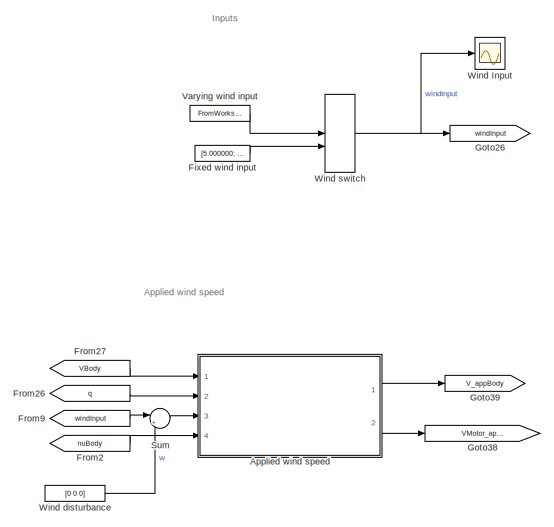
[diagram: root canvas - part 1/10, top center region]
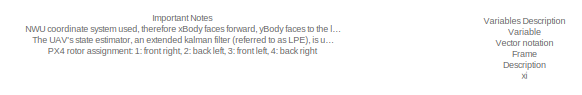
[diagram: root canvas - part 2/10, top right region]
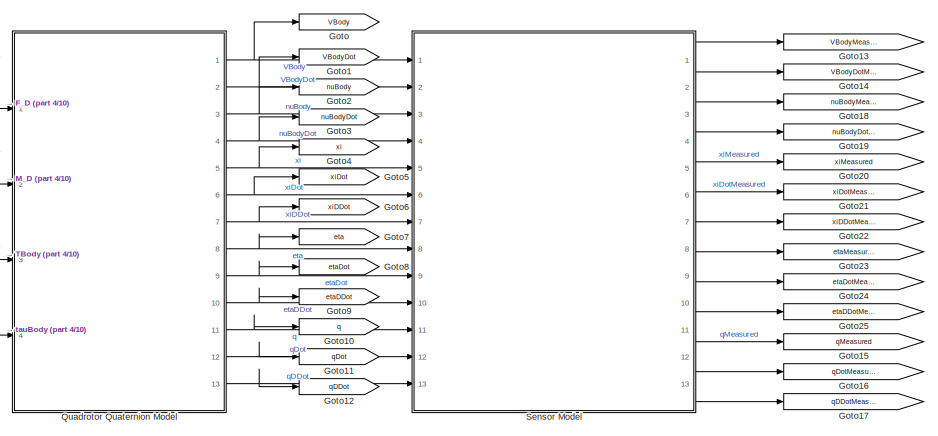
[diagram: root canvas - part 3/10, top right region]
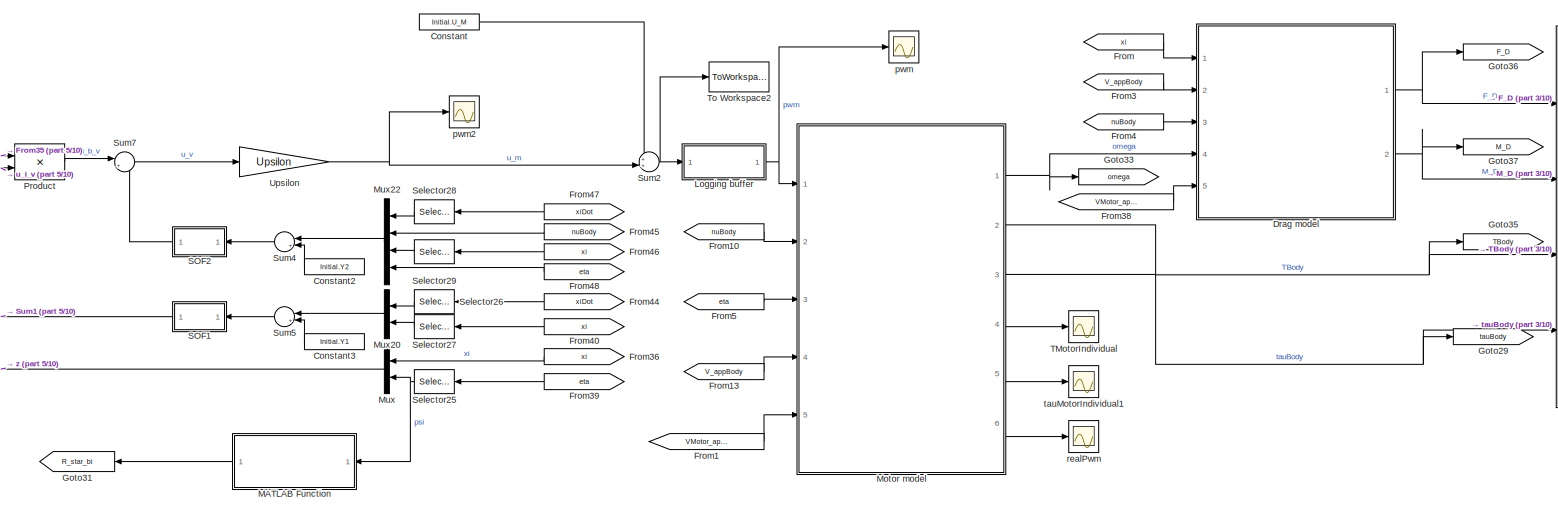
[diagram: root canvas - part 4/10, top center region]
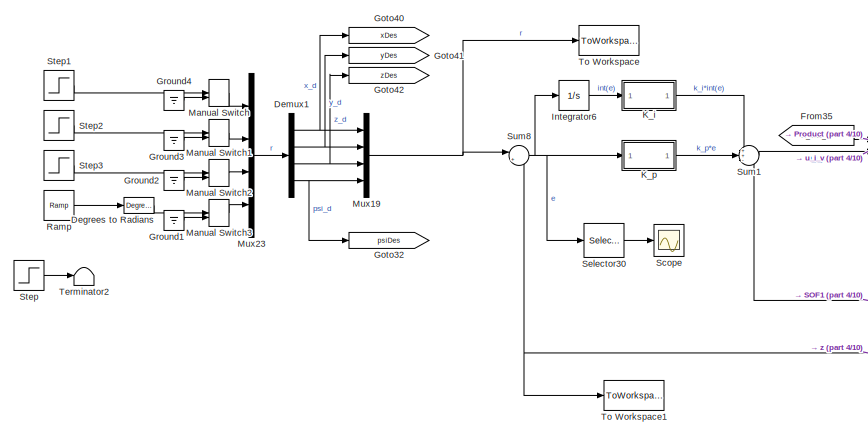
[diagram: root canvas - part 5/10, top center region]
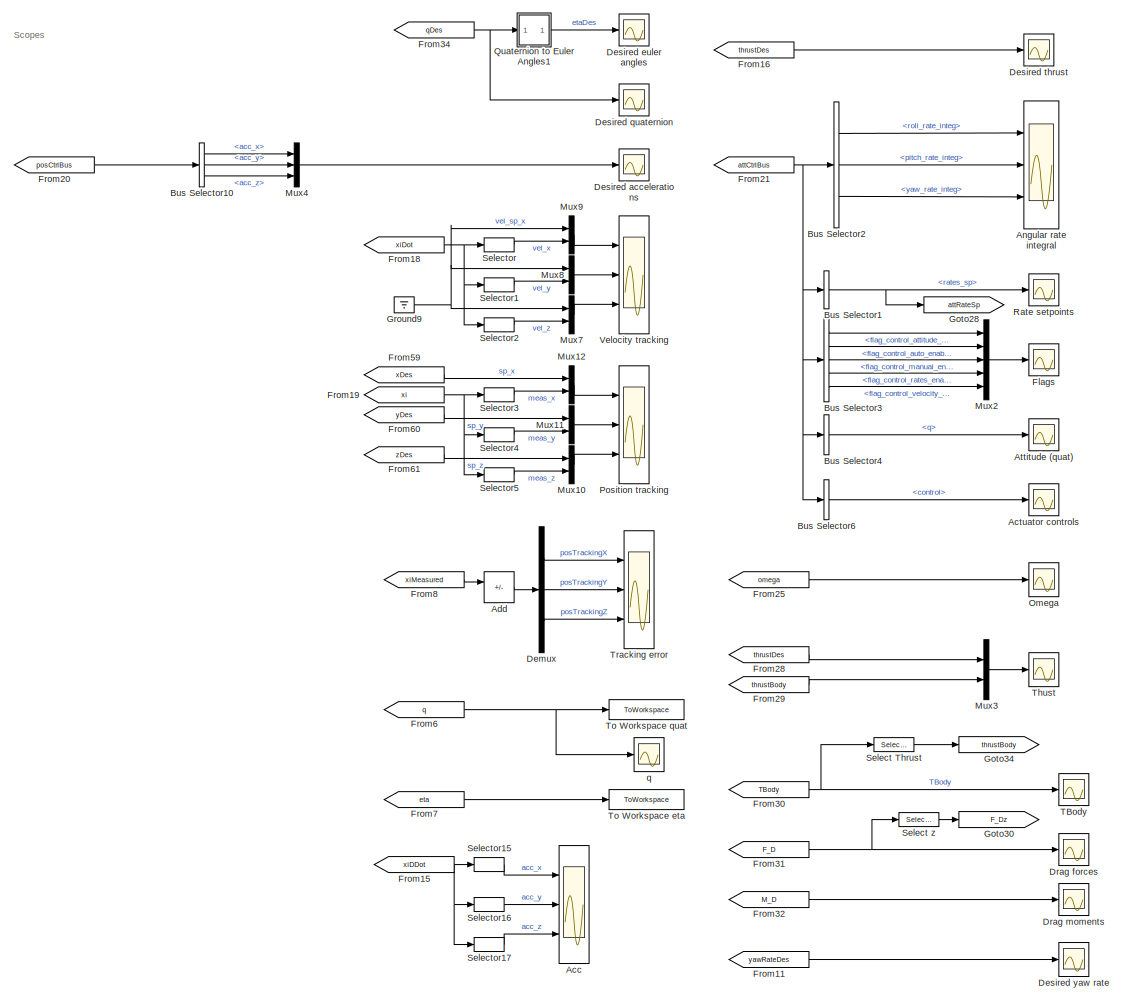
[diagram: root canvas - part 6/10, central region]
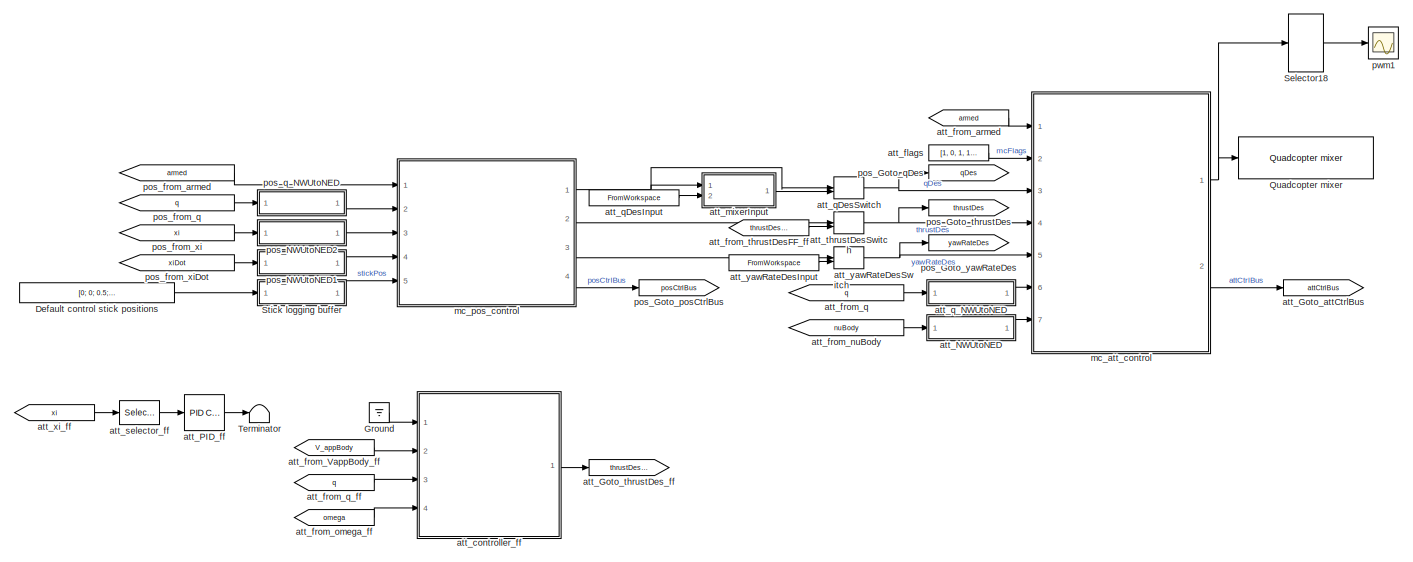
[diagram: root canvas - part 7/10, middle left region]
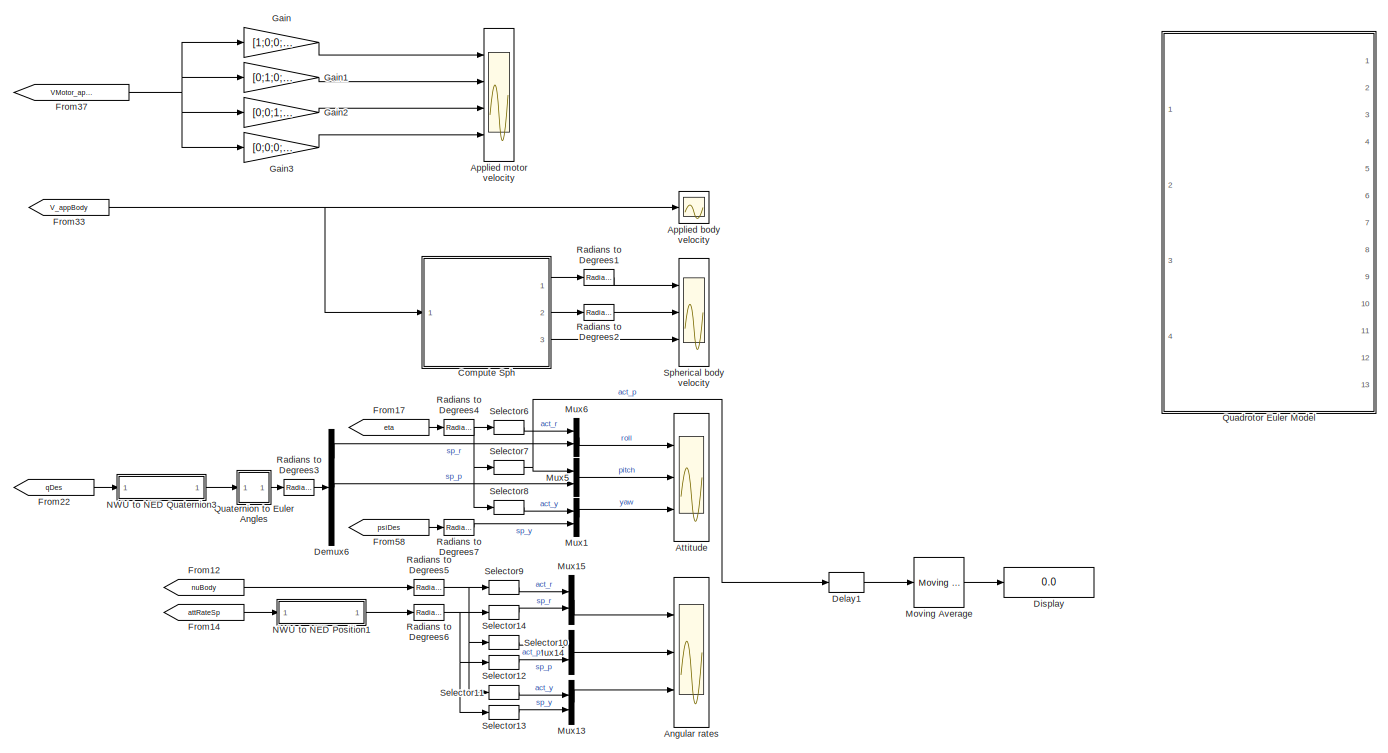
[diagram: root canvas - part 8/10, middle right region]
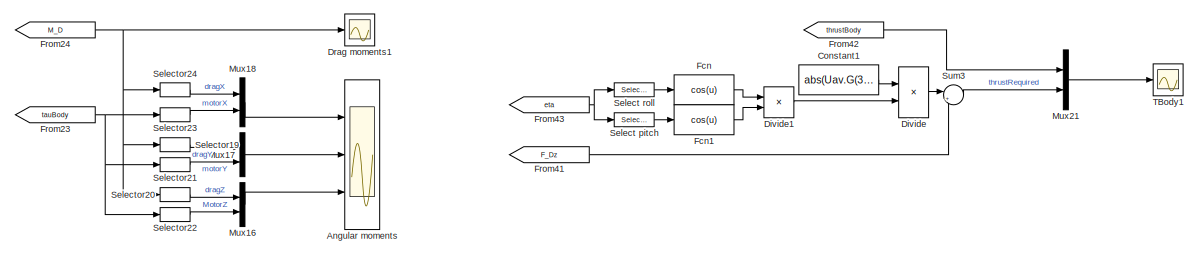
[diagram: root canvas - part 9/10, middle right region]
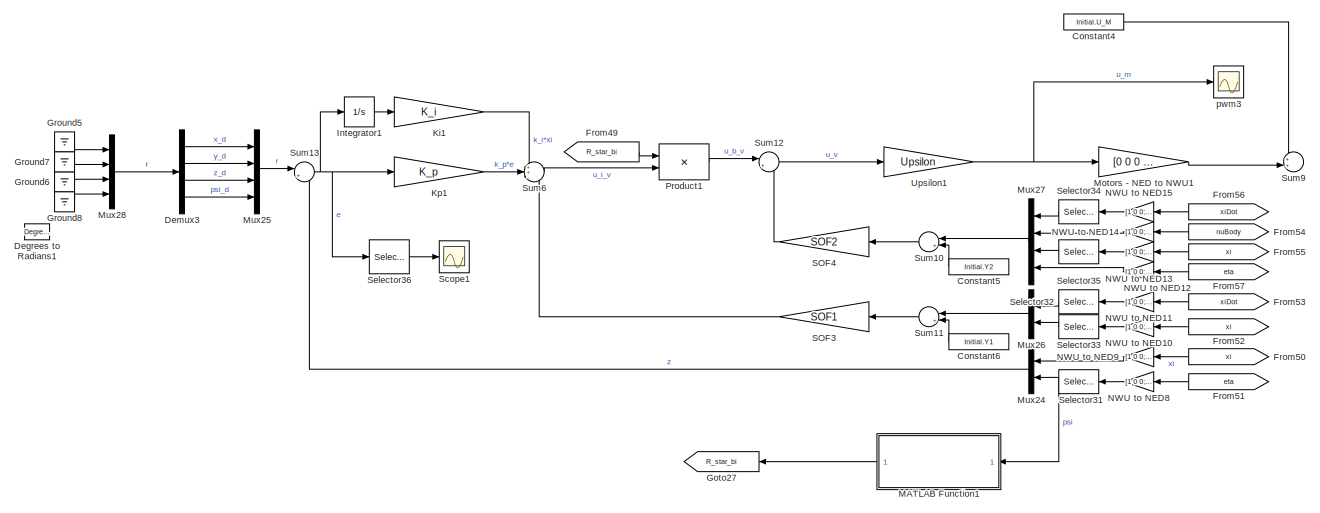
[diagram: root canvas - part 10/10, bottom right region]
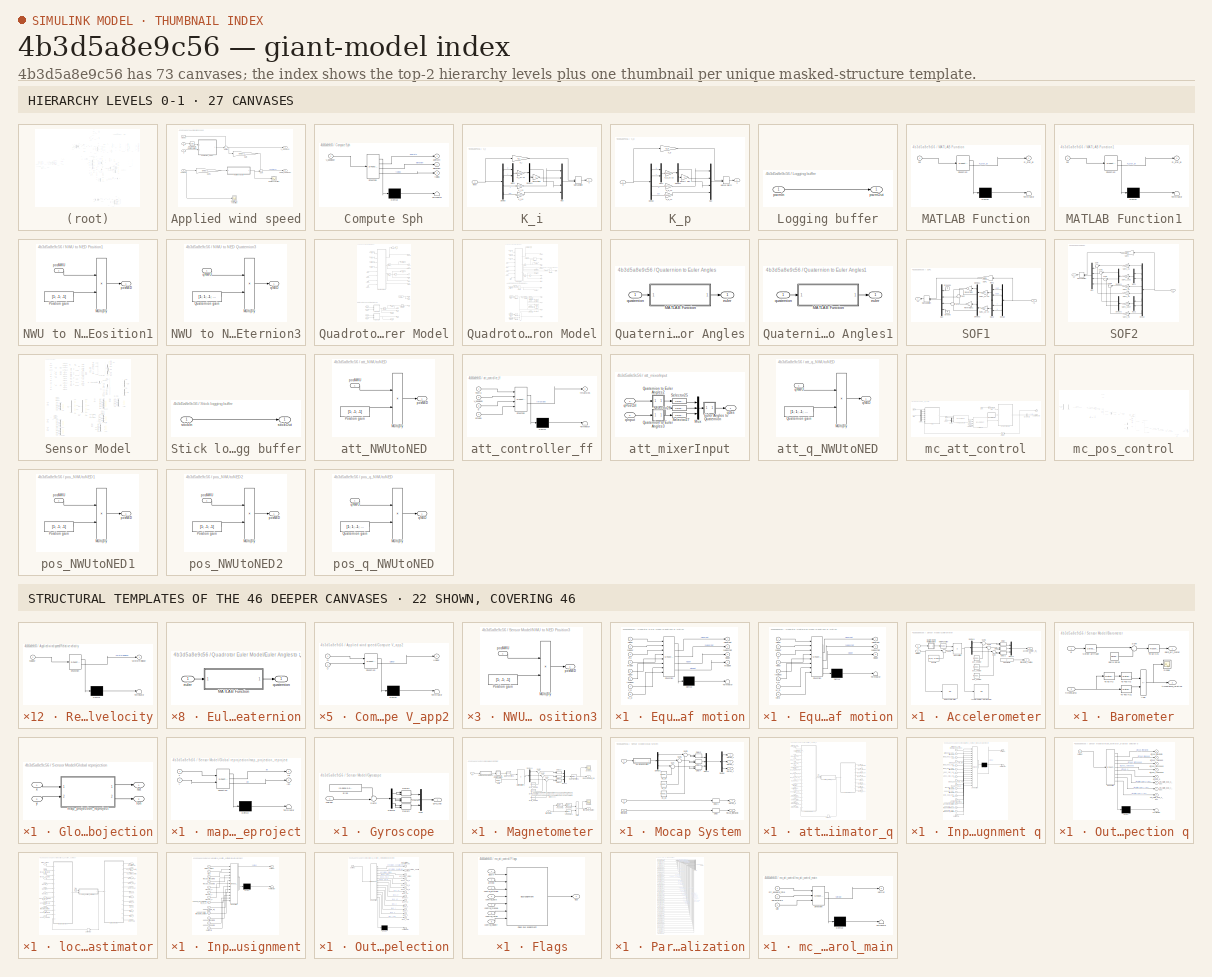
[diagram: thumbnail index - top-2 hierarchy levels (27 canvases) + 22 structural-template representatives of the remaining 46 canvases]
MODEL slx_4b3d5a8e9c56
KIND model
CONFIG AbsTol = auto
CONFIG EnableMultiTasking = on
CONFIG FixedStep = auto
CONFIG MaxStep = Simulation.TS_MAX
CONFIG MinStep = auto
CONFIG PreLoadFcn = % InitializeParameters;
CONFIG RelTol = 1e-3
CONFIG SampleTimeConstraint = Unconstrained
CONFIG SolverName = VariableStepAuto
CONFIG StartTime = 0.0
CONFIG StopTime = Simulation.T_END
BLOCK [Scope] Acc
  Floating = off
  NumInputPorts = 3
  Ports = [3]
  ScopeSpecificationString = Simulink.scopes.TimeScopeBlockCfg('CurrentConfiguration', extmgr.ConfigurationSet(extmgr.Configuration('Core','General UI',true),extmgr.Configuration('Core','Source UI',true),extmgr.Configuration('Sources','WiredSimulink',true,'DataLoggingVariableName','ScopeData1'),extmgr.Configuration('Visuals','Time Domain',true,'SerializedDisplays',{struct('MinYLimReal','-0.0000000000000018','MaxYLimReal','0.0...<+2816ch>
BLOCK [Scope] Actuator controls
  Commented = on
  Floating = off
  NumInputPorts = 1
  Ports = [1]
  ScopeSpecificationString = Simulink.scopes.TimeScopeBlockCfg('CurrentConfiguration', extmgr.ConfigurationSet(extmgr.Configuration('Core','General UI',true),extmgr.Configuration('Core','Source UI',true),extmgr.Configuration('Sources','WiredSimulink',true,'DataLoggingVariableName','ScopeData6'),extmgr.Configuration('Visuals','Time Domain',true,'SerializedDisplays',{struct('MinYLimReal','-0.13253','MaxYLimReal','0.63562','YLab...<+2024ch>
BLOCK [Sum] Add
  Commented = on
  IconShape = rectangular
  Inputs = +-
  Ports = [2, 1]
BLOCK [Scope] Angular moments
  Floating = off
  NumInputPorts = 3
  Ports = [3]
  ScopeSpecificationString = Simulink.scopes.TimeScopeBlockCfg('CurrentConfiguration', extmgr.ConfigurationSet(extmgr.Configuration('Core','General UI',true),extmgr.Configuration('Core','Source UI',true),extmgr.Configuration('Sources','WiredSimulink',true,'DataLoggingVariableName','ScopeData2'),extmgr.Configuration('Visuals','Time Domain',true,'SerializedDisplays',{struct('MinYLimReal','-0.0000007','MaxYLimReal','0.0000011','...<+2847ch>
BLOCK [Scope] Angular rate integral
  Commented = on
  Floating = off
  NumInputPorts = 3
  Ports = [3]
  ScopeSpecificationString = Simulink.scopes.TimeScopeBlockCfg('CurrentConfiguration', extmgr.ConfigurationSet(extmgr.Configuration('Core','General UI',true),extmgr.Configuration('Core','Source UI',true),extmgr.Configuration('Sources','WiredSimulink',true,'DataLoggingVariableName','ScopeData1'),extmgr.Configuration('Visuals','Time Domain',true,'SerializedDisplays',{struct('MinYLimReal','-0.00715','MaxYLimReal','0.00085','YLab...<+2834ch>
BLOCK [Scope] Angular rates
  Floating = off
  NumInputPorts = 3
  Ports = [3]
  ScopeSpecificationString = Simulink.scopes.TimeScopeBlockCfg('CurrentConfiguration', extmgr.ConfigurationSet(extmgr.Configuration('Core','General UI',true),extmgr.Configuration('Core','Source UI',true),extmgr.Configuration('Sources','WiredSimulink',true,'DataLoggingVariableName','ScopeData1'),extmgr.Configuration('Visuals','Time Domain',true,'SerializedDisplays',{struct('MinYLimReal','-1.8499','MaxYLimReal','1.74919','YLabe...<+2824ch>
BLOCK [Scope] Applied body velocity
  Floating = off
  NumInputPorts = 1
  Ports = [1]
  ScopeSpecificationString = Simulink.scopes.TimeScopeBlockCfg('CurrentConfiguration', extmgr.ConfigurationSet(extmgr.Configuration('Core','General UI',true),extmgr.Configuration('Core','Source UI',true),extmgr.Configuration('Sources','WiredSimulink',true,'DataLoggingVariableName','ScopeData5'),extmgr.Configuration('Visuals','Time Domain',true,'SerializedDisplays',{struct('MinYLimReal','-8.3551','MaxYLimReal','9.40235','YLabe...<+1561ch>
BLOCK [Scope] Applied motor velocity
  Commented = on
  Floating = off
  NumInputPorts = 4
  Ports = [4]
  ScopeSpecificationString = Simulink.scopes.TimeScopeBlockCfg('CurrentConfiguration', extmgr.ConfigurationSet(extmgr.Configuration('Core','General UI',true),extmgr.Configuration('Core','Source UI',true),extmgr.Configuration('Sources','WiredSimulink',true,'DataLoggingVariableName','ScopeData6'),extmgr.Configuration('Visuals','Time Domain',true,'SerializedDisplays',{struct('MinYLimReal','-6.29066','MaxYLimReal','3.22329','YLab...<+3531ch>
BLOCK [SubSystem] Applied wind speed
  Ports = [4, 2]
  RequestExecContextInheritance = off
BLOCK [SubSystem] Applied wind speed/Compute V_app2
  ErrorFcn = Stateflow.Translate.translate
  PermitHierarchicalResolution = ExplicitOnly
  Ports = [2, 1]
  RequestExecContextInheritance = off
  SFBlockType = MATLAB Function
  TreatAsAtomicUnit = on
BLOCK [Demux] Applied wind speed/Compute V_app2/ Demux 
  Outputs = 1
  Ports = [1, 1]
BLOCK [S-Function] Applied wind speed/Compute V_app2/ SFunction 
  EnableBusSupport = on
  FunctionName = sf_sfun
  PortCounts = [2 2]
  Ports = [2, 2]
  SFcnIsStateOwnerBlock = off
  SFunctionDeploymentMode = off
  Tag = Stateflow S-Function 5
BLOCK [Terminator] Applied wind speed/Compute V_app2/ Terminator 
BLOCK [Inport] Applied wind speed/Compute V_app2/Q
BLOCK [Inport] Applied wind speed/Compute V_app2/U
  Port = 2
BLOCK [Outport] Applied wind speed/Compute V_app2/UBody
  VectorParamsAs1DForOutWhenUnconnected = off
BLOCK [Gain] Applied wind speed/Gain
  Gain = ones(1,Uav.N_ROTORS)
  Multiplication = Matrix(u*K)
BLOCK [Gain] Applied wind speed/Gain1
  Gain = ones(1,Uav.N_ROTORS)
  Multiplication = Matrix(u*K)
BLOCK [Reference] Applied wind speed/Quaternion to Rotation Matrix1  REF=QuaternionLibrary/Quaternion
to Rotation Matrix
  Ports = [1, 1]
  SourceBlock = QuaternionLibrary/Quaternion\nto Rotation Matrix
BLOCK [Scope] Applied wind speed/Relative velocities
  Floating = off
  NumInputPorts = 1
  Ports = [1]
  ScopeSpecificationString = Simulink.scopes.TimeScopeBlockCfg('CurrentConfiguration', extmgr.ConfigurationSet(extmgr.Configuration('Core','General UI',true),extmgr.Configuration('Core','Source UI',true),extmgr.Configuration('Sources','WiredSimulink',true,'DataLoggingVariableName','ScopeData7'),extmgr.Configuration('Visuals','Time Domain',true,'SerializedDisplays',{struct('MinYLimReal','-0.14774','MaxYLimReal','0.13459','YLab...<+1695ch>
BLOCK [SubSystem] Applied wind speed/Relative velocity
  ErrorFcn = Stateflow.Translate.translate
  PermitHierarchicalResolution = ExplicitOnly
  Ports = [1, 1]
  RequestExecContextInheritance = off
  SFBlockType = MATLAB Function
  TreatAsAtomicUnit = on
BLOCK [Demux] Applied wind speed/Relative velocity/ Demux 
  Outputs = 1
  Ports = [1, 1]
BLOCK [S-Function] Applied wind speed/Relative velocity/ SFunction 
  EnableBusSupport = on
  FunctionName = sf_sfun
  Parameters = Uav
  PortCounts = [1 2]
  Ports = [1, 2]
  SFcnIsStateOwnerBlock = off
  SFunctionDeploymentMode = off
  Tag = Stateflow S-Function 4
BLOCK [Terminator] Applied wind speed/Relative velocity/ Terminator 
BLOCK [Outport] Applied wind speed/Relative velocity/VMotorRelBody
  VectorParamsAs1DForOutWhenUnconnected = off
BLOCK [Inport] Applied wind speed/Relative velocity/nuBody
BLOCK [Scope] Applied wind speed/Rotational velocities
  Floating = off
  NumInputPorts = 1
  Ports = [1]
  ScopeSpecificationString = Simulink.scopes.TimeScopeBlockCfg('CurrentConfiguration', extmgr.ConfigurationSet(extmgr.Configuration('Core','General UI',true),extmgr.Configuration('Core','Source UI',true),extmgr.Configuration('Sources','WiredSimulink',true,'DataLoggingVariableName','ScopeData8'),extmgr.Configuration('Visuals','Time Domain',true,'SerializedDisplays',{struct('MinYLimReal','-0.88414','MaxYLimReal','0.81415','YLab...<+1467ch>
BLOCK [Sum] Applied wind speed/Sum
  Inputs = ++|
  Ports = [2, 1]
BLOCK [Sum] Applied wind speed/Sum1
  Inputs = ++|
  Ports = [2, 1]
BLOCK [Inport] Applied wind speed/U
  Port = 3
  Unit = m/s
BLOCK [Inport] Applied wind speed/VBody
  Unit = m/s
BLOCK [Outport] Applied wind speed/VMotor_appBody
  Port = 2
  PortDimensions = [3,Uav.N_ROTORS]
  Unit = m/s
  VectorParamsAs1DForOutWhenUnconnected = off
BLOCK [Outport] Applied wind speed/V_appBody
  Unit = m/s
  VectorParamsAs1DForOutWhenUnconnected = off
BLOCK [Inport] Applied wind speed/nuBody
  Port = 4
  Unit = rad/s
BLOCK [Inport] Applied wind speed/q
  Port = 2
BLOCK [Scope] Attitude
  Floating = off
  NumInputPorts = 3
  Ports = [3]
  ScopeSpecificationString = Simulink.scopes.TimeScopeBlockCfg('CurrentConfiguration', extmgr.ConfigurationSet(extmgr.Configuration('Core','General UI',true),extmgr.Configuration('Core','Source UI',true),extmgr.Configuration('Sources','WiredSimulink',true,'DataLoggingVariableName','ScopeData1'),extmgr.Configuration('Visuals','Time Domain',true,'SerializedDisplays',{struct('MinYLimReal','-14.80059','MaxYLimReal','7.68885','YLa...<+2912ch>
BLOCK [Scope] Attitude (quat)
  Commented = on
  Floating = off
  NumInputPorts = 1
  Ports = [1]
  ScopeSpecificationString = Simulink.scopes.TimeScopeBlockCfg('CurrentConfiguration', extmgr.ConfigurationSet(extmgr.Configuration('Core','General UI',true),extmgr.Configuration('Core','Source UI',true),extmgr.Configuration('Sources','WiredSimulink',true,'DataLoggingVariableName','ScopeData4'),extmgr.Configuration('Visuals','Time Domain',true,'SerializedDisplays',{struct('MinYLimReal','-0.20708','MaxYLimReal','1.13412','YLab...<+1940ch>
BLOCK [BusSelector] Bus Selector1
  Commented = on
  OutputSignals = rates_sp
  Ports = [1, 1]
BLOCK [BusSelector] Bus Selector10
  Commented = on
  OutputSignals = mpc_local_pos_sp.acc_x,mpc_local_pos_sp.acc_y,mpc_local_pos_sp.acc_z
  Ports = [1, 3]
BLOCK [BusSelector] Bus Selector2
  Commented = on
  OutputSignals = controller_status.roll_rate_integ,controller_status.pitch_rate_integ,controller_status.yaw_rate_integ
  Ports = [1, 3]
BLOCK [BusSelector] Bus Selector3
  Commented = on
  OutputSignals = v_control_mode.flag_control_attitude_enabled,v_control_mode.flag_control_auto_enabled,v_control_mode.flag_control_manual_enabled,v_control_mode.flag_control_rates_enabled,v_control_mode.flag_control_velocity_enabled
  Ports = [1, 5]
BLOCK [BusSelector] Bus Selector4
  Commented = on
  OutputSignals = ctrl_state.q
  Ports = [1, 1]
BLOCK [BusSelector] Bus Selector6
  Commented = on
  OutputSignals = actuators.control
  Ports = [1, 1]
BLOCK [SubSystem] Compute Sph
  ErrorFcn = Stateflow.Translate.translate
  PermitHierarchicalResolution = ExplicitOnly
  Ports = [1, 3]
  RequestExecContextInheritance = off
  SFBlockType = MATLAB Function
  TreatAsAtomicUnit = on
BLOCK [Demux] Compute Sph/ Demux 
  Outputs = 1
  Ports = [1, 1]
BLOCK [S-Function] Compute Sph/ SFunction 
  EnableBusSupport = on
  FunctionName = sf_sfun
  PortCounts = [1 4]
  Ports = [1, 4]
  SFcnIsStateOwnerBlock = off
  SFunctionDeploymentMode = off
  Tag = Stateflow S-Function 2
BLOCK [Terminator] Compute Sph/ Terminator 
BLOCK [Inport] Compute Sph/V_appBody
BLOCK [Outport] Compute Sph/azimuth
  VectorParamsAs1DForOutWhenUnconnected = off
BLOCK [Outport] Compute Sph/elevation
  Port = 2
  VectorParamsAs1DForOutWhenUnconnected = off
BLOCK [Outport] Compute Sph/radius
  Port = 3
  VectorParamsAs1DForOutWhenUnconnected = off
BLOCK [Constant] Constant
  Value = Initial.U_M
BLOCK [Constant] Constant1
  Value = abs(Uav.G(3))
BLOCK [Constant] Constant2
  Value = Initial.Y2
BLOCK [Constant] Constant3
  Value = Initial.Y1
BLOCK [Constant] Constant4
  Commented = on
  Value = Initial.U_M
BLOCK [Constant] Constant5
  Commented = on
  Value = Initial.Y2
BLOCK [Constant] Constant6
  Commented = on
  Value = Initial.Y1
BLOCK [Constant] Default control stick positions
  Commented = on
  Value = [0; 0; 0.5; 0]
BLOCK [Reference] Degrees to Radians  REF=simulink_extras/Transformations/Degrees to
Radians
  Ports = [1, 1]
  SourceBlock = simulink_extras/Transformations/Degrees to\nRadians
  SourceProductBaseCode = SL
  SourceType = DegreesToRadians
BLOCK [Reference] Degrees to Radians1  REF=simulink_extras/Transformations/Degrees to
Radians
  Commented = on
  Ports = [1, 1]
  SourceBlock = simulink_extras/Transformations/Degrees to\nRadians
  SourceProductBaseCode = SL
  SourceType = DegreesToRadians
BLOCK [Delay] Delay1
  Commented = on
  DelayLength = 1
  InputPortMap = u0
  Ports = [1, 1]
  SampleTime = 1/10
BLOCK [Demux] Demux
  Commented = on
  Outputs = 3
  Ports = [1, 3]
BLOCK [Demux] Demux1
  Ports = [1, 4]
BLOCK [Demux] Demux3
  Commented = on
  Ports = [1, 4]
BLOCK [Demux] Demux6
  Commented = on
  Outputs = 3
  Ports = [1, 3]
BLOCK [Scope] Desired accelerations
  Floating = off
  NumInputPorts = 1
  Ports = [1]
  ScopeSpecificationString = Simulink.scopes.TimeScopeBlockCfg('CurrentConfiguration', extmgr.ConfigurationSet(extmgr.Configuration('Core','General UI',true),extmgr.Configuration('Core','Source UI',true),extmgr.Configuration('Sources','WiredSimulink',true,'DataLoggingVariableName','ScopeData1'),extmgr.Configuration('Visuals','Time Domain',true,'SerializedDisplays',{struct('MinYLimReal','-10.69713','MaxYLimReal','8.01479','YLa...<+1941ch>
BLOCK [Scope] Desired euler angles
  Commented = on
  Floating = off
  NumInputPorts = 1
  Ports = [1]
  ScopeSpecificationString = Simulink.scopes.TimeScopeBlockCfg('CurrentConfiguration', extmgr.ConfigurationSet(extmgr.Configuration('Core','General UI',true),extmgr.Configuration('Core','Source UI',true),extmgr.Configuration('Sources','WiredSimulink',true,'DataLoggingVariableName','ScopeData1','DataLoggingLimitDataPoints',true,'DataLoggingSaveFormat','Array','DataLoggingDecimation','1','DataLoggingDecimateData',true),extmgr.C...<+1539ch>
BLOCK [Scope] Desired quaternion
  Commented = on
  Floating = off
  NumInputPorts = 1
  Ports = [1]
  ScopeSpecificationString = Simulink.scopes.TimeScopeBlockCfg('CurrentConfiguration', extmgr.ConfigurationSet(extmgr.Configuration('Core','General UI',true),extmgr.Configuration('Core','Source UI',true),extmgr.Configuration('Sources','WiredSimulink',true,'DataLoggingVariableName','ScopeData2','DataLoggingLimitDataPoints',true,'DataLoggingSaveFormat','Array','DataLoggingDecimation','1','DataLoggingDecimateData',true),extmgr.C...<+1550ch>
BLOCK [Scope] Desired thrust
  Commented = on
  Floating = off
  NumInputPorts = 1
  Ports = [1]
  ScopeSpecificationString = Simulink.scopes.TimeScopeBlockCfg('CurrentConfiguration', extmgr.ConfigurationSet(extmgr.Configuration('Core','General UI',true),extmgr.Configuration('Core','Source UI',true),extmgr.Configuration('Sources','WiredSimulink',true,'DataLoggingVariableName','ScopeData3'),extmgr.Configuration('Visuals','Time Domain',true,'SerializedDisplays',{struct('MinYLimReal','0.54302','MaxYLimReal','0.6893','YLabel...<+1438ch>
BLOCK [Scope] Desired yaw rate
  Floating = off
  NumInputPorts = 1
  Ports = [1]
  ScopeSpecificationString = Simulink.scopes.TimeScopeBlockCfg('CurrentConfiguration', extmgr.ConfigurationSet(extmgr.Configuration('Core','General UI',true),extmgr.Configuration('Core','Source UI',true),extmgr.Configuration('Sources','WiredSimulink',true,'DataLoggingVariableName','ScopeData1'),extmgr.Configuration('Visuals','Time Domain',true,'SerializedDisplays',{struct('MinYLimReal','-1.00000','MaxYLimReal','1.00000','YLab...<+1442ch>
BLOCK [Display] Display
  Commented = on
  Decimation = 1
  Ports = [1]
BLOCK [Product] Divide
  Inputs = */
  Ports = [2, 1]
BLOCK [Product] Divide1
  Inputs = **
  Ports = [2, 1]
BLOCK [Scope] Drag forces
  Floating = off
  NumInputPorts = 1
  Ports = [1]
  ScopeSpecificationString = Simulink.scopes.TimeScopeBlockCfg('CurrentConfiguration', extmgr.ConfigurationSet(extmgr.Configuration('Core','General UI',true),extmgr.Configuration('Core','Source UI',true),extmgr.Configuration('Sources','WiredSimulink',true,'DataLoggingVariableName','ScopeData2'),extmgr.Configuration('Visuals','Time Domain',true,'SerializedDisplays',{struct('MinYLimReal','-0.08396','MaxYLimReal','0.01856','YLab...<+1466ch>
BLOCK [ModelReference] Drag model
  ModelNameDialog = DragModelAIAAv3
  ModelReferenceVersion = 5.2
  Ports = [5, 2]
BLOCK [Scope] Drag moments
  Floating = off
  NumInputPorts = 1
  Ports = [1]
  ScopeSpecificationString = Simulink.scopes.TimeScopeBlockCfg('CurrentConfiguration', extmgr.ConfigurationSet(extmgr.Configuration('Core','General UI',true),extmgr.Configuration('Core','Source UI',true),extmgr.Configuration('Sources','WiredSimulink',true,'DataLoggingVariableName','ScopeData4'),extmgr.Configuration('Visuals','Time Domain',true,'SerializedDisplays',{struct('MinYLimReal','-0.01429','MaxYLimReal','0.01409','YLab...<+1458ch>
BLOCK [Scope] Drag moments1
  Floating = off
  NumInputPorts = 1
  Ports = [1]
  ScopeSpecificationString = Simulink.scopes.TimeScopeBlockCfg('CurrentConfiguration', extmgr.ConfigurationSet(extmgr.Configuration('Core','General UI',true),extmgr.Configuration('Core','Source UI',true),extmgr.Configuration('Sources','WiredSimulink',true,'DataLoggingVariableName','ScopeData1'),extmgr.Configuration('Visuals','Time Domain',true,'SerializedDisplays',{struct('MinYLimReal','-0.06563','MaxYLimReal','0.20895','YLab...<+1459ch>
BLOCK [Fcn] Fcn
  Expr = cos(u)
BLOCK [Fcn] Fcn1
  Expr = cos(u)
BLOCK [Constant] Fixed wind input
  Value = [5.000000; 0.000000; 0]
BLOCK [Scope] Flags
  Commented = on
  Floating = off
  NumInputPorts = 1
  Ports = [1]
  ScopeSpecificationString = Simulink.scopes.TimeScopeBlockCfg('CurrentConfiguration', extmgr.ConfigurationSet(extmgr.Configuration('Core','General UI',true),extmgr.Configuration('Core','Source UI',true),extmgr.Configuration('Sources','WiredSimulink',true,'DataLoggingVariableName','ScopeData3'),extmgr.Configuration('Visuals','Time Domain',true,'SerializedDisplays',{struct('MinYLimReal','-0.125','MaxYLimReal','1.125','YLabelRe...<+2059ch>
BLOCK [From] From
  GotoTag = xi
BLOCK [From] From1
  GotoTag = VMotor_appBody
BLOCK [From] From10
  GotoTag = nuBody
BLOCK [From] From11
  GotoTag = yawRateDes
BLOCK [From] From12
  GotoTag = nuBody
BLOCK [From] From13
  GotoTag = V_appBody
BLOCK [From] From14
  Commented = on
  GotoTag = attRateSp
BLOCK [From] From15
  GotoTag = xiDDot
BLOCK [From] From16
  Commented = on
  GotoTag = thrustDes
BLOCK [From] From17
  GotoTag = eta
BLOCK [From] From18
  GotoTag = xiDot
BLOCK [From] From19
  GotoTag = xi
BLOCK [From] From2
  GotoTag = nuBody
BLOCK [From] From20
  Commented = on
  GotoTag = posCtrlBus
BLOCK [From] From21
  Commented = on
  GotoTag = attCtrlBus
BLOCK [From] From22
  Commented = on
  GotoTag = qDes
BLOCK [From] From23
  GotoTag = tauBody
BLOCK [From] From24
  GotoTag = M_D
BLOCK [From] From25
  GotoTag = omega
BLOCK [From] From26
  GotoTag = q
BLOCK [From] From27
  GotoTag = VBody
BLOCK [From] From28
  GotoTag = thrustDes
BLOCK [From] From29
  GotoTag = thrustBody
BLOCK [From] From3
  GotoTag = V_appBody
BLOCK [From] From30
  GotoTag = TBody
BLOCK [From] From31
  GotoTag = F_D
BLOCK [From] From32
  GotoTag = M_D
BLOCK [From] From33
  GotoTag = V_appBody
BLOCK [From] From34
  Commented = on
  GotoTag = qDes
BLOCK [From] From35
  GotoTag = R_star_bi
BLOCK [From] From36
  GotoTag = xi
BLOCK [From] From37
  Commented = on
  GotoTag = VMotor_appBody
BLOCK [From] From38
  GotoTag = VMotor_appBody
BLOCK [From] From39
  GotoTag = eta
BLOCK [From] From4
  GotoTag = nuBody
BLOCK [From] From40
  GotoTag = xi
BLOCK [From] From41
  GotoTag = F_Dz
BLOCK [From] From42
  GotoTag = thrustBody
BLOCK [From] From43
  GotoTag = eta
BLOCK [From] From44
  GotoTag = xiDot
BLOCK [From] From45
  GotoTag = nuBody
BLOCK [From] From46
  GotoTag = xi
BLOCK [From] From47
  GotoTag = xiDot
BLOCK [From] From48
  GotoTag = eta
BLOCK [From] From49
  Commented = on
  GotoTag = R_star_bi
BLOCK [From] From5
  GotoTag = eta
BLOCK [From] From50
  Commented = on
  GotoTag = xi
BLOCK [From] From51
  Commented = on
  GotoTag = eta
BLOCK [From] From52
  Commented = on
  GotoTag = xi
BLOCK [From] From53
  Commented = on
  GotoTag = xiDot
BLOCK [From] From54
  Commented = on
  GotoTag = nuBody
BLOCK [From] From55
  Commented = on
  GotoTag = xi
BLOCK [From] From56
  Commented = on
  GotoTag = xiDot
BLOCK [From] From57
  Commented = on
  GotoTag = eta
BLOCK [From] From58
  GotoTag = psiDes
BLOCK [From] From59
  GotoTag = xDes
BLOCK [From] From6
  GotoTag = q
BLOCK [From] From60
  GotoTag = yDes
BLOCK [From] From61
  GotoTag = zDes
BLOCK [From] From7
  Commented = on
  GotoTag = eta
BLOCK [From] From8
  Commented = on
  GotoTag = xiMeasured
BLOCK [From] From9
  GotoTag = windInput
BLOCK [Gain] Gain
  Commented = on
  Gain = [1;0;0;0]
  Multiplication = Matrix(u*K)
BLOCK [Gain] Gain1
  Commented = on
  Gain = [0;1;0;0]
  Multiplication = Matrix(u*K)
BLOCK [Gain] Gain2
  Commented = on
  Gain = [0;0;1;0]
  Multiplication = Matrix(u*K)
BLOCK [Gain] Gain3
  Commented = on
  Gain = [0;0;0;1]
  Multiplication = Matrix(u*K)
BLOCK [Goto] Goto
  GotoTag = VBody
BLOCK [Goto] Goto1
  GotoTag = VBodyDot
BLOCK [Goto] Goto10
  GotoTag = q
BLOCK [Goto] Goto11
  GotoTag = qDot
BLOCK [Goto] Goto12
  GotoTag = qDDot
BLOCK [Goto] Goto13
  Commented = on
  GotoTag = VBodyMeasured
BLOCK [Goto] Goto14
  Commented = on
  GotoTag = VBodyDotMeasured
BLOCK [Goto] Goto15
  Commented = on
  GotoTag = qMeasured
BLOCK [Goto] Goto16
  Commented = on
  GotoTag = qDotMeasured
BLOCK [Goto] Goto17
  Commented = on
  GotoTag = qDDotMeasured
BLOCK [Goto] Goto18
  Commented = on
  GotoTag = nuBodyMeasured
BLOCK [Goto] Goto19
  Commented = on
  GotoTag = nuBodyDotMeasured
BLOCK [Goto] Goto2
  GotoTag = nuBody
BLOCK [Goto] Goto20
  Commented = on
  GotoTag = xiMeasured
BLOCK [Goto] Goto21
  Commented = on
  GotoTag = xiDotMeasured
BLOCK [Goto] Goto22
  Commented = on
  GotoTag = xiDDotMeasured
BLOCK [Goto] Goto23
  Commented = on
  GotoTag = etaMeasured
BLOCK [Goto] Goto24
  Commented = on
  GotoTag = etaDotMeasured
BLOCK [Goto] Goto25
  Commented = on
  GotoTag = etaDDotMeasured
BLOCK [Goto] Goto26
  GotoTag = windInput
BLOCK [Goto] Goto27
  Commented = on
  GotoTag = R_star_bi
BLOCK [Goto] Goto28
  Commented = on
  GotoTag = attRateSp
BLOCK [Goto] Goto29
  GotoTag = tauBody
BLOCK [Goto] Goto3
  GotoTag = nuBodyDot
BLOCK [Goto] Goto30
  GotoTag = F_Dz
BLOCK [Goto] Goto31
  GotoTag = R_star_bi
BLOCK [Goto] Goto32
  GotoTag = psiDes
BLOCK [Goto] Goto33
  GotoTag = omega
BLOCK [Goto] Goto34
  GotoTag = thrustBody
BLOCK [Goto] Goto35
  GotoTag = TBody
BLOCK [Goto] Goto36
  GotoTag = F_D
BLOCK [Goto] Goto37
  GotoTag = M_D
BLOCK [Goto] Goto38
  GotoTag = VMotor_appBody
BLOCK [Goto] Goto39
  GotoTag = V_appBody
BLOCK [Goto] Goto4
  GotoTag = xi
BLOCK [Goto] Goto40
  GotoTag = xDes
BLOCK [Goto] Goto41
  GotoTag = yDes
BLOCK [Goto] Goto42
  GotoTag = zDes
BLOCK [Goto] Goto5
  GotoTag = xiDot
BLOCK [Goto] Goto6
  GotoTag = xiDDot
BLOCK [Goto] Goto7
  GotoTag = eta
BLOCK [Goto] Goto8
  GotoTag = etaDot
BLOCK [Goto] Goto9
  GotoTag = etaDDot
BLOCK [Ground] Ground
  Commented = on
BLOCK [Ground] Ground1
BLOCK [Ground] Ground2
BLOCK [Ground] Ground3
BLOCK [Ground] Ground4
BLOCK [Ground] Ground5
  Commented = on
BLOCK [Ground] Ground6
  Commented = on
BLOCK [Ground] Ground7
  Commented = on
BLOCK [Ground] Ground8
  Commented = on
BLOCK [Ground] Ground9
BLOCK [Integrator] Integrator1
  Commented = on
  Ports = [1, 1]
BLOCK [Integrator] Integrator6
  Ports = [1, 1]
BLOCK [SubSystem] K_i
  Ports = [1, 1]
  RequestExecContextInheritance = off
BLOCK [Demux] K_i/Demux
  Ports = [1, 4]
BLOCK [Demux] K_i/Demux1
  Outputs = 2
  Ports = [1, 2]
BLOCK [Gain] K_i/K_i
  Gain = K_i
  Multiplication = Matrix(K*u)
BLOCK [Gain] K_i/K_i_13
  Gain = 3.67146379600028
BLOCK [Gain] K_i/K_i_31-22
  Gain = -1.50330201504916
BLOCK [Gain] K_i/K_i_44
  Gain = 6.55197651405933
BLOCK [ManualSwitch] K_i/Manual Switch
  CurrentSetting = 0
BLOCK [Mux] K_i/Mux
  DisplayOption = bar
  Ports = [4, 1]
BLOCK [Mux] K_i/Mux1
  DisplayOption = bar
  Inputs = 2
  Ports = [2, 1]
BLOCK [Gain] K_i/Revert sign
  Gain = -1
BLOCK [Inport] K_i/int(e)
BLOCK [Outport] K_i/u
  VectorParamsAs1DForOutWhenUnconnected = off
BLOCK [SubSystem] K_p
  Ports = [1, 1]
  RequestExecContextInheritance = off
BLOCK [Demux] K_p/Demux
  Ports = [1, 4]
BLOCK [Demux] K_p/Demux1
  Outputs = 2
  Ports = [1, 2]
BLOCK [Gain] K_p/K_p
  Gain = K_p
  Multiplication = Matrix(K*u)
BLOCK [Gain] K_p/K_p_13
  Gain = 1.52717472910293
BLOCK [Gain] K_p/K_p_31-22
  Gain = -0.500949072013311
BLOCK [Gain] K_p/K_p_44
  Gain = 1.18954454305298
BLOCK [ManualSwitch] K_p/Manual Switch
  CurrentSetting = 0
BLOCK [Mux] K_p/Mux
  DisplayOption = bar
  Ports = [4, 1]
BLOCK [Mux] K_p/Mux1
  DisplayOption = bar
  Inputs = 2
  Ports = [2, 1]
BLOCK [Gain] K_p/Revert sign
  Gain = -1
BLOCK [Inport] K_p/e
BLOCK [Outport] K_p/u
  VectorParamsAs1DForOutWhenUnconnected = off
BLOCK [Gain] Ki1
  Commented = on
  Gain = K_i
  Multiplication = Matrix(K*u)
BLOCK [Gain] Kp1
  Commented = on
  Gain = K_p
  Multiplication = Matrix(K*u)
BLOCK [SubSystem] Logging buffer
  Ports = [1, 1]
  RequestExecContextInheritance = off
BLOCK [Inport] Logging buffer/pwmIn
BLOCK [Outport] Logging buffer/pwmOut
  VectorParamsAs1DForOutWhenUnconnected = off
BLOCK [SubSystem] MATLAB Function
  ErrorFcn = Stateflow.Translate.translate
  PermitHierarchicalResolution = ExplicitOnly
  Ports = [1, 1]
  RequestExecContextInheritance = off
  SFBlockType = MATLAB Function
  TreatAsAtomicUnit = on
BLOCK [Demux] MATLAB Function/ Demux 
  Outputs = 1
  Ports = [1, 1]
BLOCK [S-Function] MATLAB Function/ SFunction 
  EnableBusSupport = on
  FunctionName = sf_sfun
  PortCounts = [1 2]
  Ports = [1, 2]
  SFcnIsStateOwnerBlock = off
  SFunctionDeploymentMode = off
  Tag = Stateflow S-Function 6
BLOCK [Terminator] MATLAB Function/ Terminator 
BLOCK [Outport] MATLAB Function/R_star_bi
  VectorParamsAs1DForOutWhenUnconnected = off
BLOCK [Inport] MATLAB Function/psi
BLOCK [SubSystem] MATLAB Function1
  Commented = on
  ErrorFcn = Stateflow.Translate.translate
  PermitHierarchicalResolution = ExplicitOnly
  Ports = [1, 1]
  RequestExecContextInheritance = off
  SFBlockType = MATLAB Function
  TreatAsAtomicUnit = on
BLOCK [Demux] MATLAB Function1/ Demux 
  Outputs = 1
  Ports = [1, 1]
BLOCK [S-Function] MATLAB Function1/ SFunction 
  EnableBusSupport = on
  FunctionName = sf_sfun
  PortCounts = [1 2]
  Ports = [1, 2]
  SFcnIsStateOwnerBlock = off
  SFunctionDeploymentMode = off
  Tag = Stateflow S-Function 8
BLOCK [Terminator] MATLAB Function1/ Terminator 
BLOCK [Outport] MATLAB Function1/R_star_bi
  VectorParamsAs1DForOutWhenUnconnected = off
BLOCK [Inport] MATLAB Function1/psi
BLOCK [ManualSwitch] Manual Switch
BLOCK [ManualSwitch] Manual Switch1
BLOCK [ManualSwitch] Manual Switch2
BLOCK [ManualSwitch] Manual Switch3
BLOCK [ModelReference] Motor model
  ModelNameDialog = MotorModelAIAAv3
  ModelReferenceVersion = 5.2
  Ports = [5, 6]
BLOCK [Gain] Motors - NED to NWU1
  Commented = on
  Gain = [0 0 0 1; 0 0 1 0; 0 1 0 0; 1 0 0 0]
  Multiplication = Matrix(K*u)
BLOCK [Reference] Moving Average  REF=dspstat3/Moving
Average
  Commented = on
  Ports = [1, 1]
  SourceBlock = dspstat3/Moving\nAverage
  SourceProductBaseCode = DS
  SourceType = dsp.simulink.MovingAverage
BLOCK [Mux] Mux
  DisplayOption = bar
  Inputs = 2
  Ports = [2, 1]
BLOCK [Mux] Mux1
  DisplayOption = bar
  Inputs = 2
  Ports = [2, 1]
BLOCK [Mux] Mux10
  DisplayOption = bar
  Inputs = 2
  Ports = [2, 1]
BLOCK [Mux] Mux11
  DisplayOption = bar
  Inputs = 2
  Ports = [2, 1]
BLOCK [Mux] Mux12
  DisplayOption = bar
  Inputs = 2
  Ports = [2, 1]
BLOCK [Mux] Mux13
  DisplayOption = bar
  Inputs = 2
  Ports = [2, 1]
BLOCK [Mux] Mux14
  DisplayOption = bar
  Inputs = 2
  Ports = [2, 1]
BLOCK [Mux] Mux15
  DisplayOption = bar
  Inputs = 2
  Ports = [2, 1]
BLOCK [Mux] Mux16
  DisplayOption = bar
  Inputs = 2
  Ports = [2, 1]
BLOCK [Mux] Mux17
  DisplayOption = bar
  Inputs = 2
  Ports = [2, 1]
BLOCK [Mux] Mux18
  DisplayOption = bar
  Inputs = 2
  Ports = [2, 1]
BLOCK [Mux] Mux19
  DisplayOption = bar
  Ports = [4, 1]
BLOCK [Mux] Mux2
  Commented = on
  DisplayOption = bar
  Inputs = 5
  Ports = [5, 1]
BLOCK [Mux] Mux20
  DisplayOption = bar
  Inputs = 2
  Ports = [2, 1]
BLOCK [Mux] Mux21
  DisplayOption = bar
  Inputs = 2
  Ports = [2, 1]
BLOCK [Mux] Mux22
  DisplayOption = bar
  Ports = [4, 1]
BLOCK [Mux] Mux23
  DisplayOption = bar
  Ports = [4, 1]
BLOCK [Mux] Mux24
  Commented = on
  DisplayOption = bar
  Inputs = 2
  Ports = [2, 1]
BLOCK [Mux] Mux25
  Commented = on
  DisplayOption = bar
  Ports = [4, 1]
BLOCK [Mux] Mux26
  Commented = on
  DisplayOption = bar
  Inputs = 2
  Ports = [2, 1]
BLOCK [Mux] Mux27
  Commented = on
  DisplayOption = bar
  Ports = [4, 1]
BLOCK [Mux] Mux28
  Commented = on
  DisplayOption = bar
  Ports = [4, 1]
BLOCK [Mux] Mux3
  DisplayOption = bar
  Inputs = 2
  Ports = [2, 1]
BLOCK [Mux] Mux4
  Commented = on
  DisplayOption = bar
  Inputs = 3
  Ports = [3, 1]
BLOCK [Mux] Mux5
  DisplayOption = bar
  Inputs = 2
  Ports = [2, 1]
BLOCK [Mux] Mux6
  DisplayOption = bar
  Inputs = 2
  Ports = [2, 1]
BLOCK [Mux] Mux7
  DisplayOption = bar
  Inputs = 2
  Ports = [2, 1]
BLOCK [Mux] Mux8
  DisplayOption = bar
  Inputs = 2
  Ports = [2, 1]
BLOCK [Mux] Mux9
  DisplayOption = bar
  Inputs = 2
  Ports = [2, 1]
BLOCK [SubSystem] NWU to NED Position1
  AncestorBlock = Px4Library/NWU to NED\nPosition
  Commented = on
  Ports = [1, 1]
  RequestExecContextInheritance = off
BLOCK [Product] NWU to NED Position1/Multiply
  Inputs = **
  Ports = [2, 1]
BLOCK [Constant] NWU to NED Position1/Position gain
  Value = [1; -1; -1]
BLOCK [Outport] NWU to NED Position1/posNED
  VectorParamsAs1DForOutWhenUnconnected = off
BLOCK [Inport] NWU to NED Position1/posNWU
BLOCK [SubSystem] NWU to NED Quaternion3
  AncestorBlock = Px4Library/NWU to NED\nQuaternion
  Commented = on
  Ports = [1, 1]
  RequestExecContextInheritance = off
BLOCK [Product] NWU to NED Quaternion3/Multiply
  Inputs = **
  Ports = [2, 1]
BLOCK [Constant] NWU to NED Quaternion3/Quaternion gain
  Value = [1; 1; -1; -1]
BLOCK [Outport] NWU to NED Quaternion3/qNED
  VectorParamsAs1DForOutWhenUnconnected = off
BLOCK [Inport] NWU to NED Quaternion3/qNWU
BLOCK [Gain] NWU to NED10
  Commented = on
  Gain = [1 0 0; 0 -1 0; 0 0 -1]
  Multiplication = Matrix(K*u)
BLOCK [Gain] NWU to NED11
  Commented = on
  Gain = [1 0 0; 0 -1 0; 0 0 -1]
  Multiplication = Matrix(K*u)
BLOCK [Gain] NWU to NED12
  Commented = on
  Gain = [1 0 0; 0 -1 0; 0 0 -1]
  Multiplication = Matrix(K*u)
BLOCK [Gain] NWU to NED13
  Commented = on
  Gain = [1 0 0; 0 -1 0; 0 0 -1]
  Multiplication = Matrix(K*u)
BLOCK [Gain] NWU to NED14
  Commented = on
  Gain = [1 0 0; 0 -1 0; 0 0 -1]
  Multiplication = Matrix(K*u)
BLOCK [Gain] NWU to NED15
  Commented = on
  Gain = [1 0 0; 0 -1 0; 0 0 -1]
  Multiplication = Matrix(K*u)
BLOCK [Gain] NWU to NED8
  Commented = on
  Gain = [1 0 0; 0 -1 0; 0 0 -1]
  Multiplication = Matrix(K*u)
BLOCK [Gain] NWU to NED9
  Commented = on
  Gain = [1 0 0; 0 -1 0; 0 0 -1]
  Multiplication = Matrix(K*u)
BLOCK [Scope] Omega
  Floating = off
  NumInputPorts = 1
  Ports = [1]
  ScopeSpecificationString = Simulink.scopes.TimeScopeBlockCfg('CurrentConfiguration', extmgr.ConfigurationSet(extmgr.Configuration('Core','General UI',true),extmgr.Configuration('Core','Source UI',true),extmgr.Configuration('Sources','WiredSimulink',true,'DataLoggingVariableName','ScopeData3'),extmgr.Configuration('Visuals','Time Domain',true,'SerializedDisplays',{struct('MinYLimReal','514.41269','MaxYLimReal','577.40895','Y...<+1493ch>
BLOCK [Scope] Position tracking
  Floating = off
  NumInputPorts = 3
  Ports = [3]
  ScopeSpecificationString = Simulink.scopes.TimeScopeBlockCfg('CurrentConfiguration', extmgr.ConfigurationSet(extmgr.Configuration('Core','General UI',true),extmgr.Configuration('Core','Source UI',true),extmgr.Configuration('Sources','WiredSimulink',true,'DataLoggingVariableName','ScopeData4'),extmgr.Configuration('Visuals','Time Domain',true,'SerializedDisplays',{struct('MinYLimReal','-0.20252','MaxYLimReal','1.16583','YLab...<+2789ch>
BLOCK [Product] Product
  Multiplication = Matrix(*)
  Ports = [2, 1]
BLOCK [Product] Product1
  Commented = on
  Multiplication = Matrix(*)
  Ports = [2, 1]
BLOCK [Reference] Quadcopter mixer  REF=Px4Library/Quadcopter mixer
  Commented = on
  Ports = [1, 1]
  SourceBlock = Px4Library/Quadcopter mixer
BLOCK [SubSystem] Quadrotor Euler Model
  Commented = on
  Ports = [4, 13]
  RequestExecContextInheritance = off
BLOCK [SubSystem] Quadrotor Euler Model/Compute etaDot
  ErrorFcn = Stateflow.Translate.translate
  PermitHierarchicalResolution = ExplicitOnly
  Ports = [2, 1]
  RequestExecContextInheritance = off
  SFBlockType = MATLAB Function
  TreatAsAtomicUnit = on
BLOCK [Demux] Quadrotor Euler Model/Compute etaDot/ Demux 
  Outputs = 1
  Ports = [1, 1]
BLOCK [S-Function] Quadrotor Euler Model/Compute etaDot/ SFunction 
  EnableBusSupport = on
  FunctionName = sf_sfun
  PortCounts = [2 2]
  Ports = [2, 2]
  SFcnIsStateOwnerBlock = off
  SFunctionDeploymentMode = off
  Tag = Stateflow S-Function 12
BLOCK [Terminator] Quadrotor Euler Model/Compute etaDot/ Terminator 
BLOCK [Inport] Quadrotor Euler Model/Compute etaDot/eta
  Port = 2
BLOCK [Outport] Quadrotor Euler Model/Compute etaDot/etaDot
  VectorParamsAs1DForOutWhenUnconnected = off
BLOCK [Inport] Quadrotor Euler Model/Compute etaDot/nuBody
BLOCK [Constant] Quadrotor Euler Model/Constant
  Value = [0,0,0,0]'
BLOCK [SubSystem] Quadrotor Euler Model/Equations of motion
  ErrorFcn = Stateflow.Translate.translate
  PermitHierarchicalResolution = ExplicitOnly
  Ports = [8, 4]
  RequestExecContextInheritance = off
  SFBlockType = MATLAB Function
  TreatAsAtomicUnit = on
BLOCK [Demux] Quadrotor Euler Model/Equations of motion/ Demux 
  Outputs = 1
  Ports = [1, 1]
BLOCK [S-Function] Quadrotor Euler Model/Equations of motion/ SFunction 
  EnableBusSupport = on
  FunctionName = sf_sfun
  Parameters = Uav
  PortCounts = [8 5]
  Ports = [8, 5]
  SFcnIsStateOwnerBlock = off
  SFunctionDeploymentMode = off
  Tag = Stateflow S-Function 7
BLOCK [Terminator] Quadrotor Euler Model/Equations of motion/ Terminator 
BLOCK [Inport] Quadrotor Euler Model/Equations of motion/F_D
  Port = 7
BLOCK [Inport] Quadrotor Euler Model/Equations of motion/M_D
  Port = 8
BLOCK [Inport] Quadrotor Euler Model/Equations of motion/TBody
  Port = 5
BLOCK [Inport] Quadrotor Euler Model/Equations of motion/VBody
BLOCK [Outport] Quadrotor Euler Model/Equations of motion/VBodyDot
  VectorParamsAs1DForOutWhenUnconnected = off
BLOCK [Inport] Quadrotor Euler Model/Equations of motion/eta
  Port = 3
BLOCK [Outport] Quadrotor Euler Model/Equations of motion/etaDDot
  Port = 4
  VectorParamsAs1DForOutWhenUnconnected = off
BLOCK [Inport] Quadrotor Euler Model/Equations of motion/etaDot
  Port = 4
BLOCK [Inport] Quadrotor Euler Model/Equations of motion/nuBody
  Port = 2
BLOCK [Outport] Quadrotor Euler Model/Equations of motion/nuBodyDot
  Port = 2
  VectorParamsAs1DForOutWhenUnconnected = off
BLOCK [Inport] Quadrotor Euler Model/Equations of motion/tauBody
  Port = 6
BLOCK [Outport] Quadrotor Euler Model/Equations of motion/xiDDot
  Port = 3
  VectorParamsAs1DForOutWhenUnconnected = off
BLOCK [SubSystem] Quadrotor Euler Model/Euler Angles to Quaternion
  AncestorBlock = QuaternionLibrary/Euler Angles\nto Quaternion
  Ports = [1, 1]
  RequestExecContextInheritance = off
BLOCK [SubSystem] Quadrotor Euler Model/Euler Angles to Quaternion/MATLAB Function
  ErrorFcn = Stateflow.Translate.translate
  PermitHierarchicalResolution = ExplicitOnly
  Ports = [1, 1]
  RequestExecContextInheritance = off
  SFBlockType = MATLAB Function
  TreatAsAtomicUnit = on
BLOCK [Demux] Quadrotor Euler Model/Euler Angles to Quaternion/MATLAB Function/ Demux 
  Outputs = 1
  Ports = [1, 1]
BLOCK [S-Function] Quadrotor Euler Model/Euler Angles to Quaternion/MATLAB Function/ SFunction 
  EnableBusSupport = on
  FunctionName = sf_sfun
  PortCounts = [1 2]
  Ports = [1, 2]
  SFcnIsStateOwnerBlock = off
  SFunctionDeploymentMode = off
  Tag = Stateflow S-Function 11
BLOCK [Terminator] Quadrotor Euler Model/Euler Angles to Quaternion/MATLAB Function/ Terminator 
BLOCK [Inport] Quadrotor Euler Model/Euler Angles to Quaternion/MATLAB Function/eulerAngles
BLOCK [Outport] Quadrotor Euler Model/Euler Angles to Quaternion/MATLAB Function/quat
  VectorParamsAs1DForOutWhenUnconnected = off
BLOCK [Inport] Quadrotor Euler Model/Euler Angles to Quaternion/euler
BLOCK [Outport] Quadrotor Euler Model/Euler Angles to Quaternion/quaternion
  VectorParamsAs1DForOutWhenUnconnected = off
BLOCK [Inport] Quadrotor Euler Model/F_DBody
  Unit = N
BLOCK [From] Quadrotor Euler Model/From
  GotoTag = VBody
BLOCK [From] Quadrotor Euler Model/From1
  GotoTag = nuBody
BLOCK [From] Quadrotor Euler Model/From13
  GotoTag = etaDot
BLOCK [From] Quadrotor Euler Model/From3
  GotoTag = eta
BLOCK [From] Quadrotor Euler Model/From4
  GotoTag = eta
BLOCK [From] Quadrotor Euler Model/From5
  GotoTag = eta
BLOCK [From] Quadrotor Euler Model/From6
  GotoTag = nuBody
BLOCK [From] Quadrotor Euler Model/From7
  GotoTag = xiDot
BLOCK [Goto] Quadrotor Euler Model/Goto
  GotoTag = VBody
BLOCK [Goto] Quadrotor Euler Model/Goto1
  GotoTag = nuBody
BLOCK [Goto] Quadrotor Euler Model/Goto2
  GotoTag = eta
BLOCK [Goto] Quadrotor Euler Model/Goto3
  GotoTag = etaDot
BLOCK [Goto] Quadrotor Euler Model/Goto4
  GotoTag = xiDot
BLOCK [Integrator] Quadrotor Euler Model/Integrator5
  ContinuousStateAttributes = 'eta'
  InitialCondition = Initial.ETA
  Ports = [1, 1]
BLOCK [Inport] Quadrotor Euler Model/M_DBody
  Port = 2
  Unit = N*m
BLOCK [Scope] Quadrotor Euler Model/Q
  Floating = off
  NumInputPorts = 1
  Ports = [1]
  ScopeSpecificationString = Simulink.scopes.TimeScopeBlockCfg('CurrentConfiguration', extmgr.ConfigurationSet(extmgr.Configuration('Core','General UI',true),extmgr.Configuration('Core','Source UI',true),extmgr.Configuration('Sources','WiredSimulink',true,'DataLoggingVariableName','ScopeData3','DataLoggingLimitDataPoints',true,'DataLoggingSaveFormat','Array','DataLoggingDecimation','1','DataLoggingDecimateData',true),extmgr.C...<+1517ch>
BLOCK [Reshape] Quadrotor Euler Model/Reshape
  OutputDimensionality = Column vector (2-D)
  Ports = [1, 1]
BLOCK [Inport] Quadrotor Euler Model/TBody
  Port = 3
  Unit = N
BLOCK [Outport] Quadrotor Euler Model/VBody
  Unit = m/s
  VectorParamsAs1DForOutWhenUnconnected = off
BLOCK [Outport] Quadrotor Euler Model/VBodyDot
  Port = 2
  Unit = m/s^2
  VectorParamsAs1DForOutWhenUnconnected = off
BLOCK [SubSystem] Quadrotor Euler Model/compute VBody
  ErrorFcn = Stateflow.Translate.translate
  PermitHierarchicalResolution = ExplicitOnly
  Ports = [2, 1]
  RequestExecContextInheritance = off
  SFBlockType = MATLAB Function
  TreatAsAtomicUnit = on
BLOCK [Demux] Quadrotor Euler Model/compute VBody/ Demux 
  Outputs = 1
  Ports = [1, 1]
BLOCK [S-Function] Quadrotor Euler Model/compute VBody/ SFunction 
  EnableBusSupport = on
  FunctionName = sf_sfun
  PortCounts = [2 2]
  Ports = [2, 2]
  SFcnIsStateOwnerBlock = off
  SFunctionDeploymentMode = off
  Tag = Stateflow S-Function 14
BLOCK [Terminator] Quadrotor Euler Model/compute VBody/ Terminator 
BLOCK [Outport] Quadrotor Euler Model/compute VBody/VBody
  VectorParamsAs1DForOutWhenUnconnected = off
BLOCK [Inport] Quadrotor Euler Model/compute VBody/eta
BLOCK [Inport] Quadrotor Euler Model/compute VBody/xiDot
  Port = 2
BLOCK [Outport] Quadrotor Euler Model/eta
  Port = 8
  Unit = rad
  VectorParamsAs1DForOutWhenUnconnected = off
BLOCK [Outport] Quadrotor Euler Model/etaDDot
  Port = 10
  Unit = rad/s^2
  VectorParamsAs1DForOutWhenUnconnected = off
BLOCK [Outport] Quadrotor Euler Model/etaDot
  Port = 9
  Unit = rad/s
  VectorParamsAs1DForOutWhenUnconnected = off
BLOCK [Outport] Quadrotor Euler Model/nuBody
  Port = 3
  Unit = rad/s
  VectorParamsAs1DForOutWhenUnconnected = off
BLOCK [Outport] Quadrotor Euler Model/nuBodyDot
  Port = 4
  Unit = rad/s^2
  VectorParamsAs1DForOutWhenUnconnected = off
BLOCK [Integrator] Quadrotor Euler Model/nuBody_
  ContinuousStateAttributes = 'nuBody'
  InitialCondition = Initial.NU_BODY
  Ports = [1, 1]
BLOCK [Outport] Quadrotor Euler Model/q
  Port = 11
  VectorParamsAs1DForOutWhenUnconnected = off
BLOCK [Outport] Quadrotor Euler Model/qDDot
  Port = 13
  VectorParamsAs1DForOutWhenUnconnected = off
BLOCK [Outport] Quadrotor Euler Model/qDot
  Port = 12
  VectorParamsAs1DForOutWhenUnconnected = off
BLOCK [Inport] Quadrotor Euler Model/tauBody
  Port = 4
  Unit = N*m
BLOCK [Outport] Quadrotor Euler Model/xi
  Port = 5
  Unit = m
  VectorParamsAs1DForOutWhenUnconnected = off
BLOCK [Outport] Quadrotor Euler Model/xiDDot
  Port = 7
  Unit = m/s^2
  VectorParamsAs1DForOutWhenUnconnected = off
BLOCK [Outport] Quadrotor Euler Model/xiDot
  Port = 6
  Unit = m/s
  VectorParamsAs1DForOutWhenUnconnected = off
BLOCK [Integrator] Quadrotor Euler Model/xiDot_
  ContinuousStateAttributes = 'xiDot'
  InitialCondition = Initial.XI_DOT
  Ports = [1, 1]
BLOCK [Integrator] Quadrotor Euler Model/xi_
  ContinuousStateAttributes = 'xi'
  InitialCondition = Initial.XI
  Ports = [1, 1]
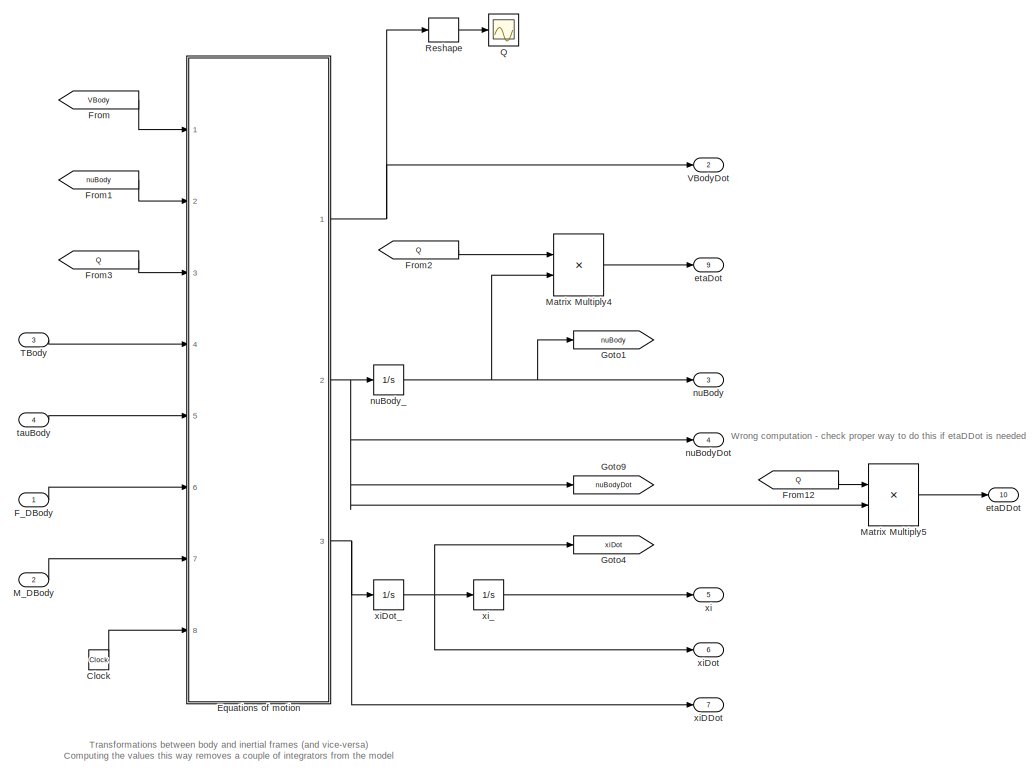
[diagram: Quadrotor Quaternion Model - part 1/2, full width, top band]
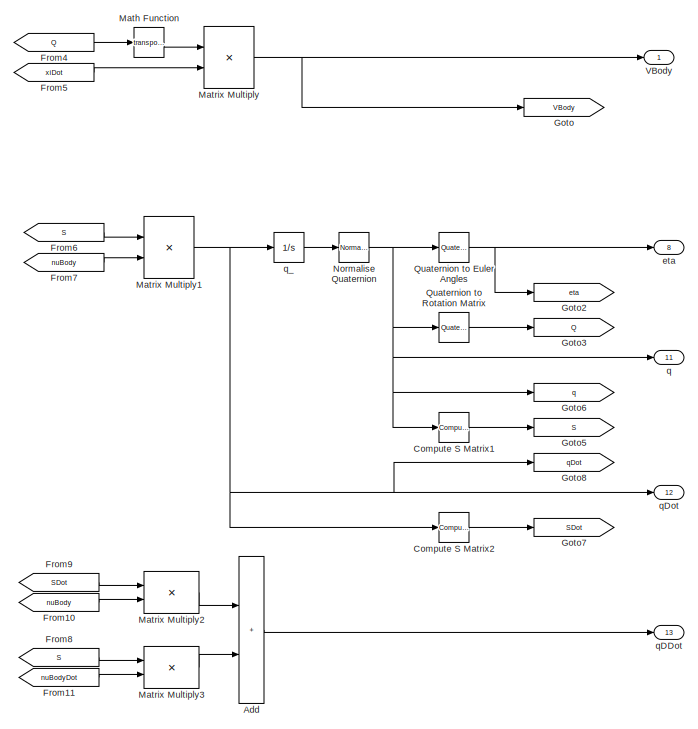
[diagram: Quadrotor Quaternion Model - part 2/2, bottom center region]
BLOCK [SubSystem] Quadrotor Quaternion Model
  Ports = [4, 13]
  RequestExecContextInheritance = off
BLOCK [Sum] Quadrotor Quaternion Model/Add
  IconShape = rectangular
  Ports = [2, 1]
BLOCK [Clock] Quadrotor Quaternion Model/Clock
BLOCK [Reference] Quadrotor Quaternion Model/Compute S Matrix1  REF=QuaternionLibrary/Compute
S Matrix
  Ports = [1, 1]
  SourceBlock = QuaternionLibrary/Compute\nS Matrix
BLOCK [Reference] Quadrotor Quaternion Model/Compute S Matrix2  REF=QuaternionLibrary/Compute
S Matrix
  Ports = [1, 1]
  SourceBlock = QuaternionLibrary/Compute\nS Matrix
BLOCK [SubSystem] Quadrotor Quaternion Model/Equations of motion
  ErrorFcn = Stateflow.Translate.translate
  PermitHierarchicalResolution = ExplicitOnly
  Ports = [8, 3]
  RequestExecContextInheritance = off
  SFBlockType = MATLAB Function
  TreatAsAtomicUnit = on
BLOCK [Demux] Quadrotor Quaternion Model/Equations of motion/ Demux 
  Outputs = 1
  Ports = [1, 1]
BLOCK [S-Function] Quadrotor Quaternion Model/Equations of motion/ SFunction 
  EnableBusSupport = on
  FunctionName = sf_sfun
  Parameters = Simulation,Uav
  PortCounts = [8 4]
  Ports = [8, 4]
  SFcnIsStateOwnerBlock = off
  SFunctionDeploymentMode = off
  Tag = Stateflow S-Function 1
BLOCK [Terminator] Quadrotor Quaternion Model/Equations of motion/ Terminator 
BLOCK [Inport] Quadrotor Quaternion Model/Equations of motion/F_D
  Port = 6
BLOCK [Inport] Quadrotor Quaternion Model/Equations of motion/M_D
  Port = 7
BLOCK [Inport] Quadrotor Quaternion Model/Equations of motion/Q
  Port = 3
BLOCK [Inport] Quadrotor Quaternion Model/Equations of motion/TBody
  Port = 4
BLOCK [Inport] Quadrotor Quaternion Model/Equations of motion/VBody
BLOCK [Outport] Quadrotor Quaternion Model/Equations of motion/VBodyDot
  VectorParamsAs1DForOutWhenUnconnected = off
BLOCK [Inport] Quadrotor Quaternion Model/Equations of motion/nuBody
  Port = 2
BLOCK [Outport] Quadrotor Quaternion Model/Equations of motion/nuBodyDot
  Port = 2
  VectorParamsAs1DForOutWhenUnconnected = off
BLOCK [Inport] Quadrotor Quaternion Model/Equations of motion/tauBody
  Port = 5
BLOCK [Inport] Quadrotor Quaternion Model/Equations of motion/time
  Port = 8
BLOCK [Outport] Quadrotor Quaternion Model/Equations of motion/xiDDot
  Port = 3
  VectorParamsAs1DForOutWhenUnconnected = off
BLOCK [Inport] Quadrotor Quaternion Model/F_DBody
  Unit = N
BLOCK [From] Quadrotor Quaternion Model/From
  GotoTag = VBody
BLOCK [From] Quadrotor Quaternion Model/From1
  GotoTag = nuBody
BLOCK [From] Quadrotor Quaternion Model/From10
  GotoTag = nuBody
BLOCK [From] Quadrotor Quaternion Model/From11
  GotoTag = nuBodyDot
BLOCK [From] Quadrotor Quaternion Model/From12
  GotoTag = Q
BLOCK [From] Quadrotor Quaternion Model/From2
  GotoTag = Q
BLOCK [From] Quadrotor Quaternion Model/From3
  GotoTag = Q
BLOCK [From] Quadrotor Quaternion Model/From4
  GotoTag = Q
BLOCK [From] Quadrotor Quaternion Model/From5
  GotoTag = xiDot
BLOCK [From] Quadrotor Quaternion Model/From6
  GotoTag = S
BLOCK [From] Quadrotor Quaternion Model/From7
  GotoTag = nuBody
BLOCK [From] Quadrotor Quaternion Model/From8
  GotoTag = S
BLOCK [From] Quadrotor Quaternion Model/From9
  GotoTag = SDot
BLOCK [Goto] Quadrotor Quaternion Model/Goto
  GotoTag = VBody
BLOCK [Goto] Quadrotor Quaternion Model/Goto1
  GotoTag = nuBody
BLOCK [Goto] Quadrotor Quaternion Model/Goto2
  GotoTag = eta
BLOCK [Goto] Quadrotor Quaternion Model/Goto3
  GotoTag = Q
BLOCK [Goto] Quadrotor Quaternion Model/Goto4
  GotoTag = xiDot
BLOCK [Goto] Quadrotor Quaternion Model/Goto5
  GotoTag = S
BLOCK [Goto] Quadrotor Quaternion Model/Goto6
  GotoTag = q
BLOCK [Goto] Quadrotor Quaternion Model/Goto7
  GotoTag = SDot
BLOCK [Goto] Quadrotor Quaternion Model/Goto8
  GotoTag = qDot
BLOCK [Goto] Quadrotor Quaternion Model/Goto9
  GotoTag = nuBodyDot
BLOCK [Inport] Quadrotor Quaternion Model/M_DBody
  Port = 2
  Unit = N*m
BLOCK [Math] Quadrotor Quaternion Model/Math Function
  Operator = transpose
  Ports = [1, 1]
  SignedPower = on
BLOCK [Product] Quadrotor Quaternion Model/Matrix Multiply
  Multiplication = Matrix(*)
  Ports = [2, 1]
BLOCK [Product] Quadrotor Quaternion Model/Matrix Multiply1
  Multiplication = Matrix(*)
  Ports = [2, 1]
BLOCK [Product] Quadrotor Quaternion Model/Matrix Multiply2
  Multiplication = Matrix(*)
  Ports = [2, 1]
BLOCK [Product] Quadrotor Quaternion Model/Matrix Multiply3
  Multiplication = Matrix(*)
  Ports = [2, 1]
BLOCK [Product] Quadrotor Quaternion Model/Matrix Multiply4
  Multiplication = Matrix(*)
  Ports = [2, 1]
BLOCK [Product] Quadrotor Quaternion Model/Matrix Multiply5
  Multiplication = Matrix(*)
  Ports = [2, 1]
BLOCK [Reference] Quadrotor Quaternion Model/Normalise Quaternion  REF=QuaternionLibrary/Normalise
Quaternion
  Ports = [1, 1]
  SourceBlock = QuaternionLibrary/Normalise\nQuaternion
BLOCK [Scope] Quadrotor Quaternion Model/Q
  Floating = off
  NumInputPorts = 1
  Ports = [1]
  ScopeSpecificationString = Simulink.scopes.TimeScopeBlockCfg('CurrentConfiguration', extmgr.ConfigurationSet(extmgr.Configuration('Core','General UI',true),extmgr.Configuration('Core','Source UI',true),extmgr.Configuration('Sources','WiredSimulink',true,'DataLoggingVariableName','ScopeData3','DataLoggingLimitDataPoints',true,'DataLoggingSaveFormat','Array','DataLoggingDecimation','1','DataLoggingDecimateData',true),extmgr.C...<+1517ch>
BLOCK [Reference] Quadrotor Quaternion Model/Quaternion to Euler Angles  REF=QuaternionLibrary/Quaternion
to Euler Angles
  Ports = [1, 1]
  SourceBlock = QuaternionLibrary/Quaternion\nto Euler Angles
BLOCK [Reference] Quadrotor Quaternion Model/Quaternion to Rotation Matrix  REF=QuaternionLibrary/Quaternion
to Rotation Matrix
  Ports = [1, 1]
  SourceBlock = QuaternionLibrary/Quaternion\nto Rotation Matrix
BLOCK [Reshape] Quadrotor Quaternion Model/Reshape
  OutputDimensionality = Column vector (2-D)
  Ports = [1, 1]
BLOCK [Inport] Quadrotor Quaternion Model/TBody
  Port = 3
  Unit = N
BLOCK [Outport] Quadrotor Quaternion Model/VBody
  Unit = m/s
  VectorParamsAs1DForOutWhenUnconnected = off
BLOCK [Outport] Quadrotor Quaternion Model/VBodyDot
  Port = 2
  Unit = m/s^2
  VectorParamsAs1DForOutWhenUnconnected = off
BLOCK [Outport] Quadrotor Quaternion Model/eta
  Port = 8
  Unit = rad
  VectorParamsAs1DForOutWhenUnconnected = off
BLOCK [Outport] Quadrotor Quaternion Model/etaDDot
  Port = 10
  Unit = rad/s^2
  VectorParamsAs1DForOutWhenUnconnected = off
BLOCK [Outport] Quadrotor Quaternion Model/etaDot
  Port = 9
  Unit = rad/s
  VectorParamsAs1DForOutWhenUnconnected = off
BLOCK [Outport] Quadrotor Quaternion Model/nuBody
  Port = 3
  Unit = rad/s
  VectorParamsAs1DForOutWhenUnconnected = off
BLOCK [Outport] Quadrotor Quaternion Model/nuBodyDot
  Port = 4
  Unit = rad/s^2
  VectorParamsAs1DForOutWhenUnconnected = off
BLOCK [Integrator] Quadrotor Quaternion Model/nuBody_
  InitialCondition = Initial.NU_BODY
  Ports = [1, 1]
BLOCK [Outport] Quadrotor Quaternion Model/q
  Port = 11
  VectorParamsAs1DForOutWhenUnconnected = off
BLOCK [Outport] Quadrotor Quaternion Model/qDDot
  Port = 13
  VectorParamsAs1DForOutWhenUnconnected = off
BLOCK [Outport] Quadrotor Quaternion Model/qDot
  Port = 12
  VectorParamsAs1DForOutWhenUnconnected = off
BLOCK [Integrator] Quadrotor Quaternion Model/q_
  InitialCondition = Initial.Q
  Ports = [1, 1]
BLOCK [Inport] Quadrotor Quaternion Model/tauBody
  Port = 4
  Unit = N*m
BLOCK [Outport] Quadrotor Quaternion Model/xi
  Port = 5
  Unit = m
  VectorParamsAs1DForOutWhenUnconnected = off
BLOCK [Outport] Quadrotor Quaternion Model/xiDDot
  Port = 7
  Unit = m/s^2
  VectorParamsAs1DForOutWhenUnconnected = off
BLOCK [Outport] Quadrotor Quaternion Model/xiDot
  Port = 6
  Unit = m/s
  VectorParamsAs1DForOutWhenUnconnected = off
BLOCK [Integrator] Quadrotor Quaternion Model/xiDot_
  InitialCondition = Initial.XI_DOT
  Ports = [1, 1]
BLOCK [Integrator] Quadrotor Quaternion Model/xi_
  InitialCondition = Initial.XI
  Ports = [1, 1]
BLOCK [SubSystem] Quaternion to Euler Angles
  AncestorBlock = QuaternionLibrary/Quaternion\nto Euler Angles
  Commented = on
  Ports = [1, 1]
  RequestExecContextInheritance = off
BLOCK [SubSystem] Quaternion to Euler Angles/MATLAB Function
  ErrorFcn = Stateflow.Translate.translate
  PermitHierarchicalResolution = ExplicitOnly
  Ports = [1, 1]
  RequestExecContextInheritance = off
  SFBlockType = MATLAB Function
  TreatAsAtomicUnit = on
BLOCK [Demux] Quaternion to Euler Angles/MATLAB Function/ Demux 
  Outputs = 1
  Ports = [1, 1]
BLOCK [S-Function] Quaternion to Euler Angles/MATLAB Function/ SFunction 
  EnableBusSupport = on
  FunctionName = sf_sfun
  PortCounts = [1 2]
  Ports = [1, 2]
  SFcnIsStateOwnerBlock = off
  SFunctionDeploymentMode = off
  Tag = Stateflow S-Function 20
BLOCK [Terminator] Quaternion to Euler Angles/MATLAB Function/ Terminator 
BLOCK [Outport] Quaternion to Euler Angles/MATLAB Function/eul
  VectorParamsAs1DForOutWhenUnconnected = off
BLOCK [Inport] Quaternion to Euler Angles/MATLAB Function/quat
BLOCK [Outport] Quaternion to Euler Angles/euler
  VectorParamsAs1DForOutWhenUnconnected = off
BLOCK [Inport] Quaternion to Euler Angles/quaternion
BLOCK [SubSystem] Quaternion to Euler Angles1
  AncestorBlock = QuaternionLibrary/Quaternion\nto Euler Angles
  Commented = on
  Ports = [1, 1]
  RequestExecContextInheritance = off
BLOCK [SubSystem] Quaternion to Euler Angles1/MATLAB Function
  ErrorFcn = Stateflow.Translate.translate
  PermitHierarchicalResolution = ExplicitOnly
  Ports = [1, 1]
  RequestExecContextInheritance = off
  SFBlockType = MATLAB Function
  TreatAsAtomicUnit = on
BLOCK [Demux] Quaternion to Euler Angles1/MATLAB Function/ Demux 
  Outputs = 1
  Ports = [1, 1]
BLOCK [S-Function] Quaternion to Euler Angles1/MATLAB Function/ SFunction 
  EnableBusSupport = on
  FunctionName = sf_sfun
  PortCounts = [1 2]
  Ports = [1, 2]
  SFcnIsStateOwnerBlock = off
  SFunctionDeploymentMode = off
  Tag = Stateflow S-Function 23
BLOCK [Terminator] Quaternion to Euler Angles1/MATLAB Function/ Terminator 
BLOCK [Outport] Quaternion to Euler Angles1/MATLAB Function/eul
  VectorParamsAs1DForOutWhenUnconnected = off
BLOCK [Inport] Quaternion to Euler Angles1/MATLAB Function/quat
BLOCK [Outport] Quaternion to Euler Angles1/euler
  VectorParamsAs1DForOutWhenUnconnected = off
BLOCK [Inport] Quaternion to Euler Angles1/quaternion
BLOCK [Reference] Radians to Degrees1  REF=simulink_extras/Transformations/Radians
to Degrees
  Ports = [1, 1]
  SourceBlock = simulink_extras/Transformations/Radians\nto Degrees
  SourceProductBaseCode = SL
  SourceType = RadiansToDegrees
BLOCK [Reference] Radians to Degrees2  REF=simulink_extras/Transformations/Radians
to Degrees
  Ports = [1, 1]
  SourceBlock = simulink_extras/Transformations/Radians\nto Degrees
  SourceProductBaseCode = SL
  SourceType = RadiansToDegrees
BLOCK [Reference] Radians to Degrees3  REF=simulink_extras/Transformations/Radians
to Degrees
  Commented = on
  Ports = [1, 1]
  SourceBlock = simulink_extras/Transformations/Radians\nto Degrees
  SourceProductBaseCode = SL
  SourceType = RadiansToDegrees
BLOCK [Reference] Radians to Degrees4  REF=simulink_extras/Transformations/Radians
to Degrees
  Ports = [1, 1]
  SourceBlock = simulink_extras/Transformations/Radians\nto Degrees
  SourceProductBaseCode = SL
  SourceType = RadiansToDegrees
BLOCK [Reference] Radians to Degrees5  REF=simulink_extras/Transformations/Radians
to Degrees
  Ports = [1, 1]
  SourceBlock = simulink_extras/Transformations/Radians\nto Degrees
  SourceProductBaseCode = SL
  SourceType = RadiansToDegrees
BLOCK [Reference] Radians to Degrees6  REF=simulink_extras/Transformations/Radians
to Degrees
  Commented = on
  Ports = [1, 1]
  SourceBlock = simulink_extras/Transformations/Radians\nto Degrees
  SourceProductBaseCode = SL
  SourceType = RadiansToDegrees
BLOCK [Reference] Radians to Degrees7  REF=simulink_extras/Transformations/Radians
to Degrees
  Ports = [1, 1]
  SourceBlock = simulink_extras/Transformations/Radians\nto Degrees
  SourceProductBaseCode = SL
  SourceType = RadiansToDegrees
BLOCK [Reference] Ramp  REF=simulink/Sources/Ramp
  Ports = [0, 1]
  SourceBlock = simulink/Sources/Ramp
  SourceProductBaseCode = SL
  SourceType = Ramp
BLOCK [Scope] Rate setpoints
  Commented = on
  Floating = off
  NumInputPorts = 1
  Ports = [1]
  ScopeSpecificationString = Simulink.scopes.TimeScopeBlockCfg('CurrentConfiguration', extmgr.ConfigurationSet(extmgr.Configuration('Core','General UI',true),extmgr.Configuration('Core','Source UI',true),extmgr.Configuration('Sources','WiredSimulink',true,'DataLoggingVariableName','ScopeData2'),extmgr.Configuration('Visuals','Time Domain',true,'SerializedDisplays',{struct('MinYLimReal','-0.2822','MaxYLimReal','0.48571','YLabe...<+1472ch>
BLOCK [SubSystem] SOF1
  Ports = [1, 1]
  RequestExecContextInheritance = off
BLOCK [Demux] SOF1/Demux
  Ports = [1, 4]
BLOCK [Demux] SOF1/Demux1
  Outputs = 2
  Ports = [1, 2]
BLOCK [Demux] SOF1/Demux2
  Outputs = 2
  Ports = [1, 2]
BLOCK [Ground] SOF1/Ground
BLOCK [Ground] SOF1/Ground1
BLOCK [ManualSwitch] SOF1/Manual Switch
  CurrentSetting = 0
BLOCK [Mux] SOF1/Mux
  DisplayOption = bar
  Ports = [4, 1]
BLOCK [Mux] SOF1/Mux1
  DisplayOption = bar
  Inputs = 2
  Ports = [2, 1]
BLOCK [Mux] SOF1/Mux2
  DisplayOption = bar
  Inputs = 2
  Ports = [2, 1]
BLOCK [Gain] SOF1/Revert sign
  Gain = -1
BLOCK [Gain] SOF1/Revert sign1
  Gain = -1
BLOCK [Gain] SOF1/SOF1
  Gain = SOF1
  Multiplication = Matrix(K*u)
BLOCK [Gain] SOF1/SOF1_21-32
  Gain = -0.76671643026053
BLOCK [Gain] SOF1/SOF1_23-34
  Gain = -1.44072900590537
BLOCK [Sum] SOF1/Sum
  Inputs = +|+
  Ports = [2, 1]
BLOCK [Sum] SOF1/Sum1
  Inputs = +|+
  Ports = [2, 1]
BLOCK [Outport] SOF1/u1
  VectorParamsAs1DForOutWhenUnconnected = off
BLOCK [Inport] SOF1/y1
BLOCK [SubSystem] SOF2
  Ports = [1, 1]
  RequestExecContextInheritance = off
BLOCK [Demux] SOF2/Demux
  Outputs = 8
  Ports = [1, 8]
BLOCK [Demux] SOF2/Demux1
  Outputs = 2
  Ports = [1, 2]
BLOCK [Demux] SOF2/Demux2
  Outputs = 2
  Ports = [1, 2]
BLOCK [ManualSwitch] SOF2/Manual Switch
  CurrentSetting = 0
BLOCK [Mux] SOF2/Mux
  DisplayOption = bar
  Ports = [4, 1]
BLOCK [Mux] SOF2/Mux1
  DisplayOption = bar
  Inputs = 2
  Ports = [2, 1]
BLOCK [Mux] SOF2/Mux2
  DisplayOption = bar
  Inputs = 2
  Ports = [2, 1]
BLOCK [Gain] SOF2/SOF2
  Gain = SOF2
  Multiplication = Matrix(K*u)
BLOCK [Gain] SOF2/SOF2_11
  Gain = 1.68098588810648
BLOCK [Gain] SOF2/SOF2_15
  Gain = 3.79241713301393
BLOCK [Gain] SOF2/SOF2_22-33
  Gain = 0.384533952011608
BLOCK [Gain] SOF2/SOF2_26-37
  Gain = 2.2616997883541
BLOCK [Gain] SOF2/SOF2_44
  Gain = 0.313887745237288
BLOCK [Gain] SOF2/SOF2_48
  Gain = 7.57084544669194
BLOCK [Sum] SOF2/Sum
  Inputs = |++
  Ports = [2, 1]
BLOCK [Sum] SOF2/Sum1
  Inputs = |++
  Ports = [2, 1]
BLOCK [Sum] SOF2/Sum2
  Inputs = |++
  Ports = [2, 1]
BLOCK [Sum] SOF2/Sum3
  Inputs = |++
  Ports = [2, 1]
BLOCK [Outport] SOF2/u2
  VectorParamsAs1DForOutWhenUnconnected = off
BLOCK [Inport] SOF2/y2
BLOCK [Gain] SOF3
  Commented = on
  Gain = SOF1
  Multiplication = Matrix(K*u)
BLOCK [Gain] SOF4
  Commented = on
  Gain = SOF2
  Multiplication = Matrix(K*u)
BLOCK [Scope] Scope
  Floating = off
  NumInputPorts = 1
  Ports = [1]
  ScopeSpecificationString = Simulink.scopes.TimeScopeBlockCfg('CurrentConfiguration', extmgr.ConfigurationSet(extmgr.Configuration('Core','General UI',true),extmgr.Configuration('Core','Source UI',true),extmgr.Configuration('Sources','WiredSimulink',true,'DataLoggingVariableName','ScopeData1'),extmgr.Configuration('Visuals','Time Domain',true,'SerializedDisplays',{struct('MinYLimReal','-2.4481','MaxYLimReal','5.193','YLabelR...<+1432ch>
BLOCK [Scope] Scope1
  Commented = on
  Floating = off
  NumInputPorts = 1
  Ports = [1]
  ScopeSpecificationString = Simulink.scopes.TimeScopeBlockCfg('CurrentConfiguration', extmgr.ConfigurationSet(extmgr.Configuration('Core','General UI',true),extmgr.Configuration('Core','Source UI',true),extmgr.Configuration('Sources','WiredSimulink',true,'DataLoggingVariableName','ScopeData2'),extmgr.Configuration('Visuals','Time Domain',true,'SerializedDisplays',{struct('MinYLimReal','-0.00091','MaxYLimReal','0.0008','YLabe...<+1441ch>
BLOCK [Selector] Select Thrust
  IndexOptions = Index vector (dialog)
  Indices = [3]
  InputPortWidth = 3
  OutputSizes = 1
  Ports = [1, 1]
BLOCK [Selector] Select pitch
  IndexOptions = Index vector (dialog)
  Indices = 2
  InputPortWidth = 3
  OutputSizes = 1
  Ports = [1, 1]
BLOCK [Selector] Select roll
  IndexOptions = Index vector (dialog)
  Indices = 1
  InputPortWidth = 3
  OutputSizes = 1
  Ports = [1, 1]
BLOCK [Selector] Select z
  IndexOptions = Index vector (dialog)
  Indices = [3]
  InputPortWidth = 3
  OutputSizes = 1
  Ports = [1, 1]
BLOCK [Selector] Selector
  IndexOptions = Index vector (dialog)
  Indices = 1
  InputPortWidth = 3
  OutputSizes = 1
  Ports = [1, 1]
BLOCK [Selector] Selector1
  IndexOptions = Index vector (dialog)
  Indices = 2
  InputPortWidth = 3
  OutputSizes = 1
  Ports = [1, 1]
BLOCK [Selector] Selector10
  IndexOptions = Index vector (dialog)
  Indices = 2
  InputPortWidth = 3
  OutputSizes = 1
  Ports = [1, 1]
BLOCK [Selector] Selector11
  IndexOptions = Index vector (dialog)
  Indices = 3
  InputPortWidth = 3
  OutputSizes = 1
  Ports = [1, 1]
BLOCK [Selector] Selector12
  Commented = on
  IndexOptions = Index vector (dialog)
  Indices = 2
  InputPortWidth = 3
  OutputSizes = 1
  Ports = [1, 1]
BLOCK [Selector] Selector13
  Commented = on
  IndexOptions = Index vector (dialog)
  Indices = 3
  InputPortWidth = 3
  OutputSizes = 1
  Ports = [1, 1]
BLOCK [Selector] Selector14
  Commented = on
  IndexOptions = Index vector (dialog)
  Indices = 1
  InputPortWidth = 3
  OutputSizes = 1
  Ports = [1, 1]
BLOCK [Selector] Selector15
  IndexOptions = Index vector (dialog)
  Indices = 1
  InputPortWidth = 3
  OutputSizes = 1
  Ports = [1, 1]
BLOCK [Selector] Selector16
  IndexOptions = Index vector (dialog)
  Indices = 2
  InputPortWidth = 3
  OutputSizes = 1
  Ports = [1, 1]
BLOCK [Selector] Selector17
  IndexOptions = Index vector (dialog)
  Indices = 3
  InputPortWidth = 3
  OutputSizes = 1
  Ports = [1, 1]
BLOCK [Selector] Selector18
  Commented = on
  IndexOptions = Index vector (dialog)
  Indices = [1 2 3]
  InputPortWidth = 8
  OutputSizes = 1
  Ports = [1, 1]
BLOCK [Selector] Selector19
  IndexOptions = Index vector (dialog)
  Indices = 2
  InputPortWidth = 3
  OutputSizes = 1
  Ports = [1, 1]
BLOCK [Selector] Selector2
  IndexOptions = Index vector (dialog)
  Indices = 3
  InputPortWidth = 3
  OutputSizes = 1
  Ports = [1, 1]
BLOCK [Selector] Selector20
  IndexOptions = Index vector (dialog)
  Indices = 3
  InputPortWidth = 3
  OutputSizes = 1
  Ports = [1, 1]
BLOCK [Selector] Selector21
  IndexOptions = Index vector (dialog)
  Indices = 2
  InputPortWidth = 3
  OutputSizes = 1
  Ports = [1, 1]
BLOCK [Selector] Selector22
  IndexOptions = Index vector (dialog)
  Indices = 3
  InputPortWidth = 3
  OutputSizes = 1
  Ports = [1, 1]
BLOCK [Selector] Selector23
  IndexOptions = Index vector (dialog)
  Indices = 1
  InputPortWidth = 3
  OutputSizes = 1
  Ports = [1, 1]
BLOCK [Selector] Selector24
  IndexOptions = Index vector (dialog)
  Indices = 1
  InputPortWidth = 3
  OutputSizes = 1
  Ports = [1, 1]
BLOCK [Selector] Selector25
  IndexOptions = Index vector (dialog)
  Indices = 3
  InputPortWidth = 3
  OutputSizes = 1
  Ports = [1, 1]
BLOCK [Selector] Selector26
  IndexOptions = Index vector (dialog)
  Indices = [2 1]
  InputPortWidth = 3
  OutputSizes = 1
  Ports = [1, 1]
BLOCK [Selector] Selector27
  IndexOptions = Index vector (dialog)
  Indices = [2 1]
  InputPortWidth = 3
  OutputSizes = 1
  Ports = [1, 1]
BLOCK [Selector] Selector28
  IndexOptions = Index vector (dialog)
  Indices = 3
  InputPortWidth = 3
  OutputSizes = 1
  Ports = [1, 1]
BLOCK [Selector] Selector29
  IndexOptions = Index vector (dialog)
  Indices = 3
  InputPortWidth = 3
  OutputSizes = 1
  Ports = [1, 1]
BLOCK [Selector] Selector3
  IndexOptions = Index vector (dialog)
  Indices = 1
  InputPortWidth = 3
  OutputSizes = 1
  Ports = [1, 1]
BLOCK [Selector] Selector30
  IndexOptions = Index vector (dialog)
  Indices = 4
  InputPortWidth = 4
  OutputSizes = 1
  Ports = [1, 1]
BLOCK [Selector] Selector31
  Commented = on
  IndexOptions = Index vector (dialog)
  Indices = 3
  InputPortWidth = 3
  OutputSizes = 1
  Ports = [1, 1]
BLOCK [Selector] Selector32
  Commented = on
  IndexOptions = Index vector (dialog)
  Indices = [2 1]
  InputPortWidth = 3
  OutputSizes = 1
  Ports = [1, 1]
BLOCK [Selector] Selector33
  Commented = on
  IndexOptions = Index vector (dialog)
  Indices = [2 1]
  InputPortWidth = 3
  OutputSizes = 1
  Ports = [1, 1]
BLOCK [Selector] Selector34
  Commented = on
  IndexOptions = Index vector (dialog)
  Indices = 3
  InputPortWidth = 3
  OutputSizes = 1
  Ports = [1, 1]
BLOCK [Selector] Selector35
  Commented = on
  IndexOptions = Index vector (dialog)
  Indices = 3
  InputPortWidth = 3
  OutputSizes = 1
  Ports = [1, 1]
BLOCK [Selector] Selector36
  Commented = on
  IndexOptions = Index vector (dialog)
  Indices = 4
  InputPortWidth = 4
  OutputSizes = 1
  Ports = [1, 1]
BLOCK [Selector] Selector4
  IndexOptions = Index vector (dialog)
  Indices = 2
  InputPortWidth = 3
  OutputSizes = 1
  Ports = [1, 1]
BLOCK [Selector] Selector5
  IndexOptions = Index vector (dialog)
  Indices = 3
  InputPortWidth = 3
  OutputSizes = 1
  Ports = [1, 1]
BLOCK [Selector] Selector6
  IndexOptions = Index vector (dialog)
  Indices = 1
  InputPortWidth = 3
  OutputSizes = 1
  Ports = [1, 1]
BLOCK [Selector] Selector7
  IndexOptions = Index vector (dialog)
  Indices = 2
  InputPortWidth = 3
  OutputSizes = 1
  Ports = [1, 1]
BLOCK [Selector] Selector8
  IndexOptions = Index vector (dialog)
  Indices = 3
  InputPortWidth = 3
  OutputSizes = 1
  Ports = [1, 1]
BLOCK [Selector] Selector9
  IndexOptions = Index vector (dialog)
  Indices = 1
  InputPortWidth = 3
  OutputSizes = 1
  Ports = [1, 1]
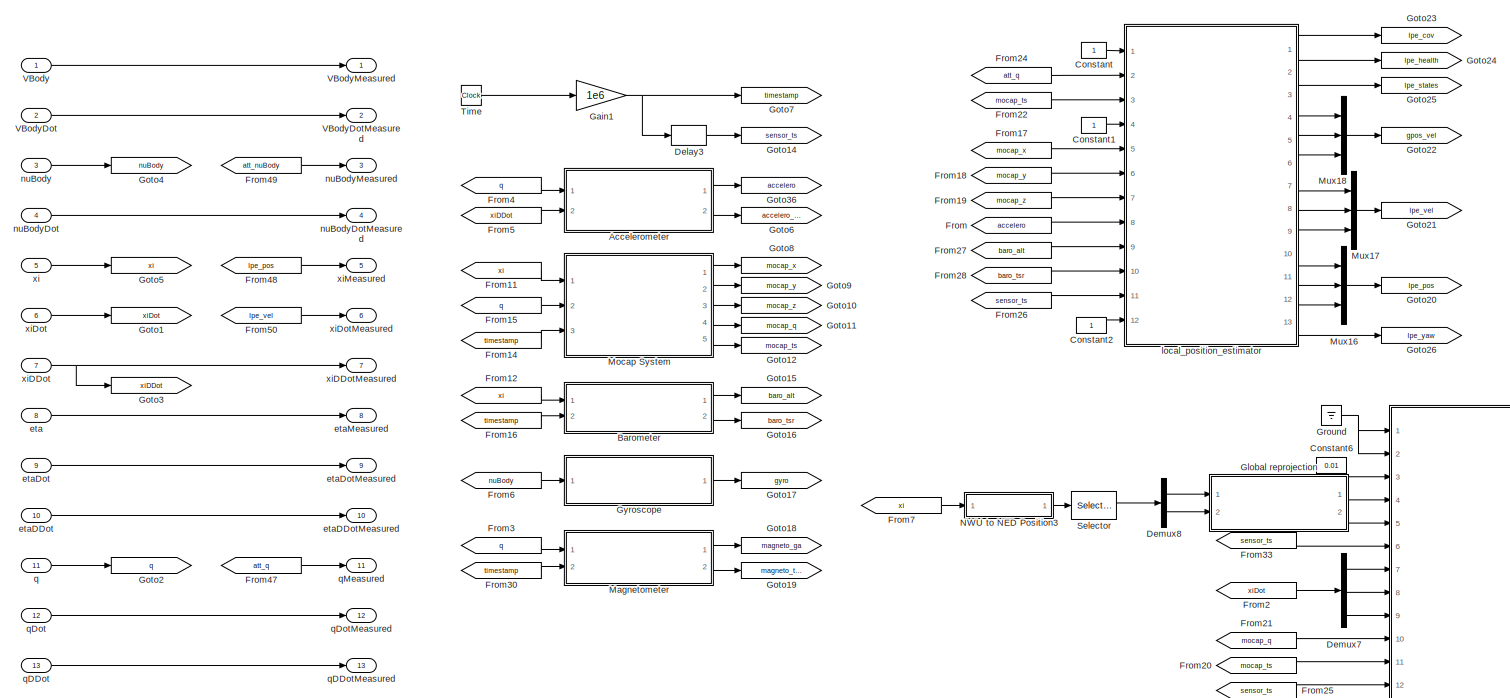
[diagram: Sensor Model - part 1/4, full width, top band]
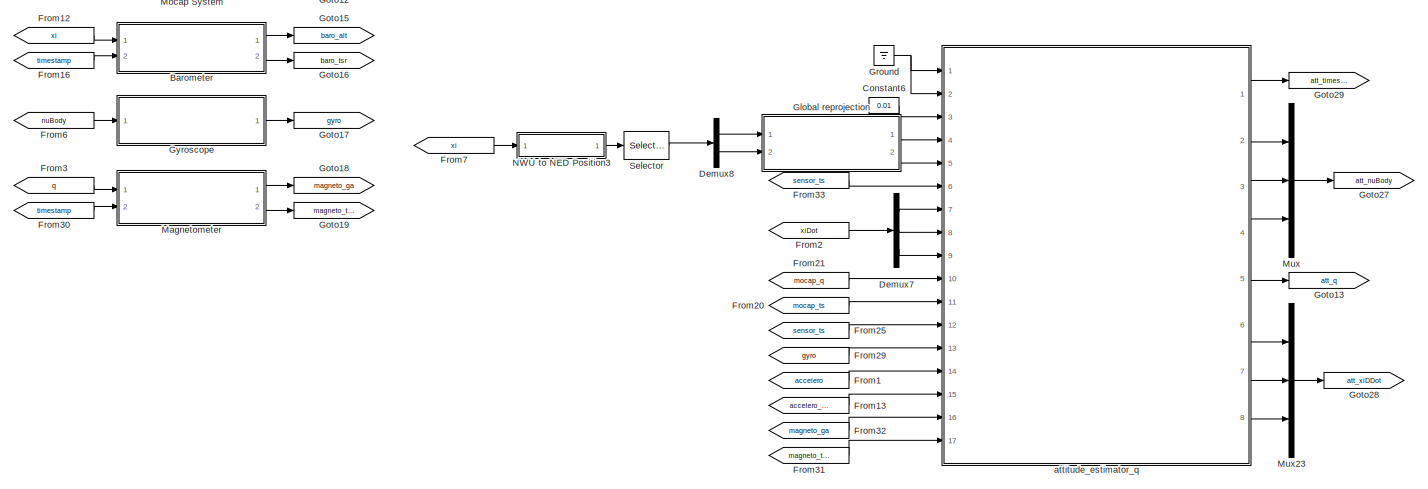
[diagram: Sensor Model - part 2/4, central region]
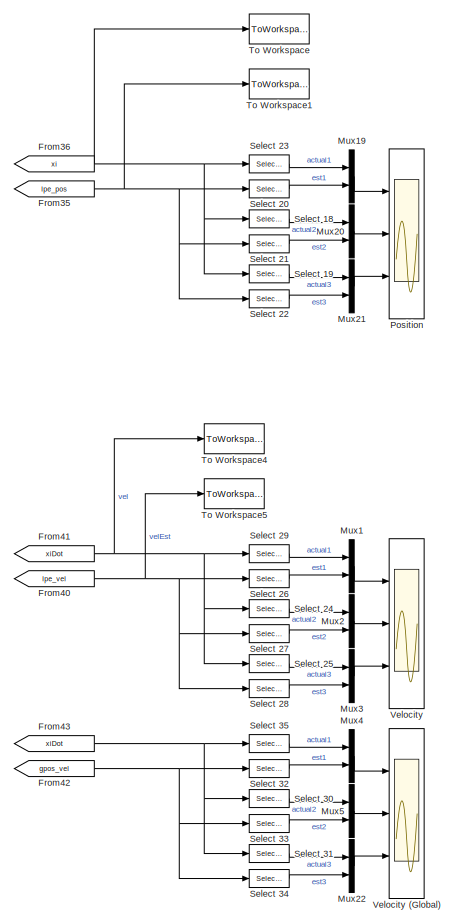
[diagram: Sensor Model - part 3/4, bottom left region]
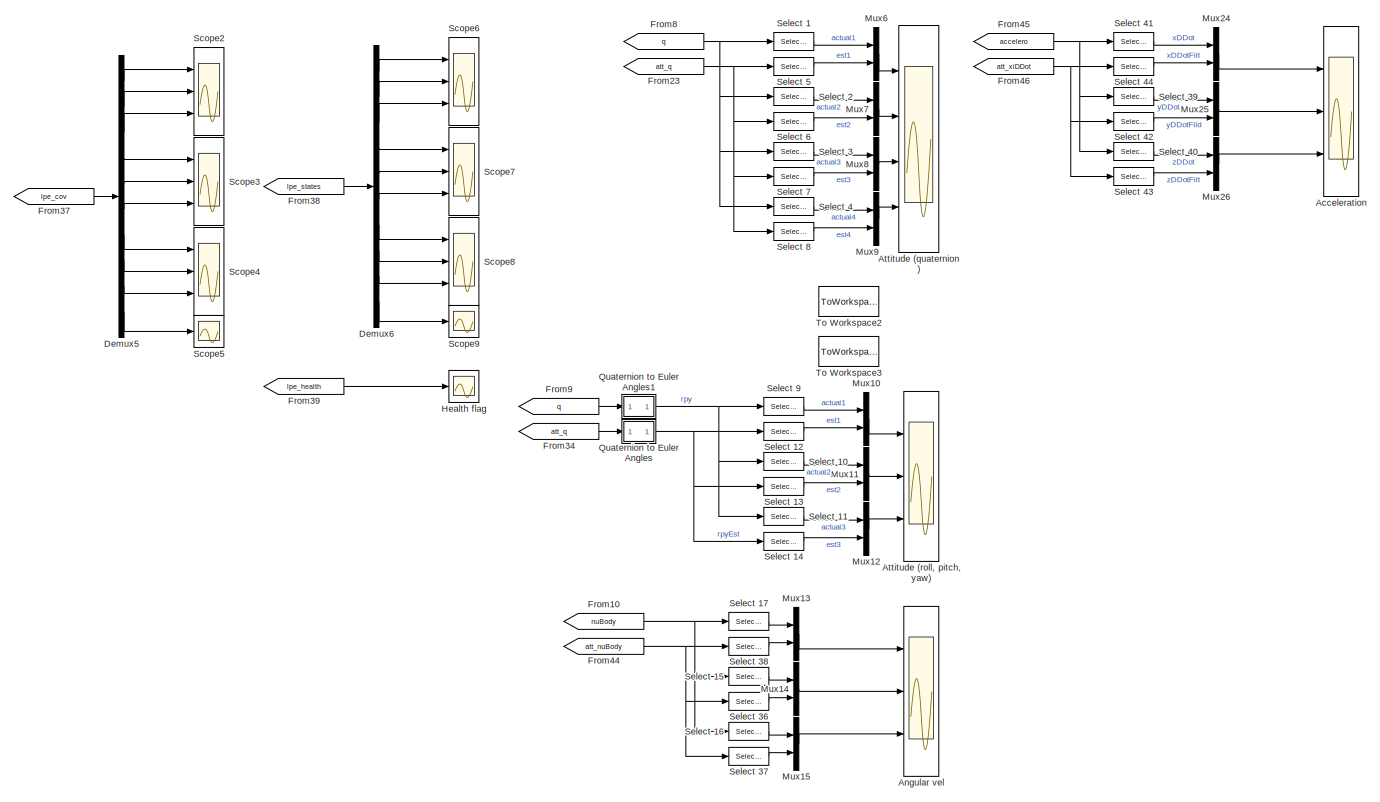
[diagram: Sensor Model - part 4/4, bottom center region]
BLOCK [SubSystem] Sensor Model
  Commented = on
  Ports = [13, 13]
  RequestExecContextInheritance = off
BLOCK [Scope] Sensor Model/Acceleration
  Floating = off
  NumInputPorts = 3
  Ports = [3]
  ScopeSpecificationString = Simulink.scopes.TimeScopeBlockCfg('CurrentConfiguration', extmgr.ConfigurationSet(extmgr.Configuration('Core','General UI',true),extmgr.Configuration('Core','Source UI',true),extmgr.Configuration('Sources','WiredSimulink',true,'DataLoggingVariableName','ScopeData1'),extmgr.Configuration('Visuals','Time Domain',true,'SerializedDisplays',{struct('MinYLimReal','-0.5772','MaxYLimReal','3.8309','YLabel...<+2745ch>
BLOCK [SubSystem] Sensor Model/Accelerometer
  Ports = [2, 2]
  RequestExecContextInheritance = off
BLOCK [Display] Sensor Model/Accelerometer/Accelerometer (world frame)
  Decimation = 1
  Ports = [1]
BLOCK [Constant] Sensor Model/Accelerometer/Constant5
  Value = 0
BLOCK [Delay] Sensor Model/Accelerometer/Delay
  DelayLength = 1
  InitialConditionSource = Input port
  InputPortMap = u0,p4
  Ports = [2, 1]
  SampleTime = 1/400
BLOCK [Delay] Sensor Model/Accelerometer/Delay1
  DelayLength = 1
  InitialConditionSource = Input port
  InputPortMap = u0,p4
  Ports = [2, 1]
  SampleTime = 1/400
BLOCK [Delay] Sensor Model/Accelerometer/Delay2
  DelayLength = 1
  InitialConditionSource = Input port
  InputPortMap = u0,p4
  Ports = [2, 1]
  SampleTime = 1/400
BLOCK [Demux] Sensor Model/Accelerometer/Demux1
  Outputs = 3
  Ports = [1, 3]
BLOCK [Constant] Sensor Model/Accelerometer/Gravity
  Value = [0;0;-9.81]
BLOCK [Math] Sensor Model/Accelerometer/Math Function
  Operator = transpose
  Ports = [1, 1]
  SignedPower = on
BLOCK [Product] Sensor Model/Accelerometer/Matrix Multiply
  Multiplication = Matrix(*)
  Ports = [2, 1]
BLOCK [Mux] Sensor Model/Accelerometer/Mux14
  DisplayOption = bar
  Inputs = 3
  Ports = [3, 1]
BLOCK [SubSystem] Sensor Model/Accelerometer/Quaternion to Rotation Matrix
  AncestorBlock = QuaternionLibrary/Quaternion\nto Rotation Matrix
  Ports = [1, 1]
  RequestExecContextInheritance = off
BLOCK [SubSystem] Sensor Model/Accelerometer/Quaternion to Rotation Matrix/MATLAB Function
  ErrorFcn = Stateflow.Translate.translate
  PermitHierarchicalResolution = ExplicitOnly
  Ports = [1, 1]
  RequestExecContextInheritance = off
  SFBlockType = MATLAB Function
  TreatAsAtomicUnit = on
BLOCK [Demux] Sensor Model/Accelerometer/Quaternion to Rotation Matrix/MATLAB Function/ Demux 
  Outputs = 1
  Ports = [1, 1]
BLOCK [S-Function] Sensor Model/Accelerometer/Quaternion to Rotation Matrix/MATLAB Function/ SFunction 
  EnableBusSupport = on
  FunctionName = sf_sfun
  PortCounts = [1 2]
  Ports = [1, 2]
  SFcnIsStateOwnerBlock = off
  SFunctionDeploymentMode = off
  Tag = Stateflow S-Function 10
BLOCK [Terminator] Sensor Model/Accelerometer/Quaternion to Rotation Matrix/MATLAB Function/ Terminator 
BLOCK [Outport] Sensor Model/Accelerometer/Quaternion to Rotation Matrix/MATLAB Function/R
  VectorParamsAs1DForOutWhenUnconnected = off
BLOCK [Inport] Sensor Model/Accelerometer/Quaternion to Rotation Matrix/MATLAB Function/q
BLOCK [Inport] Sensor Model/Accelerometer/Quaternion to Rotation Matrix/quaternion
BLOCK [Outport] Sensor Model/Accelerometer/Quaternion to Rotation Matrix/rotationMatrix
  VectorParamsAs1DForOutWhenUnconnected = off
BLOCK [Display] Sensor Model/Accelerometer/Raw Acceleration
  Decimation = 1
  Ports = [1]
BLOCK [Sum] Sensor Model/Accelerometer/Sum
  Inputs = |++
  Ports = [2, 1]
BLOCK [Sum] Sensor Model/Accelerometer/Sum1
  Inputs = |++
  Ports = [2, 1]
BLOCK [Sum] Sensor Model/Accelerometer/Sum2
  Inputs = |++
  Ports = [2, 1]
BLOCK [Sum] Sensor Model/Accelerometer/Sum3
  Inputs = |++
  Ports = [2, 1]
BLOCK [RandomNumber] Sensor Model/Accelerometer/acc_x noise
  SampleTime = 1/400
  Variance = 0.012^2
BLOCK [RandomNumber] Sensor Model/Accelerometer/acc_y noise
  SampleTime = 1/400
  Variance = 0.012^2
BLOCK [RandomNumber] Sensor Model/Accelerometer/acc_z noise
  SampleTime = 1/400
  Variance = 0.02^2
BLOCK [Outport] Sensor Model/Accelerometer/accelerometer_m_s2
  SampleTime = 1/400
  Unit = m/s^2
  VectorParamsAs1DForOutWhenUnconnected = off
BLOCK [Inport] Sensor Model/Accelerometer/q
BLOCK [Outport] Sensor Model/Accelerometer/timestamp_relative
  Port = 2
  SampleTime = 1/400
  Unit = µs
  VectorParamsAs1DForOutWhenUnconnected = off
BLOCK [Inport] Sensor Model/Accelerometer/xiDDot
  Port = 2
  Unit = m/s^2
BLOCK [Scope] Sensor Model/Angular vel
  Floating = off
  NumInputPorts = 3
  Ports = [3]
  ScopeSpecificationString = Simulink.scopes.TimeScopeBlockCfg('CurrentConfiguration', extmgr.ConfigurationSet(extmgr.Configuration('Core','General UI',true),extmgr.Configuration('Core','Source UI',true),extmgr.Configuration('Sources','WiredSimulink',true,'DataLoggingVariableName','ScopeData4'),extmgr.Configuration('Visuals','Time Domain',true,'SerializedDisplays',{struct('MinYLimReal','-0.03554','MaxYLimReal','0.07511','YLab...<+2781ch>
BLOCK [Scope] Sensor Model/Attitude (quaternion)
  Floating = off
  NumInputPorts = 4
  Ports = [4]
  ScopeSpecificationString = Simulink.scopes.TimeScopeBlockCfg('CurrentConfiguration', extmgr.ConfigurationSet(extmgr.Configuration('Core','General UI',true),extmgr.Configuration('Core','Source UI',true),extmgr.Configuration('Sources','WiredSimulink',true,'DataLoggingVariableName','ScopeData2'),extmgr.Configuration('Visuals','Time Domain',true,'SerializedDisplays',{struct('MinYLimReal','0.98587','MaxYLimReal','1.00157','YLabe...<+3451ch>
BLOCK [Scope] Sensor Model/Attitude (roll, pitch, yaw)
  Floating = off
  NumInputPorts = 3
  Ports = [3]
  ScopeSpecificationString = Simulink.scopes.TimeScopeBlockCfg('CurrentConfiguration', extmgr.ConfigurationSet(extmgr.Configuration('Core','General UI',true),extmgr.Configuration('Core','Source UI',true),extmgr.Configuration('Sources','WiredSimulink',true,'DataLoggingVariableName','ScopeData3'),extmgr.Configuration('Visuals','Time Domain',true,'PlotType','Stairs','SerializedDisplays',{struct('MinYLimReal','-0.00298','MaxYLimR...<+2717ch>
BLOCK [SubSystem] Sensor Model/Barometer
  Ports = [2, 2]
  RequestExecContextInheritance = off
BLOCK [Sum] Sensor Model/Barometer/Add
  IconShape = rectangular
  Inputs = +-
  Ports = [2, 1]
BLOCK [Scope] Sensor Model/Barometer/Scope
  Floating = off
  NumInputPorts = 1
  Ports = [1]
  ScopeSpecificationString = Simulink.scopes.TimeScopeBlockCfg('CurrentConfiguration', extmgr.ConfigurationSet(extmgr.Configuration('Core','General UI',true),extmgr.Configuration('Core','Source UI',true),extmgr.Configuration('Sources','WiredSimulink',true,'DataLoggingVariableName','ScopeData6'),extmgr.Configuration('Visuals','Time Domain',true,'SerializedDisplays',{struct('MinYLimReal','-11250.00000','MaxYLimReal','1250.00000...<+1434ch>
BLOCK [Selector] Sensor Model/Barometer/Select altitude
  IndexOptions = Index vector (dialog)
  Indices = 3
  InputPortWidth = 3
  OutputSizes = 1
  Ports = [1, 1]
BLOCK [Sum] Sensor Model/Barometer/Sum
  Inputs = |++
  Ports = [2, 1]
BLOCK [RateTransition] Sensor Model/Barometer/To 400 Hz
  Deterministic = off
  OutPortSampleTime = 1/250
BLOCK [RateTransition] Sensor Model/Barometer/To 400 Hz1
  OutPortSampleTime = 1/400
BLOCK [RateTransition] Sensor Model/Barometer/To 50 Hz
  OutPortSampleTime = 1/50
BLOCK [RateTransition] Sensor Model/Barometer/To 50 Hz1
  OutPortSampleTime = 1/50
BLOCK [Outport] Sensor Model/Barometer/baro_alt_meter
  SampleTime = 1/400
  Unit = m
  VectorParamsAs1DForOutWhenUnconnected = off
BLOCK [RandomNumber] Sensor Model/Barometer/barro noise
  SampleTime = 0.01
  Variance = 1/3^2
BLOCK [Inport] Sensor Model/Barometer/timestamp
  Port = 2
  Unit = µs
BLOCK [Outport] Sensor Model/Barometer/timestamp_relative
  Port = 2
  Unit = µs
  VectorParamsAs1DForOutWhenUnconnected = off
BLOCK [Inport] Sensor Model/Barometer/xi
  Unit = m
BLOCK [Constant] Sensor Model/Constant
BLOCK [Constant] Sensor Model/Constant1
BLOCK [Constant] Sensor Model/Constant2
BLOCK [Constant] Sensor Model/Constant6
  Value = 0.01
BLOCK [Delay] Sensor Model/Delay3
  DelayLength = 1
  InputPortMap = u0
  Ports = [1, 1]
  SampleTime = 1/400
BLOCK [Demux] Sensor Model/Demux5
  Outputs = 10
  Ports = [1, 10]
BLOCK [Demux] Sensor Model/Demux6
  Outputs = 10
  Ports = [1, 10]
BLOCK [Demux] Sensor Model/Demux7
  Outputs = 3
  Ports = [1, 3]
BLOCK [Demux] Sensor Model/Demux8
  Outputs = 2
  Ports = [1, 2]
BLOCK [From] Sensor Model/From
  GotoTag = accelero
BLOCK [From] Sensor Model/From1
  GotoTag = accelero
BLOCK [From] Sensor Model/From10
  GotoTag = nuBody
BLOCK [From] Sensor Model/From11
  GotoTag = xi
BLOCK [From] Sensor Model/From12
  GotoTag = xi
BLOCK [From] Sensor Model/From13
  GotoTag = accelero_tsr
BLOCK [From] Sensor Model/From14
  GotoTag = timestamp
BLOCK [From] Sensor Model/From15
  GotoTag = q
BLOCK [From] Sensor Model/From16
  GotoTag = timestamp
BLOCK [From] Sensor Model/From17
  GotoTag = mocap_x
BLOCK [From] Sensor Model/From18
  GotoTag = mocap_y
BLOCK [From] Sensor Model/From19
  GotoTag = mocap_z
BLOCK [From] Sensor Model/From2
  GotoTag = xiDot
BLOCK [From] Sensor Model/From20
  GotoTag = mocap_ts
BLOCK [From] Sensor Model/From21
  GotoTag = mocap_q
BLOCK [From] Sensor Model/From22
  GotoTag = mocap_ts
BLOCK [From] Sensor Model/From23
  GotoTag = att_q
BLOCK [From] Sensor Model/From24
  GotoTag = att_q
BLOCK [From] Sensor Model/From25
  GotoTag = sensor_ts
BLOCK [From] Sensor Model/From26
  GotoTag = sensor_ts
BLOCK [From] Sensor Model/From27
  GotoTag = baro_alt
BLOCK [From] Sensor Model/From28
  GotoTag = baro_tsr
BLOCK [From] Sensor Model/From29
  GotoTag = gyro
BLOCK [From] Sensor Model/From3
  GotoTag = q
BLOCK [From] Sensor Model/From30
  GotoTag = timestamp
BLOCK [From] Sensor Model/From31
  GotoTag = magneto_tsr
BLOCK [From] Sensor Model/From32
  GotoTag = magneto_ga
BLOCK [From] Sensor Model/From33
  GotoTag = sensor_ts
BLOCK [From] Sensor Model/From34
  GotoTag = att_q
BLOCK [From] Sensor Model/From35
  GotoTag = lpe_pos
BLOCK [From] Sensor Model/From36
  GotoTag = xi
BLOCK [From] Sensor Model/From37
  GotoTag = lpe_cov
BLOCK [From] Sensor Model/From38
  GotoTag = lpe_states
BLOCK [From] Sensor Model/From39
  GotoTag = lpe_health
BLOCK [From] Sensor Model/From4
  GotoTag = q
BLOCK [From] Sensor Model/From40
  GotoTag = lpe_vel
BLOCK [From] Sensor Model/From41
  GotoTag = xiDot
BLOCK [From] Sensor Model/From42
  GotoTag = gpos_vel
BLOCK [From] Sensor Model/From43
  GotoTag = xiDot
BLOCK [From] Sensor Model/From44
  GotoTag = att_nuBody
BLOCK [From] Sensor Model/From45
  GotoTag = accelero
BLOCK [From] Sensor Model/From46
  GotoTag = att_xiDDot
BLOCK [From] Sensor Model/From47
  GotoTag = att_q
BLOCK [From] Sensor Model/From48
  GotoTag = lpe_pos
BLOCK [From] Sensor Model/From49
  GotoTag = att_nuBody
BLOCK [From] Sensor Model/From5
  GotoTag = xiDDot
BLOCK [From] Sensor Model/From50
  GotoTag = lpe_vel
BLOCK [From] Sensor Model/From6
  GotoTag = nuBody
BLOCK [From] Sensor Model/From7
  GotoTag = xi
BLOCK [From] Sensor Model/From8
  GotoTag = q
BLOCK [From] Sensor Model/From9
  GotoTag = q
BLOCK [Gain] Sensor Model/Gain1
  Gain = 1e6
BLOCK [SubSystem] Sensor Model/Global reprojection
  AncestorBlock = Px4Library/Global reprojection
  Ports = [2, 2]
  RequestExecContextInheritance = off
BLOCK [Outport] Sensor Model/Global reprojection/lat
  VectorParamsAs1DForOutWhenUnconnected = off
BLOCK [Outport] Sensor Model/Global reprojection/lon
  Port = 2
  VectorParamsAs1DForOutWhenUnconnected = off
BLOCK [SubSystem] Sensor Model/Global reprojection/map_projection_reproject
  ErrorFcn = Stateflow.Translate.translate
  PermitHierarchicalResolution = ExplicitOnly
  Ports = [2, 2]
  RequestExecContextInheritance = off
  SFBlockType = MATLAB Function
  TreatAsAtomicUnit = on
BLOCK [Demux] Sensor Model/Global reprojection/map_projection_reproject/ Demux 
  Outputs = 1
  Ports = [1, 1]
BLOCK [S-Function] Sensor Model/Global reprojection/map_projection_reproject/ SFunction 
  EnableBusSupport = on
  FunctionName = sf_sfun
  Parameters = LAT0,LON0
  PortCounts = [2 3]
  Ports = [2, 3]
  SFcnIsStateOwnerBlock = off
  SFunctionDeploymentMode = off
  Tag = Stateflow S-Function 27
BLOCK [Terminator] Sensor Model/Global reprojection/map_projection_reproject/ Terminator 
BLOCK [Outport] Sensor Model/Global reprojection/map_projection_reproject/lat
  VectorParamsAs1DForOutWhenUnconnected = off
BLOCK [Outport] Sensor Model/Global reprojection/map_projection_reproject/lon
  Port = 2
  VectorParamsAs1DForOutWhenUnconnected = off
BLOCK [Inport] Sensor Model/Global reprojection/map_projection_reproject/x
BLOCK [Inport] Sensor Model/Global reprojection/map_projection_reproject/y
  Port = 2
BLOCK [Inport] Sensor Model/Global reprojection/x
BLOCK [Inport] Sensor Model/Global reprojection/y
  Port = 2
BLOCK [Goto] Sensor Model/Goto1
  GotoTag = xiDot
BLOCK [Goto] Sensor Model/Goto10
  GotoTag = mocap_z
BLOCK [Goto] Sensor Model/Goto11
  GotoTag = mocap_q
BLOCK [Goto] Sensor Model/Goto12
  GotoTag = mocap_ts
BLOCK [Goto] Sensor Model/Goto13
  GotoTag = att_q
BLOCK [Goto] Sensor Model/Goto14
  GotoTag = sensor_ts
BLOCK [Goto] Sensor Model/Goto15
  GotoTag = baro_alt
BLOCK [Goto] Sensor Model/Goto16
  GotoTag = baro_tsr
BLOCK [Goto] Sensor Model/Goto17
  GotoTag = gyro
BLOCK [Goto] Sensor Model/Goto18
  GotoTag = magneto_ga
BLOCK [Goto] Sensor Model/Goto19
  GotoTag = magneto_tsr
BLOCK [Goto] Sensor Model/Goto2
  GotoTag = q
BLOCK [Goto] Sensor Model/Goto20
  GotoTag = lpe_pos
BLOCK [Goto] Sensor Model/Goto21
  GotoTag = lpe_vel
BLOCK [Goto] Sensor Model/Goto22
  GotoTag = gpos_vel
BLOCK [Goto] Sensor Model/Goto23
  GotoTag = lpe_cov
BLOCK [Goto] Sensor Model/Goto24
  GotoTag = lpe_health
BLOCK [Goto] Sensor Model/Goto25
  GotoTag = lpe_states
BLOCK [Goto] Sensor Model/Goto26
  GotoTag = lpe_yaw
BLOCK [Goto] Sensor Model/Goto27
  GotoTag = att_nuBody
BLOCK [Goto] Sensor Model/Goto28
  GotoTag = att_xiDDot
BLOCK [Goto] Sensor Model/Goto29
  GotoTag = att_timestamp
BLOCK [Goto] Sensor Model/Goto3
  GotoTag = xiDDot
BLOCK [Goto] Sensor Model/Goto36
  GotoTag = accelero
BLOCK [Goto] Sensor Model/Goto4
  GotoTag = nuBody
BLOCK [Goto] Sensor Model/Goto5
  GotoTag = xi
BLOCK [Goto] Sensor Model/Goto6
  GotoTag = accelero_tsr
BLOCK [Goto] Sensor Model/Goto7
  GotoTag = timestamp
BLOCK [Goto] Sensor Model/Goto8
  GotoTag = mocap_x
BLOCK [Goto] Sensor Model/Goto9
  GotoTag = mocap_y
BLOCK [Ground] Sensor Model/Ground
BLOCK [SubSystem] Sensor Model/Gyroscope
  Ports = [1, 1]
  RequestExecContextInheritance = off
BLOCK [Constant] Sensor Model/Gyroscope/Bias
  Commented = on
  Value = [0.0001;0.0001;0.0001]
BLOCK [Delay] Sensor Model/Gyroscope/Delay1
  DelayLength = 1
  InitialConditionSource = Input port
  InputPortMap = u0,p4
  Ports = [2, 1]
  SampleTime = 1/400
BLOCK [Delay] Sensor Model/Gyroscope/Delay2
  DelayLength = 1
  InitialConditionSource = Input port
  InputPortMap = u0,p4
  Ports = [2, 1]
  SampleTime = 1/400
BLOCK [Delay] Sensor Model/Gyroscope/Delay4
  DelayLength = 1
  InitialConditionSource = Input port
  InputPortMap = u0,p4
  Ports = [2, 1]
  SampleTime = 1/400
BLOCK [Demux] Sensor Model/Gyroscope/Demux
  Outputs = 3
  Ports = [1, 3]
BLOCK [Mux] Sensor Model/Gyroscope/Mux
  DisplayOption = bar
  Inputs = 3
  Ports = [3, 1]
BLOCK [Sum] Sensor Model/Gyroscope/Sum2
  Inputs = ++|
  Ports = [2, 1]
BLOCK [Outport] Sensor Model/Gyroscope/gyro_rad
  SampleTime = 1/400
  Unit = rad/s
  VectorParamsAs1DForOutWhenUnconnected = off
BLOCK [Inport] Sensor Model/Gyroscope/nuBody
  Unit = rad/s
BLOCK [Scope] Sensor Model/Health flag
  Floating = off
  NumInputPorts = 1
  Ports = [1]
  ScopeSpecificationString = Simulink.scopes.TimeScopeBlockCfg('CurrentConfiguration', extmgr.ConfigurationSet(extmgr.Configuration('Core','General UI',true),extmgr.Configuration('Core','Source UI',true),extmgr.Configuration('Sources','WiredSimulink',true,'DataLoggingVariableName','ScopeData9'),extmgr.Configuration('Visuals','Time Domain',true,'SerializedDisplays',{struct('MinYLimReal','-0.49748','MaxYLimReal','65.88083','YLa...<+1455ch>
BLOCK [SubSystem] Sensor Model/Magnetometer
  Ports = [2, 2]
  RequestExecContextInheritance = off
BLOCK [Sum] Sensor Model/Magnetometer/Add
  IconShape = rectangular
  Inputs = +-
  Ports = [2, 1]
BLOCK [Delay] Sensor Model/Magnetometer/Delay1
  DelayLength = 1
  InitialConditionSource = Input port
  InputPortMap = u0,p4
  Ports = [2, 1]
  SampleTime = 1/100
BLOCK [Delay] Sensor Model/Magnetometer/Delay2
  DelayLength = 1
  InitialConditionSource = Input port
  InputPortMap = u0,p4
  Ports = [2, 1]
  SampleTime = 1/100
BLOCK [Delay] Sensor Model/Magnetometer/Delay3
  DelayLength = 1
  InitialConditionSource = Input port
  InputPortMap = u0,p4
  Ports = [2, 1]
  SampleTime = 1/100
BLOCK [Demux] Sensor Model/Magnetometer/Demux1
  Outputs = 3
  Ports = [1, 3]
BLOCK [Math] Sensor Model/Magnetometer/Math Function1
  Operator = transpose
  Ports = [1, 1]
  SignedPower = on
BLOCK [Product] Sensor Model/Magnetometer/Matrix Multiply1
  Multiplication = Matrix(*)
  Ports = [2, 1]
BLOCK [Mux] Sensor Model/Magnetometer/Mux14
  DisplayOption = bar
  Inputs = 3
  Ports = [3, 1]
BLOCK [SubSystem] Sensor Model/Magnetometer/NWU to NED Quaternion2
  AncestorBlock = Px4Library/NWU to NED\nQuaternion
  Ports = [1, 1]
  RequestExecContextInheritance = off
BLOCK [Product] Sensor Model/Magnetometer/NWU to NED Quaternion2/Multiply
  Inputs = **
  Ports = [2, 1]
BLOCK [Constant] Sensor Model/Magnetometer/NWU to NED Quaternion2/Quaternion gain
  Value = [1; 1; -1; -1]
BLOCK [Outport] Sensor Model/Magnetometer/NWU to NED Quaternion2/qNED
  VectorParamsAs1DForOutWhenUnconnected = off
BLOCK [Inport] Sensor Model/Magnetometer/NWU to NED Quaternion2/qNWU
BLOCK [Constant] Sensor Model/Magnetometer/North
  Value = [1;0;0]
BLOCK [SubSystem] Sensor Model/Magnetometer/Quaternion to Rotation Matrix1
  AncestorBlock = QuaternionLibrary/Quaternion\nto Rotation Matrix
  Ports = [1, 1]
  RequestExecContextInheritance = off
BLOCK [SubSystem] Sensor Model/Magnetometer/Quaternion to Rotation Matrix1/MATLAB Function
  ErrorFcn = Stateflow.Translate.translate
  PermitHierarchicalResolution = ExplicitOnly
  Ports = [1, 1]
  RequestExecContextInheritance = off
  SFBlockType = MATLAB Function
  TreatAsAtomicUnit = on
BLOCK [Demux] Sensor Model/Magnetometer/Quaternion to Rotation Matrix1/MATLAB Function/ Demux 
  Outputs = 1
  Ports = [1, 1]
BLOCK [S-Function] Sensor Model/Magnetometer/Quaternion to Rotation Matrix1/MATLAB Function/ SFunction 
  EnableBusSupport = on
  FunctionName = sf_sfun
  PortCounts = [1 2]
  Ports = [1, 2]
  SFcnIsStateOwnerBlock = off
  SFunctionDeploymentMode = off
  Tag = Stateflow S-Function 19
BLOCK [Terminator] Sensor Model/Magnetometer/Quaternion to Rotation Matrix1/MATLAB Function/ Terminator 
BLOCK [Outport] Sensor Model/Magnetometer/Quaternion to Rotation Matrix1/MATLAB Function/R
  VectorParamsAs1DForOutWhenUnconnected = off
BLOCK [Inport] Sensor Model/Magnetometer/Quaternion to Rotation Matrix1/MATLAB Function/q
BLOCK [Inport] Sensor Model/Magnetometer/Quaternion to Rotation Matrix1/quaternion
BLOCK [Outport] Sensor Model/Magnetometer/Quaternion to Rotation Matrix1/rotationMatrix
  VectorParamsAs1DForOutWhenUnconnected = off
BLOCK [RateTransition] Sensor Model/Magnetometer/Rate Transition1
  Deterministic = off
  OutPortSampleTime = 1/100
BLOCK [Scope] Sensor Model/Magnetometer/Scope
  Floating = off
  NumInputPorts = 1
  Ports = [1]
  ScopeSpecificationString = Simulink.scopes.TimeScopeBlockCfg('CurrentConfiguration', extmgr.ConfigurationSet(extmgr.Configuration('Core','General UI',true),extmgr.Configuration('Core','Source UI',true),extmgr.Configuration('Sources','WiredSimulink',true,'DataLoggingVariableName','ScopeData5'),extmgr.Configuration('Visuals','Time Domain',true,'SerializedDisplays',{struct('MinYLimReal','-11250.00000','MaxYLimReal','1250.00000...<+1434ch>
BLOCK [Scope] Sensor Model/Magnetometer/Scope1
  Floating = off
  NumInputPorts = 1
  Ports = [1]
  ScopeSpecificationString = Simulink.scopes.TimeScopeBlockCfg('CurrentConfiguration', extmgr.ConfigurationSet(extmgr.Configuration('Core','General UI',true),extmgr.Configuration('Core','Source UI',true),extmgr.Configuration('Sources','WiredSimulink',true,'DataLoggingVariableName','ScopeData1'),extmgr.Configuration('Visuals','Time Domain',true,'SerializedDisplays',{struct('MinYLimReal','-1.07083','MaxYLimReal','0.13698','YLab...<+1493ch>
BLOCK [Sum] Sensor Model/Magnetometer/Sum
  Inputs = |++
  Ports = [2, 1]
BLOCK [Sum] Sensor Model/Magnetometer/Sum2
  Inputs = |++
  Ports = [2, 1]
BLOCK [Sum] Sensor Model/Magnetometer/Sum3
  Inputs = |++
  Ports = [2, 1]
BLOCK [RateTransition] Sensor Model/Magnetometer/To 100 Hz
  OutPortSampleTime = 1/100
BLOCK [RateTransition] Sensor Model/Magnetometer/To 400 Hz
  Deterministic = off
  OutPortSampleTime = 1/250
BLOCK [RateTransition] Sensor Model/Magnetometer/To 400 Hz1
  OutPortSampleTime = 1/400
BLOCK [RandomNumber] Sensor Model/Magnetometer/gyro_x noise
  SampleTime = 1/400
  Variance = 0.001^2
BLOCK [RandomNumber] Sensor Model/Magnetometer/gyro_y noise
  SampleTime = 1/400
  Variance = 0.001^2
BLOCK [RandomNumber] Sensor Model/Magnetometer/gyro_z noise
  SampleTime = 1/400
  Variance = 0.001^2
BLOCK [Outport] Sensor Model/Magnetometer/magnetometer_ga
  SampleTime = 1/250
  Unit = G
  VectorParamsAs1DForOutWhenUnconnected = off
BLOCK [Inport] Sensor Model/Magnetometer/q
BLOCK [Inport] Sensor Model/Magnetometer/timestamp
  Port = 2
BLOCK [Outport] Sensor Model/Magnetometer/timestamp_relative
  Port = 2
  SampleTime = 1/250
  Unit = µs
  VectorParamsAs1DForOutWhenUnconnected = off
BLOCK [SubSystem] Sensor Model/Mocap System
  Ports = [3, 5]
  RequestExecContextInheritance = off
BLOCK [Delay] Sensor Model/Mocap System/Delay
  DelayLength = 10
  InputPortMap = u0
  Ports = [1, 1]
  SampleTime = 1/100
BLOCK [Delay] Sensor Model/Mocap System/Delay1
  DelayLength = 10
  InputPortMap = u0
  Ports = [1, 1]
  SampleTime = 1/100
BLOCK [Delay] Sensor Model/Mocap System/Delay2
  DelayLength = 10
  InitialConditionSource = Input port
  InputPortMap = u0,p4
  Ports = [2, 1]
  SampleTime = 1/100
BLOCK [Delay] Sensor Model/Mocap System/Delay3
  DelayLength = 10
  InitialConditionSource = Input port
  InputPortMap = u0,p4
  Ports = [2, 1]
  SampleTime = 1/100
BLOCK [Delay] Sensor Model/Mocap System/Delay4
  DelayLength = 10
  InitialConditionSource = Input port
  InputPortMap = u0,p4
  Ports = [2, 1]
  SampleTime = 1/100
BLOCK [Demux] Sensor Model/Mocap System/Demux
  Outputs = 3
  Ports = [1, 3]
BLOCK [Demux] Sensor Model/Mocap System/Demux1
  Outputs = 3
  Ports = [1, 3]
BLOCK [Mux] Sensor Model/Mocap System/Mux14
  DisplayOption = bar
  Inputs = 3
  Ports = [3, 1]
BLOCK [SubSystem] Sensor Model/Mocap System/NWU to NED Position
  AncestorBlock = Px4Library/NWU to NED\nPosition
  Commented = through
  Ports = [1, 1]
  RequestExecContextInheritance = off
BLOCK [Product] Sensor Model/Mocap System/NWU to NED Position/Multiply
  Inputs = **
  Ports = [2, 1]
BLOCK [Constant] Sensor Model/Mocap System/NWU to NED Position/Position gain
  Value = [1; -1; -1]
BLOCK [Outport] Sensor Model/Mocap System/NWU to NED Position/posNED
  VectorParamsAs1DForOutWhenUnconnected = off
BLOCK [Inport] Sensor Model/Mocap System/NWU to NED Position/posNWU
BLOCK [Sum] Sensor Model/Mocap System/Sum
  Inputs = |++
  Ports = [2, 1]
BLOCK [Sum] Sensor Model/Mocap System/Sum1
  Inputs = |++
  Ports = [2, 1]
BLOCK [Sum] Sensor Model/Mocap System/Sum2
  Inputs = |++
  Ports = [2, 1]
BLOCK [Outport] Sensor Model/Mocap System/mocap_q
  Port = 4
  VectorParamsAs1DForOutWhenUnconnected = off
BLOCK [Outport] Sensor Model/Mocap System/mocap_timestamp
  Port = 5
  VectorParamsAs1DForOutWhenUnconnected = off
BLOCK [Outport] Sensor Model/Mocap System/mocap_x
  VectorParamsAs1DForOutWhenUnconnected = off
BLOCK [Outport] Sensor Model/Mocap System/mocap_y
  Port = 2
  VectorParamsAs1DForOutWhenUnconnected = off
BLOCK [Outport] Sensor Model/Mocap System/mocap_z
  Port = 3
  VectorParamsAs1DForOutWhenUnconnected = off
BLOCK [Inport] Sensor Model/Mocap System/q
  Port = 2
BLOCK [Inport] Sensor Model/Mocap System/timestamp
  Port = 3
BLOCK [RandomNumber] Sensor Model/Mocap System/vic_p x
  SampleTime = 0.01
  Variance = 0.001^2
BLOCK [RandomNumber] Sensor Model/Mocap System/vic_p y
  SampleTime = 0.01
  Variance = 0.001^2
BLOCK [RandomNumber] Sensor Model/Mocap System/vic_p z
  SampleTime = 0.01
  Variance = 0.001^2
BLOCK [Inport] Sensor Model/Mocap System/xi
BLOCK [Mux] Sensor Model/Mux
  DisplayOption = bar
  Inputs = 3
  Ports = [3, 1]
BLOCK [Mux] Sensor Model/Mux1
  DisplayOption = bar
  Inputs = 2
  Ports = [2, 1]
BLOCK [Mux] Sensor Model/Mux10
  DisplayOption = bar
  Inputs = 2
  Ports = [2, 1]
BLOCK [Mux] Sensor Model/Mux11
  DisplayOption = bar
  Inputs = 2
  Ports = [2, 1]
BLOCK [Mux] Sensor Model/Mux12
  DisplayOption = bar
  Inputs = 2
  Ports = [2, 1]
BLOCK [Mux] Sensor Model/Mux13
  DisplayOption = bar
  Inputs = 2
  Ports = [2, 1]
BLOCK [Mux] Sensor Model/Mux14
  DisplayOption = bar
  Inputs = 2
  Ports = [2, 1]
BLOCK [Mux] Sensor Model/Mux15
  DisplayOption = bar
  Inputs = 2
  Ports = [2, 1]
BLOCK [Mux] Sensor Model/Mux16
  DisplayOption = bar
  Inputs = 3
  Ports = [3, 1]
BLOCK [Mux] Sensor Model/Mux17
  DisplayOption = bar
  Inputs = 3
  Ports = [3, 1]
BLOCK [Mux] Sensor Model/Mux18
  DisplayOption = bar
  Inputs = 3
  Ports = [3, 1]
BLOCK [Mux] Sensor Model/Mux19
  DisplayOption = bar
  Inputs = 2
  Ports = [2, 1]
BLOCK [Mux] Sensor Model/Mux2
  DisplayOption = bar
  Inputs = 2
  Ports = [2, 1]
BLOCK [Mux] Sensor Model/Mux20
  DisplayOption = bar
  Inputs = 2
  Ports = [2, 1]
BLOCK [Mux] Sensor Model/Mux21
  DisplayOption = bar
  Inputs = 2
  Ports = [2, 1]
BLOCK [Mux] Sensor Model/Mux22
  DisplayOption = bar
  Inputs = 2
  Ports = [2, 1]
BLOCK [Mux] Sensor Model/Mux23
  DisplayOption = bar
  Inputs = 3
  Ports = [3, 1]
BLOCK [Mux] Sensor Model/Mux24
  DisplayOption = bar
  Inputs = 2
  Ports = [2, 1]
BLOCK [Mux] Sensor Model/Mux25
  DisplayOption = bar
  Inputs = 2
  Ports = [2, 1]
BLOCK [Mux] Sensor Model/Mux26
  DisplayOption = bar
  Inputs = 2
  Ports = [2, 1]
BLOCK [Mux] Sensor Model/Mux3
  DisplayOption = bar
  Inputs = 2
  Ports = [2, 1]
BLOCK [Mux] Sensor Model/Mux4
  DisplayOption = bar
  Inputs = 2
  Ports = [2, 1]
BLOCK [Mux] Sensor Model/Mux5
  DisplayOption = bar
  Inputs = 2
  Ports = [2, 1]
BLOCK [Mux] Sensor Model/Mux6
  DisplayOption = bar
  Inputs = 2
  Ports = [2, 1]
BLOCK [Mux] Sensor Model/Mux7
  DisplayOption = bar
  Inputs = 2
  Ports = [2, 1]
BLOCK [Mux] Sensor Model/Mux8
  DisplayOption = bar
  Inputs = 2
  Ports = [2, 1]
BLOCK [Mux] Sensor Model/Mux9
  DisplayOption = bar
  Inputs = 2
  Ports = [2, 1]
BLOCK [SubSystem] Sensor Model/NWU to NED Position3
  AncestorBlock = Px4Library/NWU to NED\nPosition
  Ports = [1, 1]
  RequestExecContextInheritance = off
BLOCK [Product] Sensor Model/NWU to NED Position3/Multiply
  Inputs = **
  Ports = [2, 1]
BLOCK [Constant] Sensor Model/NWU to NED Position3/Position gain
  Value = [1; -1; -1]
BLOCK [Outport] Sensor Model/NWU to NED Position3/posNED
  VectorParamsAs1DForOutWhenUnconnected = off
BLOCK [Inport] Sensor Model/NWU to NED Position3/posNWU
BLOCK [Scope] Sensor Model/Position
  Floating = off
  NumInputPorts = 3
  Ports = [3]
  ScopeSpecificationString = Simulink.scopes.TimeScopeBlockCfg('CurrentConfiguration', extmgr.ConfigurationSet(extmgr.Configuration('Core','General UI',true),extmgr.Configuration('Core','Source UI',true),extmgr.Configuration('Sources','WiredSimulink',true,'DataLoggingVariableName','ScopeData1'),extmgr.Configuration('Visuals','Time Domain',true,'SerializedDisplays',{struct('MinYLimReal','0.26457','MaxYLimReal','0.29796','YLabe...<+2762ch>
BLOCK [SubSystem] Sensor Model/Quaternion to Euler Angles
  AncestorBlock = QuaternionLibrary/Quaternion\nto Euler Angles
  Ports = [1, 1]
  RequestExecContextInheritance = off
BLOCK [SubSystem] Sensor Model/Quaternion to Euler Angles/MATLAB Function
  ErrorFcn = Stateflow.Translate.translate
  PermitHierarchicalResolution = ExplicitOnly
  Ports = [1, 1]
  RequestExecContextInheritance = off
  SFBlockType = MATLAB Function
  TreatAsAtomicUnit = on
BLOCK [Demux] Sensor Model/Quaternion to Euler Angles/MATLAB Function/ Demux 
  Outputs = 1
  Ports = [1, 1]
BLOCK [S-Function] Sensor Model/Quaternion to Euler Angles/MATLAB Function/ SFunction 
  EnableBusSupport = on
  FunctionName = sf_sfun
  PortCounts = [1 2]
  Ports = [1, 2]
  SFcnIsStateOwnerBlock = off
  SFunctionDeploymentMode = off
  Tag = Stateflow S-Function 29
BLOCK [Terminator] Sensor Model/Quaternion to Euler Angles/MATLAB Function/ Terminator 
BLOCK [Outport] Sensor Model/Quaternion to Euler Angles/MATLAB Function/eul
  VectorParamsAs1DForOutWhenUnconnected = off
BLOCK [Inport] Sensor Model/Quaternion to Euler Angles/MATLAB Function/quat
BLOCK [Outport] Sensor Model/Quaternion to Euler Angles/euler
  VectorParamsAs1DForOutWhenUnconnected = off
BLOCK [Inport] Sensor Model/Quaternion to Euler Angles/quaternion
BLOCK [SubSystem] Sensor Model/Quaternion to Euler Angles1
  AncestorBlock = QuaternionLibrary/Quaternion\nto Euler Angles
  Ports = [1, 1]
  RequestExecContextInheritance = off
BLOCK [SubSystem] Sensor Model/Quaternion to Euler Angles1/MATLAB Function
  ErrorFcn = Stateflow.Translate.translate
  PermitHierarchicalResolution = ExplicitOnly
  Ports = [1, 1]
  RequestExecContextInheritance = off
  SFBlockType = MATLAB Function
  TreatAsAtomicUnit = on
BLOCK [Demux] Sensor Model/Quaternion to Euler Angles1/MATLAB Function/ Demux 
  Outputs = 1
  Ports = [1, 1]
BLOCK [S-Function] Sensor Model/Quaternion to Euler Angles1/MATLAB Function/ SFunction 
  EnableBusSupport = on
  FunctionName = sf_sfun
  PortCounts = [1 2]
  Ports = [1, 2]
  SFcnIsStateOwnerBlock = off
  SFunctionDeploymentMode = off
  Tag = Stateflow S-Function 13
BLOCK [Terminator] Sensor Model/Quaternion to Euler Angles1/MATLAB Function/ Terminator 
BLOCK [Outport] Sensor Model/Quaternion to Euler Angles1/MATLAB Function/eul
  VectorParamsAs1DForOutWhenUnconnected = off
BLOCK [Inport] Sensor Model/Quaternion to Euler Angles1/MATLAB Function/quat
BLOCK [Outport] Sensor Model/Quaternion to Euler Angles1/euler
  VectorParamsAs1DForOutWhenUnconnected = off
BLOCK [Inport] Sensor Model/Quaternion to Euler Angles1/quaternion
BLOCK [Scope] Sensor Model/Scope2
  Floating = off
  NumInputPorts = 3
  Ports = [3]
  ScopeSpecificationString = Simulink.scopes.TimeScopeBlockCfg('CurrentConfiguration', extmgr.ConfigurationSet(extmgr.Configuration('Core','General UI',true),extmgr.Configuration('Core','Source UI',true),extmgr.Configuration('Sources','WiredSimulink',true,'DataLoggingVariableName','ScopeData1'),extmgr.Configuration('Visuals','Time Domain',true,'SerializedDisplays',{struct('MinYLimReal','-1.00000','MaxYLimReal','9.00000','YLab...<+2706ch>
BLOCK [Scope] Sensor Model/Scope3
  Floating = off
  NumInputPorts = 3
  Ports = [3]
  ScopeSpecificationString = Simulink.scopes.TimeScopeBlockCfg('CurrentConfiguration', extmgr.ConfigurationSet(extmgr.Configuration('Core','General UI',true),extmgr.Configuration('Core','Source UI',true),extmgr.Configuration('Sources','WiredSimulink',true,'DataLoggingVariableName','ScopeData2'),extmgr.Configuration('Visuals','Time Domain',true,'SerializedDisplays',{struct('MinYLimReal','-0.0225','MaxYLimReal','0.2025','YLabel...<+2699ch>
BLOCK [Scope] Sensor Model/Scope4
  Floating = off
  NumInputPorts = 3
  Ports = [3]
  ScopeSpecificationString = Simulink.scopes.TimeScopeBlockCfg('CurrentConfiguration', extmgr.ConfigurationSet(extmgr.Configuration('Core','General UI',true),extmgr.Configuration('Core','Source UI',true),extmgr.Configuration('Sources','WiredSimulink',true,'DataLoggingVariableName','ScopeData3'),extmgr.Configuration('Visuals','Time Domain',true,'SerializedDisplays',{struct('MinYLimReal','-0.0000001','MaxYLimReal','0.0000011','...<+2741ch>
BLOCK [Scope] Sensor Model/Scope5
  Floating = off
  NumInputPorts = 1
  Ports = [1]
  ScopeSpecificationString = Simulink.scopes.TimeScopeBlockCfg('CurrentConfiguration', extmgr.ConfigurationSet(extmgr.Configuration('Core','General UI',true),extmgr.Configuration('Core','Source UI',true),extmgr.Configuration('Sources','WiredSimulink',true,'DataLoggingVariableName','ScopeData4'),extmgr.Configuration('Visuals','Time Domain',true,'SerializedDisplays',{struct('MinYLimReal','-1.00000','MaxYLimReal','9.00000','YLab...<+1368ch>
BLOCK [Scope] Sensor Model/Scope6
  Floating = off
  NumInputPorts = 3
  Ports = [3]
  ScopeSpecificationString = Simulink.scopes.TimeScopeBlockCfg('CurrentConfiguration', extmgr.ConfigurationSet(extmgr.Configuration('Core','General UI',true),extmgr.Configuration('Core','Source UI',true),extmgr.Configuration('Sources','WiredSimulink',true,'DataLoggingVariableName','ScopeData5'),extmgr.Configuration('Visuals','Time Domain',true,'SerializedDisplays',{struct('MinYLimReal','-0.91006','MaxYLimReal','0.10112','YLab...<+2706ch>
BLOCK [Scope] Sensor Model/Scope7
  Floating = off
  NumInputPorts = 3
  Ports = [3]
  ScopeSpecificationString = Simulink.scopes.TimeScopeBlockCfg('CurrentConfiguration', extmgr.ConfigurationSet(extmgr.Configuration('Core','General UI',true),extmgr.Configuration('Core','Source UI',true),extmgr.Configuration('Sources','WiredSimulink',true,'DataLoggingVariableName','ScopeData6'),extmgr.Configuration('Visuals','Time Domain',true,'SerializedDisplays',{struct('MinYLimReal','-1.00000','MaxYLimReal','1.00000','YLab...<+2681ch>
BLOCK [Scope] Sensor Model/Scope8
  Floating = off
  NumInputPorts = 3
  Ports = [3]
  ScopeSpecificationString = Simulink.scopes.TimeScopeBlockCfg('CurrentConfiguration', extmgr.ConfigurationSet(extmgr.Configuration('Core','General UI',true),extmgr.Configuration('Core','Source UI',true),extmgr.Configuration('Sources','WiredSimulink',true,'DataLoggingVariableName','ScopeData7'),extmgr.Configuration('Visuals','Time Domain',true,'SerializedDisplays',{struct('MinYLimReal','-1.00000','MaxYLimReal','1.00000','YLab...<+2681ch>
BLOCK [Scope] Sensor Model/Scope9
  Floating = off
  NumInputPorts = 1
  Ports = [1]
  ScopeSpecificationString = Simulink.scopes.TimeScopeBlockCfg('CurrentConfiguration', extmgr.ConfigurationSet(extmgr.Configuration('Core','General UI',true),extmgr.Configuration('Core','Source UI',true),extmgr.Configuration('Sources','WiredSimulink',true,'DataLoggingVariableName','ScopeData8'),extmgr.Configuration('Visuals','Time Domain',true,'SerializedDisplays',{struct('MinYLimReal','-1.00000','MaxYLimReal','1.00000','YLab...<+1368ch>
BLOCK [Selector] Sensor Model/Select 1
  IndexOptions = Index vector (dialog)
  Indices = 1
  InputPortWidth = 4
  OutputSizes = 1
  Ports = [1, 1]
BLOCK [Selector] Sensor Model/Select 10
  IndexOptions = Index vector (dialog)
  Indices = 2
  InputPortWidth = 3
  OutputSizes = 1
  Ports = [1, 1]
BLOCK [Selector] Sensor Model/Select 11
  IndexOptions = Index vector (dialog)
  Indices = 3
  InputPortWidth = 3
  OutputSizes = 1
  Ports = [1, 1]
BLOCK [Selector] Sensor Model/Select 12
  IndexOptions = Index vector (dialog)
  Indices = 1
  InputPortWidth = 3
  OutputSizes = 1
  Ports = [1, 1]
BLOCK [Selector] Sensor Model/Select 13
  IndexOptions = Index vector (dialog)
  Indices = 2
  InputPortWidth = 3
  OutputSizes = 1
  Ports = [1, 1]
BLOCK [Selector] Sensor Model/Select 14
  IndexOptions = Index vector (dialog)
  Indices = 3
  InputPortWidth = 3
  OutputSizes = 1
  Ports = [1, 1]
BLOCK [Selector] Sensor Model/Select 15
  IndexOptions = Index vector (dialog)
  Indices = 2
  InputPortWidth = 3
  OutputSizes = 1
  Ports = [1, 1]
BLOCK [Selector] Sensor Model/Select 16
  IndexOptions = Index vector (dialog)
  Indices = 3
  InputPortWidth = 3
  OutputSizes = 1
  Ports = [1, 1]
BLOCK [Selector] Sensor Model/Select 17
  IndexOptions = Index vector (dialog)
  Indices = 1
  InputPortWidth = 3
  OutputSizes = 1
  Ports = [1, 1]
BLOCK [Selector] Sensor Model/Select 18
  IndexOptions = Index vector (dialog)
  Indices = 2
  InputPortWidth = 3
  OutputSizes = 1
  Ports = [1, 1]
BLOCK [Selector] Sensor Model/Select 19
  IndexOptions = Index vector (dialog)
  Indices = 3
  InputPortWidth = 3
  OutputSizes = 1
  Ports = [1, 1]
BLOCK [Selector] Sensor Model/Select 2
  IndexOptions = Index vector (dialog)
  Indices = 2
  InputPortWidth = 4
  OutputSizes = 1
  Ports = [1, 1]
BLOCK [Selector] Sensor Model/Select 20
  IndexOptions = Index vector (dialog)
  Indices = 1
  InputPortWidth = 3
  OutputSizes = 1
  Ports = [1, 1]
BLOCK [Selector] Sensor Model/Select 21
  IndexOptions = Index vector (dialog)
  Indices = 2
  InputPortWidth = 3
  OutputSizes = 1
  Ports = [1, 1]
BLOCK [Selector] Sensor Model/Select 22
  IndexOptions = Index vector (dialog)
  Indices = 3
  InputPortWidth = 3
  OutputSizes = 1
  Ports = [1, 1]
BLOCK [Selector] Sensor Model/Select 23
  IndexOptions = Index vector (dialog)
  Indices = 1
  InputPortWidth = 3
  OutputSizes = 1
  Ports = [1, 1]
BLOCK [Selector] Sensor Model/Select 24
  IndexOptions = Index vector (dialog)
  Indices = 2
  InputPortWidth = 3
  OutputSizes = 1
  Ports = [1, 1]
BLOCK [Selector] Sensor Model/Select 25
  IndexOptions = Index vector (dialog)
  Indices = 3
  InputPortWidth = 3
  OutputSizes = 1
  Ports = [1, 1]
BLOCK [Selector] Sensor Model/Select 26
  IndexOptions = Index vector (dialog)
  Indices = 1
  InputPortWidth = 3
  OutputSizes = 1
  Ports = [1, 1]
BLOCK [Selector] Sensor Model/Select 27
  IndexOptions = Index vector (dialog)
  Indices = 2
  InputPortWidth = 3
  OutputSizes = 1
  Ports = [1, 1]
BLOCK [Selector] Sensor Model/Select 28
  IndexOptions = Index vector (dialog)
  Indices = 3
  InputPortWidth = 3
  OutputSizes = 1
  Ports = [1, 1]
BLOCK [Selector] Sensor Model/Select 29
  IndexOptions = Index vector (dialog)
  Indices = 1
  InputPortWidth = 3
  OutputSizes = 1
  Ports = [1, 1]
BLOCK [Selector] Sensor Model/Select 3
  IndexOptions = Index vector (dialog)
  Indices = 3
  InputPortWidth = 4
  OutputSizes = 1
  Ports = [1, 1]
BLOCK [Selector] Sensor Model/Select 30
  IndexOptions = Index vector (dialog)
  Indices = 2
  InputPortWidth = 3
  OutputSizes = 1
  Ports = [1, 1]
BLOCK [Selector] Sensor Model/Select 31
  IndexOptions = Index vector (dialog)
  Indices = 3
  InputPortWidth = 3
  OutputSizes = 1
  Ports = [1, 1]
BLOCK [Selector] Sensor Model/Select 32
  IndexOptions = Index vector (dialog)
  Indices = 1
  InputPortWidth = 3
  OutputSizes = 1
  Ports = [1, 1]
BLOCK [Selector] Sensor Model/Select 33
  IndexOptions = Index vector (dialog)
  Indices = 2
  InputPortWidth = 3
  OutputSizes = 1
  Ports = [1, 1]
BLOCK [Selector] Sensor Model/Select 34
  IndexOptions = Index vector (dialog)
  Indices = 3
  InputPortWidth = 3
  OutputSizes = 1
  Ports = [1, 1]
BLOCK [Selector] Sensor Model/Select 35
  IndexOptions = Index vector (dialog)
  Indices = 1
  InputPortWidth = 3
  OutputSizes = 1
  Ports = [1, 1]
BLOCK [Selector] Sensor Model/Select 36
  IndexOptions = Index vector (dialog)
  Indices = 2
  InputPortWidth = 3
  OutputSizes = 1
  Ports = [1, 1]
BLOCK [Selector] Sensor Model/Select 37
  IndexOptions = Index vector (dialog)
  Indices = 3
  InputPortWidth = 3
  OutputSizes = 1
  Ports = [1, 1]
BLOCK [Selector] Sensor Model/Select 38
  IndexOptions = Index vector (dialog)
  Indices = 1
  InputPortWidth = 3
  OutputSizes = 1
  Ports = [1, 1]
BLOCK [Selector] Sensor Model/Select 39
  IndexOptions = Index vector (dialog)
  Indices = 2
  InputPortWidth = 3
  OutputSizes = 1
  Ports = [1, 1]
BLOCK [Selector] Sensor Model/Select 4
  IndexOptions = Index vector (dialog)
  Indices = 4
  InputPortWidth = 4
  OutputSizes = 1
  Ports = [1, 1]
BLOCK [Selector] Sensor Model/Select 40
  IndexOptions = Index vector (dialog)
  Indices = 3
  InputPortWidth = 3
  OutputSizes = 1
  Ports = [1, 1]
BLOCK [Selector] Sensor Model/Select 41
  IndexOptions = Index vector (dialog)
  Indices = 1
  InputPortWidth = 3
  OutputSizes = 1
  Ports = [1, 1]
BLOCK [Selector] Sensor Model/Select 42
  IndexOptions = Index vector (dialog)
  Indices = 2
  InputPortWidth = 3
  OutputSizes = 1
  Ports = [1, 1]
BLOCK [Selector] Sensor Model/Select 43
  IndexOptions = Index vector (dialog)
  Indices = 3
  InputPortWidth = 3
  OutputSizes = 1
  Ports = [1, 1]
BLOCK [Selector] Sensor Model/Select 44
  IndexOptions = Index vector (dialog)
  Indices = 1
  InputPortWidth = 3
  OutputSizes = 1
  Ports = [1, 1]
BLOCK [Selector] Sensor Model/Select 5
  IndexOptions = Index vector (dialog)
  Indices = 1
  InputPortWidth = 4
  OutputSizes = 1
  Ports = [1, 1]
BLOCK [Selector] Sensor Model/Select 6
  IndexOptions = Index vector (dialog)
  Indices = 2
  InputPortWidth = 4
  OutputSizes = 1
  Ports = [1, 1]
BLOCK [Selector] Sensor Model/Select 7
  IndexOptions = Index vector (dialog)
  Indices = 3
  InputPortWidth = 4
  OutputSizes = 1
  Ports = [1, 1]
BLOCK [Selector] Sensor Model/Select 8
  IndexOptions = Index vector (dialog)
  Indices = 4
  InputPortWidth = 4
  OutputSizes = 1
  Ports = [1, 1]
BLOCK [Selector] Sensor Model/Select 9
  IndexOptions = Index vector (dialog)
  Indices = 1
  InputPortWidth = 3
  OutputSizes = 1
  Ports = [1, 1]
BLOCK [Selector] Sensor Model/Selector
  IndexOptions = Index vector (dialog)
  Indices = [1 2]
  InputPortWidth = 3
  OutputSizes = 1
  Ports = [1, 1]
BLOCK [Clock] Sensor Model/Time
BLOCK [ToWorkspace] Sensor Model/To Workspace
  Commented = on
  FixptAsFi = on
  MaxDataPoints = inf
  Ports = [1]
  SampleTime = -1
  SaveFormat = Structure With Time
  VariableName = pos
BLOCK [ToWorkspace] Sensor Model/To Workspace1
  Commented = on
  FixptAsFi = on
  MaxDataPoints = inf
  Ports = [1]
  SampleTime = -1
  SaveFormat = Structure With Time
  VariableName = posEst
BLOCK [ToWorkspace] Sensor Model/To Workspace2
  Commented = on
  FixptAsFi = on
  MaxDataPoints = inf
  Ports = [1]
  SampleTime = -1
  SaveFormat = Structure With Time
  VariableName = rpy
BLOCK [ToWorkspace] Sensor Model/To Workspace3
  Commented = on
  FixptAsFi = on
  MaxDataPoints = inf
  Ports = [1]
  SampleTime = -1
  SaveFormat = Structure With Time
  VariableName = rpyEst
BLOCK [ToWorkspace] Sensor Model/To Workspace4
  Commented = on
  FixptAsFi = on
  MaxDataPoints = inf
  Ports = [1]
  SampleTime = -1
  SaveFormat = Structure With Time
  VariableName = vel
BLOCK [ToWorkspace] Sensor Model/To Workspace5
  Commented = on
  FixptAsFi = on
  MaxDataPoints = inf
  Ports = [1]
  SampleTime = -1
  SaveFormat = Structure With Time
  VariableName = velEst
BLOCK [Inport] Sensor Model/VBody
  PortDimensions = 3
  Unit = m/s
BLOCK [Inport] Sensor Model/VBodyDot
  Port = 2
  PortDimensions = 3
  Unit = m/s^2
BLOCK [Outport] Sensor Model/VBodyDotMeasured
  Port = 2
  Unit = m/s^2
  VectorParamsAs1DForOutWhenUnconnected = off
BLOCK [Outport] Sensor Model/VBodyMeasured
  Unit = m/s
  VectorParamsAs1DForOutWhenUnconnected = off
BLOCK [Scope] Sensor Model/Velocity
  Floating = off
  NumInputPorts = 3
  Ports = [3]
  ScopeSpecificationString = Simulink.scopes.TimeScopeBlockCfg('CurrentConfiguration', extmgr.ConfigurationSet(extmgr.Configuration('Core','General UI',true),extmgr.Configuration('Core','Source UI',true),extmgr.Configuration('Sources','WiredSimulink',true,'DataLoggingVariableName','ScopeData7'),extmgr.Configuration('Visuals','Time Domain',true,'SerializedDisplays',{struct('MinYLimReal','-1.91884','MaxYLimReal','10.32804','YLa...<+2766ch>
BLOCK [Scope] Sensor Model/Velocity (Global)
  Floating = off
  NumInputPorts = 3
  Ports = [3]
  ScopeSpecificationString = Simulink.scopes.TimeScopeBlockCfg('CurrentConfiguration', extmgr.ConfigurationSet(extmgr.Configuration('Core','General UI',true),extmgr.Configuration('Core','Source UI',true),extmgr.Configuration('Sources','WiredSimulink',true,'DataLoggingVariableName','ScopeData8'),extmgr.Configuration('Visuals','Time Domain',true,'SerializedDisplays',{struct('MinYLimReal','-1.46507','MaxYLimReal','10.27762','YLa...<+2764ch>
BLOCK [SubSystem] Sensor Model/attitude_estimator_q
  AncestorBlock = Px4Library/attitude_estimator_q
  Ports = [17, 8]
  RequestExecContextInheritance = off
BLOCK [SubSystem] Sensor Model/attitude_estimator_q/Input assignment q
  ErrorFcn = Stateflow.Translate.translate
  PermitHierarchicalResolution = ExplicitOnly
  Ports = [18, 1]
  RequestExecContextInheritance = off
  SFBlockType = MATLAB Function
  TreatAsAtomicUnit = on
BLOCK [Demux] Sensor Model/attitude_estimator_q/Input assignment q/ Demux 
  Outputs = 1
  Ports = [1, 1]
BLOCK [S-Function] Sensor Model/attitude_estimator_q/Input assignment q/ SFunction 
  EnableBusSupport = on
  FunctionName = sf_sfun
  PortCounts = [18 2]
  Ports = [18, 2]
  SFcnIsStateOwnerBlock = off
  SFunctionDeploymentMode = off
  Tag = Stateflow S-Function 31
BLOCK [Terminator] Sensor Model/attitude_estimator_q/Input assignment q/ Terminator 
BLOCK [Inport] Sensor Model/attitude_estimator_q/Input assignment q/airspeed_sub_indicated_airspeed_m_s
BLOCK [Inport] Sensor Model/attitude_estimator_q/Input assignment q/airspeed_sub_timestamp
  Port = 2
BLOCK [Inport] Sensor Model/attitude_estimator_q/Input assignment q/global_pos_sub_eph
  Port = 3
BLOCK [Inport] Sensor Model/attitude_estimator_q/Input assignment q/global_pos_sub_lat
  Port = 4
BLOCK [Inport] Sensor Model/attitude_estimator_q/Input assignment q/global_pos_sub_lon
  Port = 5
BLOCK [Inport] Sensor Model/attitude_estimator_q/Input assignment q/global_pos_sub_timestamp
  Port = 6
BLOCK [Inport] Sensor Model/attitude_estimator_q/Input assignment q/global_pos_sub_vel_d
  Port = 9
BLOCK [Inport] Sensor Model/attitude_estimator_q/Input assignment q/global_pos_sub_vel_e
  Port = 8
BLOCK [Inport] Sensor Model/attitude_estimator_q/Input assignment q/global_pos_sub_vel_n
  Port = 7
BLOCK [Inport] Sensor Model/attitude_estimator_q/Input assignment q/mocap_sub_q
  Port = 10
BLOCK [Inport] Sensor Model/attitude_estimator_q/Input assignment q/mocap_sub_timestamp
  Port = 11
BLOCK [Outport] Sensor Model/attitude_estimator_q/Input assignment q/selfVec
  VectorParamsAs1DForOutWhenUnconnected = off
BLOCK [Inport] Sensor Model/attitude_estimator_q/Input assignment q/selfVecIn
  Port = 18
BLOCK [Inport] Sensor Model/attitude_estimator_q/Input assignment q/sensors_sub_accelerometer_m_s2
  Port = 14
BLOCK [Inport] Sensor Model/attitude_estimator_q/Input assignment q/sensors_sub_accelerometer_timestamp_relative
  Port = 15
BLOCK [Inport] Sensor Model/attitude_estimator_q/Input assignment q/sensors_sub_gyro_rad
  Port = 13
BLOCK [Inport] Sensor Model/attitude_estimator_q/Input assignment q/sensors_sub_magnetometer_ga
  Port = 16
BLOCK [Inport] Sensor Model/attitude_estimator_q/Input assignment q/sensors_sub_magnetometer_timestamp_relative
  Port = 17
BLOCK [Inport] Sensor Model/attitude_estimator_q/Input assignment q/sensors_sub_timestamp
  Port = 12
BLOCK [SubSystem] Sensor Model/attitude_estimator_q/Output selection q
  ErrorFcn = Stateflow.Translate.translate
  PermitHierarchicalResolution = ExplicitOnly
  Ports = [1, 8]
  RequestExecContextInheritance = off
  SFBlockType = MATLAB Function
  TreatAsAtomicUnit = on
BLOCK [Demux] Sensor Model/attitude_estimator_q/Output selection q/ Demux 
  Outputs = 1
  Ports = [1, 1]
BLOCK [S-Function] Sensor Model/attitude_estimator_q/Output selection q/ SFunction 
  EnableBusSupport = on
  FunctionName = sf_sfun
  PortCounts = [1 9]
  Ports = [1, 9]
  SFcnIsStateOwnerBlock = off
  SFunctionDeploymentMode = off
  Tag = Stateflow S-Function 32
BLOCK [Terminator] Sensor Model/attitude_estimator_q/Output selection q/ Terminator 
BLOCK [Outport] Sensor Model/attitude_estimator_q/Output selection q/att_pub_pitchspeed
  Port = 3
  VectorParamsAs1DForOutWhenUnconnected = off
BLOCK [Outport] Sensor Model/attitude_estimator_q/Output selection q/att_pub_q
  Port = 5
  VectorParamsAs1DForOutWhenUnconnected = off
BLOCK [Outport] Sensor Model/attitude_estimator_q/Output selection q/att_pub_rollspeed
  Port = 2
  VectorParamsAs1DForOutWhenUnconnected = off
BLOCK [Outport] Sensor Model/attitude_estimator_q/Output selection q/att_pub_timestamp
  VectorParamsAs1DForOutWhenUnconnected = off
BLOCK [Outport] Sensor Model/attitude_estimator_q/Output selection q/att_pub_yawspeed
  Port = 4
  VectorParamsAs1DForOutWhenUnconnected = off
BLOCK [Outport] Sensor Model/attitude_estimator_q/Output selection q/ctrl_state_pub_x_acc
  Port = 6
  VectorParamsAs1DForOutWhenUnconnected = off
BLOCK [Outport] Sensor Model/attitude_estimator_q/Output selection q/ctrl_state_pub_y_acc
  Port = 7
  VectorParamsAs1DForOutWhenUnconnected = off
BLOCK [Outport] Sensor Model/attitude_estimator_q/Output selection q/ctrl_state_pub_z_acc
  Port = 8
  VectorParamsAs1DForOutWhenUnconnected = off
BLOCK [Inport] Sensor Model/attitude_estimator_q/Output selection q/selfVec
BLOCK [Memory] Sensor Model/attitude_estimator_q/Self memory q
  InitialCondition = [ATT_ACC_COMP, 0, 0, 0, 0, 0, 0, 0, FW_ARSP_MODE, 0, 0, 0, 0, 0, 0, 0, 0, INIT_Q(1), INIT_Q(2), INIT_Q(3), INIT_Q(4), ATT_BIAS_MAX, 0, 0, INIT_Q(1), INIT_Q(2), INIT_Q(3), INIT_Q(4), 0, 0, 0, 0, 0, 0, 0, 0, 0, 0, 0, 0, 0.02, 0, ATT_EXT_HDG_M, 0, 0, 0, 0, 0, 0, 0, 0, 0, 0, 0, 0, 0, 0, 0, 0, 0, 0, 0, 0, 0, 0, 0, 0, 0, 0, 0, 0, 0, 0, 0, 0, 0, 0, 0, 0, 0, 0, 0, 0, 0, 0, 0, 0, 0, 0, 0, 0, 0, 0, 0, 0, 0,...<+425ch>
BLOCK [Clock] Sensor Model/attitude_estimator_q/Time
BLOCK [Inport] Sensor Model/attitude_estimator_q/airspeed_sub_indicated_airspeed_m_s
BLOCK [Inport] Sensor Model/attitude_estimator_q/airspeed_sub_timestamp
  Port = 2
BLOCK [Outport] Sensor Model/attitude_estimator_q/att_pub_pitchspeed
  Port = 3
  VectorParamsAs1DForOutWhenUnconnected = off
BLOCK [Outport] Sensor Model/attitude_estimator_q/att_pub_q
  Port = 5
  VectorParamsAs1DForOutWhenUnconnected = off
BLOCK [Outport] Sensor Model/attitude_estimator_q/att_pub_rollspeed
  Port = 2
  VectorParamsAs1DForOutWhenUnconnected = off
BLOCK [Outport] Sensor Model/attitude_estimator_q/att_pub_timestamp
  VectorParamsAs1DForOutWhenUnconnected = off
BLOCK [Outport] Sensor Model/attitude_estimator_q/att_pub_yawspeed
  Port = 4
  VectorParamsAs1DForOutWhenUnconnected = off
BLOCK [SubSystem] Sensor Model/attitude_estimator_q/attitude_estimator_q
  ErrorFcn = Stateflow.Translate.translate
  PermitHierarchicalResolution = ExplicitOnly
  Ports = [2, 1]
  RequestExecContextInheritance = off
  SFBlockType = MATLAB Function
  SystemSampleTime = Q_SAMPLING_PERIOD
  TreatAsAtomicUnit = on
BLOCK [Demux] Sensor Model/attitude_estimator_q/attitude_estimator_q/ Demux 
  Outputs = 1
  Ports = [1, 1]
BLOCK [S-Function] Sensor Model/attitude_estimator_q/attitude_estimator_q/ SFunction 
  EnableBusSupport = on
  FunctionName = sf_sfun
  Parameters = Q_SAMPLING_PERIOD
  PortCounts = [2 2]
  Ports = [2, 2]
  SFcnIsStateOwnerBlock = off
  SFunctionDeploymentMode = off
  Tag = Stateflow S-Function 33
BLOCK [Terminator] Sensor Model/attitude_estimator_q/attitude_estimator_q/ Terminator 
BLOCK [Inport] Sensor Model/attitude_estimator_q/attitude_estimator_q/selfVecIn
  Port = 2
BLOCK [Outport] Sensor Model/attitude_estimator_q/attitude_estimator_q/selfVecOut
  VectorParamsAs1DForOutWhenUnconnected = off
BLOCK [Inport] Sensor Model/attitude_estimator_q/attitude_estimator_q/time
BLOCK [Outport] Sensor Model/attitude_estimator_q/ctrl_state_pub_x_acc
  Port = 6
  VectorParamsAs1DForOutWhenUnconnected = off
BLOCK [Outport] Sensor Model/attitude_estimator_q/ctrl_state_pub_y_acc
  Port = 7
  VectorParamsAs1DForOutWhenUnconnected = off
BLOCK [Outport] Sensor Model/attitude_estimator_q/ctrl_state_pub_z_acc
  Port = 8
  VectorParamsAs1DForOutWhenUnconnected = off
BLOCK [Inport] Sensor Model/attitude_estimator_q/global_pos_sub_eph
  Port = 3
BLOCK [Inport] Sensor Model/attitude_estimator_q/global_pos_sub_lat
  Port = 4
BLOCK [Inport] Sensor Model/attitude_estimator_q/global_pos_sub_lon
  Port = 5
BLOCK [Inport] Sensor Model/attitude_estimator_q/global_pos_sub_timestamp
  Port = 6
BLOCK [Inport] Sensor Model/attitude_estimator_q/global_pos_sub_vel_d
  Port = 9
BLOCK [Inport] Sensor Model/attitude_estimator_q/global_pos_sub_vel_e
  Port = 8
BLOCK [Inport] Sensor Model/attitude_estimator_q/global_pos_sub_vel_n
  Port = 7
BLOCK [Inport] Sensor Model/attitude_estimator_q/mocap_sub_q
  Port = 10
BLOCK [Inport] Sensor Model/attitude_estimator_q/mocap_sub_timestamp
  Port = 11
BLOCK [Inport] Sensor Model/attitude_estimator_q/sensors_sub_accelerometer_m_s2
  Port = 14
BLOCK [Inport] Sensor Model/attitude_estimator_q/sensors_sub_accelerometer_timestamp_relative
  Port = 15
BLOCK [Inport] Sensor Model/attitude_estimator_q/sensors_sub_gyro_rad
  Port = 13
BLOCK [Inport] Sensor Model/attitude_estimator_q/sensors_sub_magnetometer_ga
  Port = 16
BLOCK [Inport] Sensor Model/attitude_estimator_q/sensors_sub_magnetometer_timestamp_relative
  Port = 17
BLOCK [Inport] Sensor Model/attitude_estimator_q/sensors_sub_timestamp
  Port = 12
BLOCK [Inport] Sensor Model/eta
  Port = 8
  PortDimensions = 3
  Unit = rad
BLOCK [Inport] Sensor Model/etaDDot
  Port = 10
  PortDimensions = 3
  Unit = rad/s^2
BLOCK [Outport] Sensor Model/etaDDotMeasured
  Port = 10
  Unit = rad/s^2
  VectorParamsAs1DForOutWhenUnconnected = off
BLOCK [Inport] Sensor Model/etaDot
  Port = 9
  PortDimensions = 3
  Unit = rad/s
BLOCK [Outport] Sensor Model/etaDotMeasured
  Port = 9
  Unit = rad/s
  VectorParamsAs1DForOutWhenUnconnected = off
BLOCK [Outport] Sensor Model/etaMeasured
  Port = 8
  Unit = rad
  VectorParamsAs1DForOutWhenUnconnected = off
BLOCK [SubSystem] Sensor Model/local_position_estimator
  AncestorBlock = Px4Library/local_position_estimator
  Ports = [12, 13]
  RequestExecContextInheritance = off
BLOCK [SubSystem] Sensor Model/local_position_estimator/Input assignment
  ErrorFcn = Stateflow.Translate.translate
  PermitHierarchicalResolution = ExplicitOnly
  Ports = [13, 1]
  RequestExecContextInheritance = off
  SFBlockType = MATLAB Function
  TreatAsAtomicUnit = on
BLOCK [Demux] Sensor Model/local_position_estimator/Input assignment/ Demux 
  Outputs = 1
  Ports = [1, 1]
BLOCK [S-Function] Sensor Model/local_position_estimator/Input assignment/ SFunction 
  EnableBusSupport = on
  FunctionName = sf_sfun
  PortCounts = [13 2]
  Ports = [13, 2]
  SFcnIsStateOwnerBlock = off
  SFunctionDeploymentMode = off
  Tag = Stateflow S-Function 16
BLOCK [Terminator] Sensor Model/local_position_estimator/Input assignment/ Terminator 
BLOCK [Inport] Sensor Model/local_position_estimator/Input assignment/armed_armed
BLOCK [Inport] Sensor Model/local_position_estimator/Input assignment/att_q
  Port = 2
BLOCK [Inport] Sensor Model/local_position_estimator/Input assignment/mocap_timestamp
  Port = 3
BLOCK [Inport] Sensor Model/local_position_estimator/Input assignment/mocap_updated
  Port = 4
BLOCK [Inport] Sensor Model/local_position_estimator/Input assignment/mocap_x
  Port = 5
BLOCK [Inport] Sensor Model/local_position_estimator/Input assignment/mocap_y
  Port = 6
BLOCK [Inport] Sensor Model/local_position_estimator/Input assignment/mocap_z
  Port = 7
BLOCK [Outport] Sensor Model/local_position_estimator/Input assignment/selfVec
  VectorParamsAs1DForOutWhenUnconnected = off
BLOCK [Inport] Sensor Model/local_position_estimator/Input assignment/selfVecIn
  Port = 13
BLOCK [Inport] Sensor Model/local_position_estimator/Input assignment/sensor_accelerometer_m_s2
  Port = 8
BLOCK [Inport] Sensor Model/local_position_estimator/Input assignment/sensor_baro_alt_meter
  Port = 9
BLOCK [Inport] Sensor Model/local_position_estimator/Input assignment/sensor_baro_timestamp_relative
  Port = 10
BLOCK [Inport] Sensor Model/local_position_estimator/Input assignment/sensor_timestamp
  Port = 11
BLOCK [Inport] Sensor Model/local_position_estimator/Input assignment/sensor_updated
  Port = 12
BLOCK [SubSystem] Sensor Model/local_position_estimator/Output selection
  ErrorFcn = Stateflow.Translate.translate
  PermitHierarchicalResolution = ExplicitOnly
  Ports = [1, 13]
  RequestExecContextInheritance = off
  SFBlockType = MATLAB Function
  TreatAsAtomicUnit = on
BLOCK [Demux] Sensor Model/local_position_estimator/Output selection/ Demux 
  Outputs = 1
  Ports = [1, 1]
BLOCK [S-Function] Sensor Model/local_position_estimator/Output selection/ SFunction 
  EnableBusSupport = on
  FunctionName = sf_sfun
  PortCounts = [1 14]
  Ports = [1, 14]
  SFcnIsStateOwnerBlock = off
  SFunctionDeploymentMode = off
  Tag = Stateflow S-Function 17
BLOCK [Terminator] Sensor Model/local_position_estimator/Output selection/ Terminator 
BLOCK [Outport] Sensor Model/local_position_estimator/Output selection/est_status_covariances
  VectorParamsAs1DForOutWhenUnconnected = off
BLOCK [Outport] Sensor Model/local_position_estimator/Output selection/est_status_health_flags
  Port = 2
  VectorParamsAs1DForOutWhenUnconnected = off
BLOCK [Outport] Sensor Model/local_position_estimator/Output selection/est_status_states
  Port = 3
  VectorParamsAs1DForOutWhenUnconnected = off
BLOCK [Outport] Sensor Model/local_position_estimator/Output selection/gpos_vel_d
  Port = 6
  VectorParamsAs1DForOutWhenUnconnected = off
BLOCK [Outport] Sensor Model/local_position_estimator/Output selection/gpos_vel_e
  Port = 5
  VectorParamsAs1DForOutWhenUnconnected = off
BLOCK [Outport] Sensor Model/local_position_estimator/Output selection/gpos_vel_n
  Port = 4
  VectorParamsAs1DForOutWhenUnconnected = off
BLOCK [Outport] Sensor Model/local_position_estimator/Output selection/lpos_vx
  Port = 7
  VectorParamsAs1DForOutWhenUnconnected = off
BLOCK [Outport] Sensor Model/local_position_estimator/Output selection/lpos_vy
  Port = 8
  VectorParamsAs1DForOutWhenUnconnected = off
BLOCK [Outport] Sensor Model/local_position_estimator/Output selection/lpos_vz
  Port = 9
  VectorParamsAs1DForOutWhenUnconnected = off
BLOCK [Outport] Sensor Model/local_position_estimator/Output selection/lpos_x
  Port = 10
  VectorParamsAs1DForOutWhenUnconnected = off
BLOCK [Outport] Sensor Model/local_position_estimator/Output selection/lpos_y
  Port = 11
  VectorParamsAs1DForOutWhenUnconnected = off
BLOCK [Outport] Sensor Model/local_position_estimator/Output selection/lpos_yaw
  Port = 13
  VectorParamsAs1DForOutWhenUnconnected = off
BLOCK [Outport] Sensor Model/local_position_estimator/Output selection/lpos_z
  Port = 12
  VectorParamsAs1DForOutWhenUnconnected = off
BLOCK [Inport] Sensor Model/local_position_estimator/Output selection/selfVec
BLOCK [Memory] Sensor Model/local_position_estimator/Self memory
  InitialCondition = [0, 0, 0, 0, 0, 0, 0, 0, 0, 0, 0, 0, 0, 0, 0, 0, 0, 0, 0, 0, 0, 0, 0, 0, 0, 0, 0, 0, 0, 0, 0, 0, 0, 0, 0, 0, 0, 0, 0, 0, 0, 0, 0, 0, 0, 0, 0, 0, 0, 0, 0, 0, 0, 0, 0, 0, 0, 0, 0, 0, 0, 0, 0, 0, 0, 0, 0, 0, 0, 0, 0, 0, 0, 0, 0, 0, 0, 0, 0, 0, 0, 0, 0, 0, 0, 0, 0, 0, 0, 0, 0, 0, 0, 0, 0, 0, 0, 0, 0, 0, 0, 0, 0, 0, 0, 0, 0, 0, 0, 0, 0, 0, 0, 0, 0, 0, 0, 0, 0, 0, 0, 0, 0, 0, 0, 0, 0, 0, 0, 0, 0, 8.8205...<+2332ch>
BLOCK [Clock] Sensor Model/local_position_estimator/Time
BLOCK [Inport] Sensor Model/local_position_estimator/armed_armed
BLOCK [Inport] Sensor Model/local_position_estimator/att_q
  Port = 2
BLOCK [Outport] Sensor Model/local_position_estimator/est_status_covariances
  VectorParamsAs1DForOutWhenUnconnected = off
BLOCK [Outport] Sensor Model/local_position_estimator/est_status_health_flags
  Port = 2
  VectorParamsAs1DForOutWhenUnconnected = off
BLOCK [Outport] Sensor Model/local_position_estimator/est_status_states
  Port = 3
  VectorParamsAs1DForOutWhenUnconnected = off
BLOCK [Outport] Sensor Model/local_position_estimator/gpos_vel_d
  Port = 6
  VectorParamsAs1DForOutWhenUnconnected = off
BLOCK [Outport] Sensor Model/local_position_estimator/gpos_vel_e
  Port = 5
  VectorParamsAs1DForOutWhenUnconnected = off
BLOCK [Outport] Sensor Model/local_position_estimator/gpos_vel_n
  Port = 4
  VectorParamsAs1DForOutWhenUnconnected = off
BLOCK [SubSystem] Sensor Model/local_position_estimator/local_position_estimator
  ErrorFcn = Stateflow.Translate.translate
  PermitHierarchicalResolution = ExplicitOnly
  Ports = [2, 1]
  RequestExecContextInheritance = off
  SFBlockType = MATLAB Function
  SystemSampleTime = LPE_SAMPLING_PERIOD
  TreatAsAtomicUnit = on
BLOCK [Demux] Sensor Model/local_position_estimator/local_position_estimator/ Demux 
  Outputs = 1
  Ports = [1, 1]
BLOCK [S-Function] Sensor Model/local_position_estimator/local_position_estimator/ SFunction 
  EnableBusSupport = on
  FunctionName = sf_sfun
  Parameters = LPE_SAMPLING_PERIOD
  PortCounts = [2 2]
  Ports = [2, 2]
  SFcnIsStateOwnerBlock = off
  SFunctionDeploymentMode = off
  Tag = Stateflow S-Function 18
BLOCK [Terminator] Sensor Model/local_position_estimator/local_position_estimator/ Terminator 
BLOCK [Inport] Sensor Model/local_position_estimator/local_position_estimator/selfVecIn
  Port = 2
BLOCK [Outport] Sensor Model/local_position_estimator/local_position_estimator/selfVecOut
  VectorParamsAs1DForOutWhenUnconnected = off
BLOCK [Inport] Sensor Model/local_position_estimator/local_position_estimator/time
BLOCK [Outport] Sensor Model/local_position_estimator/lpos_vx
  Port = 7
  VectorParamsAs1DForOutWhenUnconnected = off
BLOCK [Outport] Sensor Model/local_position_estimator/lpos_vy
  Port = 8
  VectorParamsAs1DForOutWhenUnconnected = off
BLOCK [Outport] Sensor Model/local_position_estimator/lpos_vz
  Port = 9
  VectorParamsAs1DForOutWhenUnconnected = off
BLOCK [Outport] Sensor Model/local_position_estimator/lpos_x
  Port = 10
  VectorParamsAs1DForOutWhenUnconnected = off
BLOCK [Outport] Sensor Model/local_position_estimator/lpos_y
  Port = 11
  VectorParamsAs1DForOutWhenUnconnected = off
BLOCK [Outport] Sensor Model/local_position_estimator/lpos_yaw
  Port = 13
  VectorParamsAs1DForOutWhenUnconnected = off
BLOCK [Outport] Sensor Model/local_position_estimator/lpos_z
  Port = 12
  VectorParamsAs1DForOutWhenUnconnected = off
BLOCK [Inport] Sensor Model/local_position_estimator/mocap_timestamp
  Port = 3
BLOCK [Inport] Sensor Model/local_position_estimator/mocap_updated
  Port = 4
BLOCK [Inport] Sensor Model/local_position_estimator/mocap_x
  Port = 5
BLOCK [Inport] Sensor Model/local_position_estimator/mocap_y
  Port = 6
BLOCK [Inport] Sensor Model/local_position_estimator/mocap_z
  Port = 7
BLOCK [Inport] Sensor Model/local_position_estimator/sensor_accelerometer_m_s2
  Port = 8
BLOCK [Inport] Sensor Model/local_position_estimator/sensor_baro_alt_meter
  Port = 9
BLOCK [Inport] Sensor Model/local_position_estimator/sensor_baro_timestamp_relative
  Port = 10
BLOCK [Inport] Sensor Model/local_position_estimator/sensor_timestamp
  Port = 11
BLOCK [Inport] Sensor Model/local_position_estimator/sensor_updated
  Port = 12
BLOCK [Inport] Sensor Model/nuBody
  Port = 3
  PortDimensions = 3
  Unit = rad/s
BLOCK [Inport] Sensor Model/nuBodyDot
  Port = 4
  PortDimensions = 3
  Unit = rad/s^2
BLOCK [Outport] Sensor Model/nuBodyDotMeasured
  Port = 4
  Unit = rad/s^2
  VectorParamsAs1DForOutWhenUnconnected = off
BLOCK [Outport] Sensor Model/nuBodyMeasured
  Port = 3
  Unit = rad/s
  VectorParamsAs1DForOutWhenUnconnected = off
BLOCK [Inport] Sensor Model/q
  Port = 11
  PortDimensions = 4
BLOCK [Inport] Sensor Model/qDDot
  Port = 13
  PortDimensions = 4
BLOCK [Outport] Sensor Model/qDDotMeasured
  Port = 13
  VectorParamsAs1DForOutWhenUnconnected = off
BLOCK [Inport] Sensor Model/qDot
  Port = 12
  PortDimensions = 4
BLOCK [Outport] Sensor Model/qDotMeasured
  Port = 12
  VectorParamsAs1DForOutWhenUnconnected = off
BLOCK [Outport] Sensor Model/qMeasured
  Port = 11
  VectorParamsAs1DForOutWhenUnconnected = off
BLOCK [Inport] Sensor Model/xi
  Port = 5
  PortDimensions = 3
  Unit = m
BLOCK [Inport] Sensor Model/xiDDot
  Port = 7
  PortDimensions = 3
  Unit = m/s^2
BLOCK [Outport] Sensor Model/xiDDotMeasured
  Port = 7
  Unit = m/s^2
  VectorParamsAs1DForOutWhenUnconnected = off
BLOCK [Inport] Sensor Model/xiDot
  Port = 6
  PortDimensions = 3
  Unit = m/s
BLOCK [Outport] Sensor Model/xiDotMeasured
  Port = 6
  Unit = m/s
  VectorParamsAs1DForOutWhenUnconnected = off
BLOCK [Outport] Sensor Model/xiMeasured
  Port = 5
  Unit = m
  VectorParamsAs1DForOutWhenUnconnected = off
BLOCK [Scope] Spherical body velocity
  Floating = off
  NumInputPorts = 3
  Ports = [3]
  ScopeSpecificationString = Simulink.scopes.TimeScopeBlockCfg('CurrentConfiguration', extmgr.ConfigurationSet(extmgr.Configuration('Core','General UI',true),extmgr.Configuration('Core','Source UI',true),extmgr.Configuration('Sources','WiredSimulink',true,'DataLoggingVariableName','ScopeData3'),extmgr.Configuration('Visuals','Time Domain',true,'SerializedDisplays',{struct('MinYLimReal','-0.000000000025','MaxYLimReal','0.00000...<+2894ch>
BLOCK [Step] Step
  After = 5
  SampleTime = 0
  Time = 10
BLOCK [Step] Step1
  SampleTime = 0
  Time = 10
BLOCK [Step] Step2
  SampleTime = 0
  Time = 10
BLOCK [Step] Step3
  SampleTime = 0
  Time = 10
BLOCK [SubSystem] Stick logging buffer
  Commented = on
  Ports = [1, 1]
  RequestExecContextInheritance = off
BLOCK [Inport] Stick logging buffer/stickIn
BLOCK [Outport] Stick logging buffer/stickOut
  VectorParamsAs1DForOutWhenUnconnected = off
BLOCK [Sum] Sum
  Inputs = |++
  Ports = [2, 1]
BLOCK [Sum] Sum1
  Inputs = ++-
  Ports = [3, 1]
BLOCK [Sum] Sum10
  Commented = on
  Inputs = |+-
  Ports = [2, 1]
BLOCK [Sum] Sum11
  Commented = on
  Inputs = |+-
  Ports = [2, 1]
BLOCK [Sum] Sum12
  Commented = on
  Inputs = |+-
  Ports = [2, 1]
BLOCK [Sum] Sum13
  Commented = on
  Inputs = |+-
  Ports = [2, 1]
BLOCK [Sum] Sum2
  Inputs = ++|
  Ports = [2, 1]
BLOCK [Sum] Sum3
  Inputs = |++
  Ports = [2, 1]
BLOCK [Sum] Sum4
  Inputs = |+-
  Ports = [2, 1]
BLOCK [Sum] Sum5
  Inputs = |+-
  Ports = [2, 1]
BLOCK [Sum] Sum6
  Commented = on
  Inputs = ++-
  Ports = [3, 1]
BLOCK [Sum] Sum7
  Inputs = |+-
  Ports = [2, 1]
BLOCK [Sum] Sum8
  Inputs = |+-
  Ports = [2, 1]
BLOCK [Sum] Sum9
  Commented = on
  Inputs = ++|
  Ports = [2, 1]
BLOCK [Scope] TBody
  Floating = off
  NumInputPorts = 1
  Ports = [1]
  ScopeSpecificationString = Simulink.scopes.TimeScopeBlockCfg('CurrentConfiguration', extmgr.ConfigurationSet(extmgr.Configuration('Core','General UI',true),extmgr.Configuration('Core','Source UI',true),extmgr.Configuration('Sources','WiredSimulink',true,'DataLoggingVariableName','ScopeData1'),extmgr.Configuration('Visuals','Time Domain',true,'SerializedDisplays',{struct('MinYLimReal','11.23111','MaxYLimReal','12.12','YLabel...<+1460ch>
BLOCK [Scope] TBody1
  Floating = off
  NumInputPorts = 1
  Ports = [1]
  ScopeSpecificationString = Simulink.scopes.TimeScopeBlockCfg('CurrentConfiguration', extmgr.ConfigurationSet(extmgr.Configuration('Core','General UI',true),extmgr.Configuration('Core','Source UI',true),extmgr.Configuration('Sources','WiredSimulink',true,'DataLoggingVariableName','ScopeData2'),extmgr.Configuration('Visuals','Time Domain',true,'SerializedDisplays',{struct('MinYLimReal','-3.96858','MaxYLimReal','36.20867','YLa...<+1469ch>
BLOCK [Scope] TMotorIndividual
  Floating = off
  NumInputPorts = 1
  Ports = [1]
  ScopeSpecificationString = Simulink.scopes.TimeScopeBlockCfg('CurrentConfiguration', extmgr.ConfigurationSet(extmgr.Configuration('Core','General UI',true),extmgr.Configuration('Core','Source UI',true),extmgr.Configuration('Sources','WiredSimulink',true,'DataLoggingVariableName','ScopeData2'),extmgr.Configuration('Visuals','Time Domain',true,'SerializedDisplays',{struct('MinYLimReal','-0.00121','MaxYLimReal','0.01086','YLab...<+1649ch>
BLOCK [Terminator] Terminator
  Commented = on
BLOCK [Terminator] Terminator2
BLOCK [Scope] Thust
  Floating = off
  NumInputPorts = 1
  Ports = [1]
  ScopeSpecificationString = Simulink.scopes.TimeScopeBlockCfg('CurrentConfiguration', extmgr.ConfigurationSet(extmgr.Configuration('Core','General UI',true),extmgr.Configuration('Core','Source UI',true),extmgr.Configuration('Sources','WiredSimulink',true,'DataLoggingVariableName','ScopeData1'),extmgr.Configuration('Visuals','Time Domain',true,'SerializedDisplays',{struct('MinYLimReal','-1.50997','MaxYLimReal','1.46241','YLab...<+1465ch>
BLOCK [ToWorkspace] To Workspace
  FixptAsFi = on
  MaxDataPoints = inf
  Ports = [1]
  SampleTime = -1
  SaveFormat = Timeseries
  VariableName = r
BLOCK [ToWorkspace] To Workspace eta
  Commented = on
  FixptAsFi = on
  MaxDataPoints = inf
  Ports = [1]
  SampleTime = 0.01
  SaveFormat = Structure With Time
  VariableName = eta
BLOCK [ToWorkspace] To Workspace quat
  Commented = on
  FixptAsFi = on
  MaxDataPoints = inf
  Ports = [1]
  SampleTime = 0.01
  SaveFormat = Structure With Time
  VariableName = q
BLOCK [ToWorkspace] To Workspace1
  FixptAsFi = on
  MaxDataPoints = inf
  Ports = [1]
  SampleTime = -1
  SaveFormat = Timeseries
  VariableName = z
BLOCK [ToWorkspace] To Workspace2
  FixptAsFi = on
  MaxDataPoints = inf
  Ports = [1]
  SampleTime = -1
  SaveFormat = Timeseries
  VariableName = u_m
BLOCK [Scope] Tracking error
  Commented = on
  Floating = off
  NumInputPorts = 3
  Ports = [3]
  ScopeSpecificationString = Simulink.scopes.TimeScopeBlockCfg('CurrentConfiguration', extmgr.ConfigurationSet(extmgr.Configuration('Core','General UI',true),extmgr.Configuration('Core','Source UI',true),extmgr.Configuration('Sources','WiredSimulink',true,'DataLoggingVariableName','ScopeData1','DataLoggingSaveFormat','Array','DataLoggingDecimation','1','DataLoggingDecimateData',true),extmgr.Configuration('Visuals','Time Domai...<+1565ch>
BLOCK [Gain] Upsilon
  Gain = Upsilon
  Multiplication = Matrix(K*u)
BLOCK [Gain] Upsilon1
  Commented = on
  Gain = Upsilon
  Multiplication = Matrix(K*u)
BLOCK [FromWorkspace] Varying wind input
  VariableName = windInput
BLOCK [Scope] Velocity tracking
  Floating = off
  NumInputPorts = 3
  Ports = [3]
  ScopeSpecificationString = Simulink.scopes.TimeScopeBlockCfg('CurrentConfiguration', extmgr.ConfigurationSet(extmgr.Configuration('Core','General UI',true),extmgr.Configuration('Core','Source UI',true),extmgr.Configuration('Sources','WiredSimulink',true,'DataLoggingVariableName','ScopeData2'),extmgr.Configuration('Visuals','Time Domain',true,'SerializedDisplays',{struct('MinYLimReal','-0.34408','MaxYLimReal','1.60207','YLab...<+2808ch>
BLOCK [Scope] Wind Input
  Floating = off
  NumInputPorts = 1
  Ports = [1]
  ScopeSpecificationString = Simulink.scopes.TimeScopeBlockCfg('CurrentConfiguration', extmgr.ConfigurationSet(extmgr.Configuration('Core','General UI',true),extmgr.Configuration('Core','Source UI',true),extmgr.Configuration('Sources','WiredSimulink',true,'DataLoggingVariableName','ScopeData1'),extmgr.Configuration('Visuals','Time Domain',true,'SerializedDisplays',{struct('MinYLimReal','-5.29829','MaxYLimReal','10.76317','YLa...<+1479ch>
BLOCK [Constant] Wind disturbance
  Value = [0 0 0]
BLOCK [ManualSwitch] Wind switch
BLOCK [Goto] att_Goto_attCtrlBus
  Commented = on
  GotoTag = attCtrlBus
BLOCK [Goto] att_Goto_thrustDes_ff
  Commented = on
  GotoTag = thrustDesFF
BLOCK [SubSystem] att_NWUtoNED
  AncestorBlock = Px4Library/NWU to NED\nPosition
  Commented = on
  Ports = [1, 1]
  RequestExecContextInheritance = off
BLOCK [Product] att_NWUtoNED/Multiply
  Inputs = **
  Ports = [2, 1]
BLOCK [Constant] att_NWUtoNED/Position gain
  Value = [1; -1; -1]
BLOCK [Outport] att_NWUtoNED/posNED
  VectorParamsAs1DForOutWhenUnconnected = off
BLOCK [Inport] att_NWUtoNED/posNWU
BLOCK [Reference] att_PID_ff  REF=pid_lib/PID Controller
  Commented = on
  Ports = [1, 1]
  SourceBlock = pid_lib/PID Controller
  SourceProductBaseCode = SL
  SourceType = PID 1dof
BLOCK [SubSystem] att_controller_ff
  Commented = on
  ErrorFcn = Stateflow.Translate.translate
  PermitHierarchicalResolution = ExplicitOnly
  Ports = [4, 1]
  RequestExecContextInheritance = off
  SFBlockType = MATLAB Function
  TreatAsAtomicUnit = on
BLOCK [Demux] att_controller_ff/ Demux 
  Outputs = 1
  Ports = [1, 1]
BLOCK [S-Function] att_controller_ff/ SFunction 
  EnableBusSupport = on
  FunctionName = sf_sfun
  Parameters = Aero,Motor,Uav
  PortCounts = [4 2]
  Ports = [4, 2]
  SFcnIsStateOwnerBlock = off
  SFunctionDeploymentMode = off
  Tag = Stateflow S-Function 3
BLOCK [Terminator] att_controller_ff/ Terminator 
BLOCK [Inport] att_controller_ff/Textra
BLOCK [Inport] att_controller_ff/V_appBody
  Port = 2
BLOCK [Inport] att_controller_ff/omega
  Port = 4
BLOCK [Inport] att_controller_ff/q
  Port = 3
BLOCK [Outport] att_controller_ff/thrustDes
  VectorParamsAs1DForOutWhenUnconnected = off
BLOCK [Constant] att_flags
  Commented = on
  Value = [1, 0, 1, 1, 1]
BLOCK [From] att_from_VappBody_ff
  Commented = on
  GotoTag = V_appBody
  NameLocation = top
BLOCK [From] att_from_armed
  Commented = on
  GotoTag = armed
BLOCK [From] att_from_nuBody
  Commented = on
  GotoTag = nuBody
  Tag = nuBody
BLOCK [From] att_from_omega_ff
  Commented = on
  GotoTag = omega
  NameLocation = top
BLOCK [From] att_from_q
  Commented = on
  GotoTag = q
  Tag = q
BLOCK [From] att_from_q_ff
  Commented = on
  GotoTag = q
  NameLocation = top
BLOCK [From] att_from_thrustDesFF_ff
  Commented = on
  GotoTag = thrustDesFF
BLOCK [SubSystem] att_mixerInput
  Commented = on
  Ports = [2, 1]
  RequestExecContextInheritance = off
BLOCK [SubSystem] att_mixerInput/Euler Angles to Quaternion
  AncestorBlock = QuaternionLibrary/Euler Angles\nto Quaternion
  Ports = [1, 1]
  RequestExecContextInheritance = off
BLOCK [SubSystem] att_mixerInput/Euler Angles to Quaternion/MATLAB Function
  ErrorFcn = Stateflow.Translate.translate
  PermitHierarchicalResolution = ExplicitOnly
  Ports = [1, 1]
  RequestExecContextInheritance = off
  SFBlockType = MATLAB Function
  TreatAsAtomicUnit = on
BLOCK [Demux] att_mixerInput/Euler Angles to Quaternion/MATLAB Function/ Demux 
  Outputs = 1
  Ports = [1, 1]
BLOCK [S-Function] att_mixerInput/Euler Angles to Quaternion/MATLAB Function/ SFunction 
  EnableBusSupport = on
  FunctionName = sf_sfun
  PortCounts = [1 2]
  Ports = [1, 2]
  SFcnIsStateOwnerBlock = off
  SFunctionDeploymentMode = off
  Tag = Stateflow S-Function 15
BLOCK [Terminator] att_mixerInput/Euler Angles to Quaternion/MATLAB Function/ Terminator 
BLOCK [Inport] att_mixerInput/Euler Angles to Quaternion/MATLAB Function/eulerAngles
BLOCK [Outport] att_mixerInput/Euler Angles to Quaternion/MATLAB Function/quat
  VectorParamsAs1DForOutWhenUnconnected = off
BLOCK [Inport] att_mixerInput/Euler Angles to Quaternion/euler
BLOCK [Outport] att_mixerInput/Euler Angles to Quaternion/quaternion
  VectorParamsAs1DForOutWhenUnconnected = off
BLOCK [Mux] att_mixerInput/Mux
  DisplayOption = bar
  Inputs = 3
  Ports = [3, 1]
BLOCK [SubSystem] att_mixerInput/Quaternion to Euler Angles2
  AncestorBlock = QuaternionLibrary/Quaternion\nto Euler Angles
  Ports = [1, 1]
  RequestExecContextInheritance = off
BLOCK [SubSystem] att_mixerInput/Quaternion to Euler Angles2/MATLAB Function
  ErrorFcn = Stateflow.Translate.translate
  PermitHierarchicalResolution = ExplicitOnly
  Ports = [1, 1]
  RequestExecContextInheritance = off
  SFBlockType = MATLAB Function
  TreatAsAtomicUnit = on
BLOCK [Demux] att_mixerInput/Quaternion to Euler Angles2/MATLAB Function/ Demux 
  Outputs = 1
  Ports = [1, 1]
BLOCK [S-Function] att_mixerInput/Quaternion to Euler Angles2/MATLAB Function/ SFunction 
  EnableBusSupport = on
  FunctionName = sf_sfun
  PortCounts = [1 2]
  Ports = [1, 2]
  SFcnIsStateOwnerBlock = off
  SFunctionDeploymentMode = off
  Tag = Stateflow S-Function 21
BLOCK [Terminator] att_mixerInput/Quaternion to Euler Angles2/MATLAB Function/ Terminator 
BLOCK [Outport] att_mixerInput/Quaternion to Euler Angles2/MATLAB Function/eul
  VectorParamsAs1DForOutWhenUnconnected = off
BLOCK [Inport] att_mixerInput/Quaternion to Euler Angles2/MATLAB Function/quat
BLOCK [Outport] att_mixerInput/Quaternion to Euler Angles2/euler
  VectorParamsAs1DForOutWhenUnconnected = off
BLOCK [Inport] att_mixerInput/Quaternion to Euler Angles2/quaternion
BLOCK [SubSystem] att_mixerInput/Quaternion to Euler Angles3
  AncestorBlock = QuaternionLibrary/Quaternion\nto Euler Angles
  Ports = [1, 1]
  RequestExecContextInheritance = off
BLOCK [SubSystem] att_mixerInput/Quaternion to Euler Angles3/MATLAB Function
  ErrorFcn = Stateflow.Translate.translate
  PermitHierarchicalResolution = ExplicitOnly
  Ports = [1, 1]
  RequestExecContextInheritance = off
  SFBlockType = MATLAB Function
  TreatAsAtomicUnit = on
BLOCK [Demux] att_mixerInput/Quaternion to Euler Angles3/MATLAB Function/ Demux 
  Outputs = 1
  Ports = [1, 1]
BLOCK [S-Function] att_mixerInput/Quaternion to Euler Angles3/MATLAB Function/ SFunction 
  EnableBusSupport = on
  FunctionName = sf_sfun
  PortCounts = [1 2]
  Ports = [1, 2]
  SFcnIsStateOwnerBlock = off
  SFunctionDeploymentMode = off
  Tag = Stateflow S-Function 35
BLOCK [Terminator] att_mixerInput/Quaternion to Euler Angles3/MATLAB Function/ Terminator 
BLOCK [Outport] att_mixerInput/Quaternion to Euler Angles3/MATLAB Function/eul
  VectorParamsAs1DForOutWhenUnconnected = off
BLOCK [Inport] att_mixerInput/Quaternion to Euler Angles3/MATLAB Function/quat
BLOCK [Outport] att_mixerInput/Quaternion to Euler Angles3/euler
  VectorParamsAs1DForOutWhenUnconnected = off
BLOCK [Inport] att_mixerInput/Quaternion to Euler Angles3/quaternion
BLOCK [Selector] att_mixerInput/Selector25
  IndexOptions = Index vector (dialog)
  Indices = 1
  InputPortWidth = 3
  OutputSizes = 1
  Ports = [1, 1]
BLOCK [Selector] att_mixerInput/Selector27
  IndexOptions = Index vector (dialog)
  Indices = 3
  InputPortWidth = 3
  OutputSizes = 1
  Ports = [1, 1]
BLOCK [Selector] att_mixerInput/Selector28
  IndexOptions = Index vector (dialog)
  Indices = 2
  InputPortWidth = 3
  OutputSizes = 1
  Ports = [1, 1]
BLOCK [Outport] att_mixerInput/qDes
  VectorParamsAs1DForOutWhenUnconnected = off
BLOCK [Inport] att_mixerInput/qInput
  Port = 2
BLOCK [Inport] att_mixerInput/qPosCtrl
BLOCK [FromWorkspace] att_qDesInput
  Commented = on
  Interpolate = off
  OutputAfterFinalValue = Holding final value
  VariableName = AttInput.qDes
BLOCK [ManualSwitch] att_qDesSwitch
  Commented = on
  CurrentSetting = 0
BLOCK [SubSystem] att_q_NWUtoNED
  AncestorBlock = Px4Library/NWU to NED\nQuaternion
  Commented = on
  Ports = [1, 1]
  RequestExecContextInheritance = off
BLOCK [Product] att_q_NWUtoNED/Multiply
  Inputs = **
  Ports = [2, 1]
BLOCK [Constant] att_q_NWUtoNED/Quaternion gain
  Value = [1; 1; -1; -1]
BLOCK [Outport] att_q_NWUtoNED/qNED
  VectorParamsAs1DForOutWhenUnconnected = off
BLOCK [Inport] att_q_NWUtoNED/qNWU
BLOCK [Selector] att_selector_ff
  Commented = on
  IndexOptions = Index vector (dialog)
  Indices = 3
  InputPortWidth = 3
  NameLocation = top
  OutputSizes = 1
  Ports = [1, 1]
BLOCK [ManualSwitch] att_thrustDesSwitch
  Commented = on
  CurrentSetting = 0
BLOCK [From] att_xi_ff
  Commented = on
  GotoTag = xi
  NameLocation = top
BLOCK [FromWorkspace] att_yawRateDesInput
  Commented = on
  Interpolate = off
  OutputAfterFinalValue = Holding final value
  VariableName = AttInput.yawRateDes
BLOCK [ManualSwitch] att_yawRateDesSwitch
  Commented = on
  CurrentSetting = 0
BLOCK [SubSystem] mc_att_control
  AncestorBlock = Px4Library/mc_att_control
  Commented = on
  Ports = [7, 2]
  RequestExecContextInheritance = off
BLOCK [BusSelector] mc_att_control/Bus Selector1
  OutputSignals = actuators.control
  Ports = [1, 1]
BLOCK [Clock] mc_att_control/Clock
BLOCK [BusAssignment] mc_att_control/Control inputs
  AssignedSignals = v_att_sp.q_d,v_att_sp.thrust,v_att_sp.yaw_sp_move_rate
  Ports = [4, 1]
BLOCK [Demux] mc_att_control/Demux
  Outputs = 3
  Ports = [1, 3]
BLOCK [Demux] mc_att_control/Demux1
  Outputs = 5
  Ports = [1, 5]
BLOCK [BusAssignment] mc_att_control/Feedback inputs
  AssignedSignals = ctrl_state.q,ctrl_state.roll_rate,ctrl_state.pitch_rate,ctrl_state.yaw_rate
  Ports = [5, 1]
BLOCK [SubSystem] mc_att_control/Flags
  Ports = [7, 1]
  RequestExecContextInheritance = off
BLOCK [Outport] mc_att_control/Flags/Bus
  VectorParamsAs1DForOutWhenUnconnected = off
BLOCK [Inport] mc_att_control/Flags/BusIn
  Port = 7
BLOCK [BusAssignment] mc_att_control/Flags/Flags bus assignment
  AssignedSignals = armed.armed,v_control_mode.flag_control_attitude_enabled,v_control_mode.flag_control_auto_enabled,v_control_mode.flag_control_manual_enabled,v_control_mode.flag_control_rates_enabled,v_control_mode.flag_control_velocity_enabled
  Ports = [7, 1]
BLOCK [Inport] mc_att_control/Flags/armed
BLOCK [Inport] mc_att_control/Flags/control_attitude
  Port = 2
BLOCK [Inport] mc_att_control/Flags/control_auto
  Port = 3
BLOCK [Inport] mc_att_control/Flags/control_manual
  Port = 4
BLOCK [Inport] mc_att_control/Flags/control_rates
  Port = 5
BLOCK [Inport] mc_att_control/Flags/control_velocity
  Port = 6
BLOCK [Gain] mc_att_control/Gain
  Gain = 1000000
BLOCK [SubSystem] mc_att_control/Parameter initialization
  Ports = [0, 1]
  RequestExecContextInheritance = off
BLOCK [BusCreator] mc_att_control/Parameter initialization/Bus Creator
  DisplayOption = bar
  InheritFromInputs = on
  Inputs = 'MC_SAMPLING_PERIOD','MC_ROLL_TC','MC_PITCH_TC','MC_ROLL_P','MC_ROLLRATE_P','MC_ROLLRATE_I','MC_ROLLRATE_D','MC_ROLLRATE_FF','MC_PITCH_P','MC_PITCHRATE_P','MC_PITCHRATE_I','MC_PITCHRATE_D','MC_PITCHRATE_FF','MC_YAW_P','MC_YAWRATE_P','MC_YAWRATE_I','MC_YAWRATE_D','MC_YAWRATE_FF','MC_YAW_FF','MC_ROLLRATE_MAX','MC_PITCHRATE_MAX','MC_YAWRATE_MAX','MC_YAWRAUTO_MAX','MC_ACRO_R_MAX','MC_ACRO_P_MAX','MC_A...<+262ch>
  OutDataTypeStr = Bus: parameterBus
  Ports = [42, 1]
BLOCK [Constant] mc_att_control/Parameter initialization/MC_ACRO_P_MAX
  Value = MC_ACRO_P_MAX
BLOCK [Constant] mc_att_control/Parameter initialization/MC_ACRO_R_MAX
  Value = MC_ACRO_R_MAX
BLOCK [Constant] mc_att_control/Parameter initialization/MC_ACRO_Y_MAX
  Value = MC_ACRO_Y_MAX
BLOCK [Constant] mc_att_control/Parameter initialization/MC_PITCHRATE_D
  Value = MC_PITCHRATE_D
BLOCK [Constant] mc_att_control/Parameter initialization/MC_PITCHRATE_FF
  Value = MC_PITCHRATE_FF
BLOCK [Constant] mc_att_control/Parameter initialization/MC_PITCHRATE_I
  Value = MC_PITCHRATE_I
BLOCK [Constant] mc_att_control/Parameter initialization/MC_PITCHRATE_MAX
  Value = MC_PITCHRATE_MAX
BLOCK [Constant] mc_att_control/Parameter initialization/MC_PITCHRATE_P
  Value = MC_PITCHRATE_P
BLOCK [Constant] mc_att_control/Parameter initialization/MC_PITCH_P
  Value = MC_PITCH_P
BLOCK [Constant] mc_att_control/Parameter initialization/MC_PITCH_TC
  Value = MC_PITCH_TC
BLOCK [Constant] mc_att_control/Parameter initialization/MC_PR_INT_LIM
  Value = MC_PR_INT_LIM
BLOCK [Constant] mc_att_control/Parameter initialization/MC_RATT_TH
  Value = MC_RATT_TH
BLOCK [Constant] mc_att_control/Parameter initialization/MC_ROLLRATE_D
  Value = MC_ROLLRATE_D
BLOCK [Constant] mc_att_control/Parameter initialization/MC_ROLLRATE_FF
  Value = MC_ROLLRATE_FF
BLOCK [Constant] mc_att_control/Parameter initialization/MC_ROLLRATE_I
  Value = MC_ROLLRATE_I
BLOCK [Constant] mc_att_control/Parameter initialization/MC_ROLLRATE_MAX
  Value = MC_ROLLRATE_MAX
BLOCK [Constant] mc_att_control/Parameter initialization/MC_ROLLRATE_P
  Value = MC_ROLLRATE_P
BLOCK [Constant] mc_att_control/Parameter initialization/MC_ROLL_P
  Value = MC_ROLL_P
BLOCK [Constant] mc_att_control/Parameter initialization/MC_ROLL_TC
  Value = MC_ROLL_TC
BLOCK [Constant] mc_att_control/Parameter initialization/MC_RR_INT_LIM
  Value = MC_RR_INT_LIM
BLOCK [Constant] mc_att_control/Parameter initialization/MC_SAMPLING_PERIOD
  Value = MC_SAMPLING_PERIOD
BLOCK [Constant] mc_att_control/Parameter initialization/MC_TPA_BREAK
  Value = MC_TPA_BREAK
BLOCK [Constant] mc_att_control/Parameter initialization/MC_TPA_BREAK_D
  Value = MC_TPA_BREAK_D
BLOCK [Constant] mc_att_control/Parameter initialization/MC_TPA_BREAK_I
  Value = MC_TPA_BREAK_I
BLOCK [Constant] mc_att_control/Parameter initialization/MC_TPA_BREAK_P
  Value = MC_TPA_BREAK_P
BLOCK [Constant] mc_att_control/Parameter initialization/MC_TPA_RATE_D
  Value = MC_TPA_RATE_D
BLOCK [Constant] mc_att_control/Parameter initialization/MC_TPA_RATE_I
  Value = MC_TPA_RATE_I
BLOCK [Constant] mc_att_control/Parameter initialization/MC_TPA_RATE_P
  Value = MC_TPA_RATE_P
BLOCK [Constant] mc_att_control/Parameter initialization/MC_TPA_SLOPE
  Value = MC_TPA_SLOPE
BLOCK [Constant] mc_att_control/Parameter initialization/MC_YAWRATE_D
  Value = MC_YAWRATE_D
BLOCK [Constant] mc_att_control/Parameter initialization/MC_YAWRATE_FF
  Value = MC_YAWRATE_FF
BLOCK [Constant] mc_att_control/Parameter initialization/MC_YAWRATE_I
  Value = MC_YAWRATE_I
BLOCK [Constant] mc_att_control/Parameter initialization/MC_YAWRATE_MAX
  Value = MC_YAWRATE_MAX
BLOCK [Constant] mc_att_control/Parameter initialization/MC_YAWRATE_P
  Value = MC_YAWRATE_P
BLOCK [Constant] mc_att_control/Parameter initialization/MC_YAWRAUTO_MAX
  Value = MC_YAWRAUTO_MAX
BLOCK [Constant] mc_att_control/Parameter initialization/MC_YAW_FF
  Value = MC_YAW_FF
BLOCK [Constant] mc_att_control/Parameter initialization/MC_YAW_P
  Value = MC_YAW_P
BLOCK [Constant] mc_att_control/Parameter initialization/MC_YR_INT_LIM
  Value = MC_YR_INT_LIM
BLOCK [Constant] mc_att_control/Parameter initialization/VT_OPT_RECOV_EN
  Value = VT_OPT_RECOV_EN
BLOCK [Constant] mc_att_control/Parameter initialization/VT_TYPE
  Value = VT_TYPE
BLOCK [Constant] mc_att_control/Parameter initialization/VT_TYPE1
  Value = MC_BAT_SCALE_EN
BLOCK [Constant] mc_att_control/Parameter initialization/VT_WV_YAWR_SCL
  Value = VT_WV_YAWR_SCL
BLOCK [Outport] mc_att_control/Parameter initialization/parameters
  VectorParamsAs1DForOutWhenUnconnected = off
BLOCK [UnitDelay] mc_att_control/Unit Delay
  HasFrameUpgradeWarning = on
  SampleTime = MC_SAMPLING_PERIOD
BLOCK [Outport] mc_att_control/actuatorsControl
  SampleTime = MC_SAMPLING_PERIOD
  VectorParamsAs1DForOutWhenUnconnected = off
BLOCK [Inport] mc_att_control/armed
  PortDimensions = 1
  SampleTime = MC_SAMPLING_PERIOD
BLOCK [Outport] mc_att_control/bus
  Port = 2
  SampleTime = MC_SAMPLING_PERIOD
  VectorParamsAs1DForOutWhenUnconnected = off
BLOCK [Inport] mc_att_control/flags
  Port = 2
  PortDimensions = 5
  SampleTime = MC_SAMPLING_PERIOD
BLOCK [SubSystem] mc_att_control/mc_att_control_main
  ErrorFcn = Stateflow.Translate.translate
  PermitHierarchicalResolution = ExplicitOnly
  Ports = [3, 1]
  RequestExecContextInheritance = off
  SFBlockType = MATLAB Function
  SystemSampleTime = MC_SAMPLING_PERIOD
  TreatAsAtomicUnit = on
BLOCK [Demux] mc_att_control/mc_att_control_main/ Demux 
  Outputs = 1
  Ports = [1, 1]
BLOCK [S-Function] mc_att_control/mc_att_control_main/ SFunction 
  EnableBusSupport = on
  FunctionName = sf_sfun
  PortCounts = [3 2]
  Ports = [3, 2]
  SFcnIsStateOwnerBlock = off
  SFunctionDeploymentMode = off
  Tag = Stateflow S-Function 25
BLOCK [Terminator] mc_att_control/mc_att_control_main/ Terminator 
BLOCK [Inport] mc_att_control/mc_att_control_main/hrt_absolute_time
BLOCK [Inport] mc_att_control/mc_att_control_main/parameters
  Port = 2
BLOCK [Inport] mc_att_control/mc_att_control_main/self
  Port = 3
BLOCK [Outport] mc_att_control/mc_att_control_main/selfOut
  VectorParamsAs1DForOutWhenUnconnected = off
BLOCK [Inport] mc_att_control/nuBody
  Port = 7
  PortDimensions = 3
  SampleTime = MC_SAMPLING_PERIOD
BLOCK [Inport] mc_att_control/q
  Port = 6
  PortDimensions = 4
  SampleTime = MC_SAMPLING_PERIOD
BLOCK [Inport] mc_att_control/qDes
  Port = 3
  PortDimensions = 4
  SampleTime = MC_SAMPLING_PERIOD
BLOCK [Inport] mc_att_control/thrustDes
  Port = 4
  PortDimensions = 1
  SampleTime = MC_SAMPLING_PERIOD
BLOCK [Inport] mc_att_control/yawRateDes
  Port = 5
  PortDimensions = 1
  SampleTime = MC_SAMPLING_PERIOD
BLOCK [SubSystem] mc_pos_control
  AncestorBlock = Px4Library/mc_pos_control
  Commented = on
  Ports = [5, 4]
  RequestExecContextInheritance = off
BLOCK [BusCreator] mc_pos_control/Bus Creator
  Commented = on
  DisplayOption = bar
  InheritFromInputs = on
  Inputs = 35
  OutDataTypeStr = Bus: mpc_param_find
  Ports = [35, 1]
BLOCK [BusSelector] mc_pos_control/Bus Selector
  OutputSignals = mpc_att_sp.q_d,mpc_att_sp.thrust,mpc_att_sp.yaw_sp_move_rate
  Ports = [1, 3]
BLOCK [Constant] mc_pos_control/Constant
  SampleTime = MPC_SAMPLING_PERIOD
BLOCK [Constant] mc_pos_control/Constant1
  SampleTime = MPC_SAMPLING_PERIOD
  Value = 1.5
BLOCK [Constant] mc_pos_control/Constant2
  SampleTime = MPC_SAMPLING_PERIOD
  Value = -36.865679
BLOCK [Constant] mc_pos_control/Constant3
  SampleTime = MPC_SAMPLING_PERIOD
  Value = 174.772781
BLOCK [Constant] mc_pos_control/Constant4
BLOCK [Constant] mc_pos_control/Constant5
  Value = [0;0;0;0]
BLOCK [Constant] mc_pos_control/Constant6
  SampleTime = MPC_SAMPLING_PERIOD
  Value = 0
BLOCK [Constant] mc_pos_control/Constant7
  Commented = on
  Value = INIT_PARAM_VECTOR
BLOCK [Demux] mc_pos_control/Demux
  Outputs = 3
  Ports = [1, 3]
BLOCK [Demux] mc_pos_control/Demux1
  Outputs = 3
  Ports = [1, 3]
BLOCK [Demux] mc_pos_control/Demux2
  Ports = [1, 4]
BLOCK [Demux] mc_pos_control/Demux3
  Commented = on
  Outputs = 35
  Ports = [1, 35]
BLOCK [Reference] mc_pos_control/Difference  REF=simulink/Discrete/Difference
  Ports = [1, 1]
  SourceBlock = simulink/Discrete/Difference
  SourceProductBaseCode = SL
  SourceType = Difference
BLOCK [Reference] mc_pos_control/Difference1  REF=simulink/Discrete/Difference
  Ports = [1, 1]
  SourceBlock = simulink/Discrete/Difference
  SourceProductBaseCode = SL
  SourceType = Difference
BLOCK [Reference] mc_pos_control/Difference2  REF=simulink/Discrete/Difference
  Ports = [1, 1]
  SourceBlock = simulink/Discrete/Difference
  SourceProductBaseCode = SL
  SourceType = Difference
BLOCK [Reference] mc_pos_control/Difference3  REF=simulink/Discrete/Difference
  Ports = [1, 1]
  SourceBlock = simulink/Discrete/Difference
  SourceProductBaseCode = SL
  SourceType = Difference
BLOCK [DigitalClock] mc_pos_control/Digital Clock
  SampleTime = MPC_SAMPLING_PERIOD
BLOCK [From] mc_pos_control/From
  GotoTag = timestamp
BLOCK [From] mc_pos_control/From1
  GotoTag = timestamp
BLOCK [From] mc_pos_control/From2
  GotoTag = armed
BLOCK [From] mc_pos_control/From3
  GotoTag = armed
BLOCK [Gain] mc_pos_control/Gain
  Gain = 1e6
BLOCK [Gain] mc_pos_control/Gain1
  Gain = -1
BLOCK [Gain] mc_pos_control/Gain4
  Gain = -1
BLOCK [Goto] mc_pos_control/Goto
  GotoTag = timestamp
BLOCK [Goto] mc_pos_control/Goto1
  GotoTag = armed
BLOCK [Ground] mc_pos_control/Ground1
BLOCK [Ground] mc_pos_control/Ground2
BLOCK [Ground] mc_pos_control/Ground3
BLOCK [Ground] mc_pos_control/Ground4
BLOCK [Ground] mc_pos_control/Ground5
BLOCK [Ground] mc_pos_control/Ground6
BLOCK [Ground] mc_pos_control/Ground7
BLOCK [UnitDelay] mc_pos_control/Unit Delay
  HasFrameUpgradeWarning = on
  InitialCondition = MPC_INIT_SELF
  SampleTime = MPC_SAMPLING_PERIOD
BLOCK [Inport] mc_pos_control/armed
  PortDimensions = 1
  SampleTime = MPC_SAMPLING_PERIOD
BLOCK [Outport] mc_pos_control/bus
  Port = 4
  SampleTime = MPC_SAMPLING_PERIOD
  VectorParamsAs1DForOutWhenUnconnected = off
BLOCK [SubSystem] mc_pos_control/mc_pos_control_main
  ErrorFcn = Stateflow.Translate.translate
  PermitHierarchicalResolution = ExplicitOnly
  Ports = [1, 1]
  RequestExecContextInheritance = off
  SFBlockType = MATLAB Function
  SystemSampleTime = MPC_SAMPLING_PERIOD
  TreatAsAtomicUnit = on
BLOCK [Demux] mc_pos_control/mc_pos_control_main/ Demux 
  Outputs = 1
  Ports = [1, 1]
BLOCK [S-Function] mc_pos_control/mc_pos_control_main/ SFunction 
  EnableBusSupport = on
  FunctionName = sf_sfun
  PortCounts = [1 2]
  Ports = [1, 2]
  SFcnIsStateOwnerBlock = off
  SFunctionDeploymentMode = off
  Tag = Stateflow S-Function 26
BLOCK [Terminator] mc_pos_control/mc_pos_control_main/ Terminator 
BLOCK [Inport] mc_pos_control/mc_pos_control_main/self
BLOCK [Outport] mc_pos_control/mc_pos_control_main/selfOut
  VectorParamsAs1DForOutWhenUnconnected = off
BLOCK [BusAssignment] mc_pos_control/mpc_arming
  AssignedSignals = mpc_arming.armed
  Ports = [2, 1]
BLOCK [BusAssignment] mc_pos_control/mpc_att_sp
  AssignedSignals = mpc_att_sp.disable_mc_yaw_control,mpc_att_sp.landing_gear,mpc_att_sp.pitch_body,mpc_att_sp.q_d,mpc_att_sp.q_d_valid,mpc_att_sp.roll_body,mpc_att_sp.thrust,mpc_att_sp.timestamp,mpc_att_sp.yaw_body,mpc_att_sp.yaw_sp_move_rate
  Commented = on
  Ports = [11, 1]
BLOCK [BusAssignment] mc_pos_control/mpc_control_mode
  AssignedSignals = mpc_control_mode.flag_armed,mpc_control_mode.flag_control_acceleration_enabled,mpc_control_mode.flag_control_altitude_enabled,mpc_control_mode.flag_control_climb_rate_enabled,mpc_control_mode.flag_control_manual_enabled,mpc_control_mode.flag_control_offboard_enabled,mpc_control_mode.flag_control_position_enabled,mpc_control_mode.flag_control_velocity_enabled,mpc_control_mode.flag_control_attitude_...<+7ch>
  Ports = [10, 1]
BLOCK [BusAssignment] mc_pos_control/mpc_ctrl_state
  AssignedSignals = mpc_ctrl_state.delta_q_reset,mpc_ctrl_state.q,mpc_ctrl_state.quat_reset_counter
  Ports = [4, 1]
BLOCK [BusAssignment] mc_pos_control/mpc_local_pos
  AssignedSignals = mpc_local_pos.delta_vxy,mpc_local_pos.delta_vz,mpc_local_pos.delta_xy,mpc_local_pos.delta_z,mpc_local_pos.dist_bottom,mpc_local_pos.dist_bottom_rate,mpc_local_pos.dist_bottom_valid,mpc_local_pos.ref_alt,mpc_local_pos.ref_lat,mpc_local_pos.ref_lon,mpc_local_pos.ref_timestamp,mpc_local_pos.timestamp,mpc_local_pos.vx,mpc_local_pos.vxy_reset_counter,mpc_local_pos.vy,mpc_local_pos.vz,mpc_local_pos.vz_r...<+166ch>
  Ports = [25, 1]
BLOCK [BusAssignment] mc_pos_control/mpc_manual
  AssignedSignals = mpc_manual.gear_switch,mpc_manual.r,mpc_manual.x,mpc_manual.y,mpc_manual.z
  Ports = [6, 1]
BLOCK [BusAssignment] mc_pos_control/mpc_pos_sp_triplet - current
  AssignedSignals = mpc_pos_sp_triplet.mpc_current.a_x,mpc_pos_sp_triplet.mpc_current.a_y,mpc_pos_sp_triplet.mpc_current.a_z,mpc_pos_sp_triplet.mpc_current.acceleration_valid,mpc_pos_sp_triplet.mpc_current.acceptance_radius,mpc_pos_sp_triplet.mpc_current.alt,mpc_pos_sp_triplet.mpc_current.alt_valid,mpc_pos_sp_triplet.mpc_current.cruising_speed,mpc_pos_sp_triplet.mpc_current.disable_mc_yaw_control,mpc_pos_sp_triplet.m...<+623ch>
  Ports = [27, 1]
BLOCK [BusAssignment] mc_pos_control/mpc_pos_sp_triplet - next
  AssignedSignals = mpc_pos_sp_triplet.mpc_next.alt,mpc_pos_sp_triplet.mpc_next.lat,mpc_pos_sp_triplet.mpc_next.lon,mpc_pos_sp_triplet.mpc_next.valid
  Ports = [5, 1]
BLOCK [BusAssignment] mc_pos_control/mpc_pos_sp_triplet - previous
  AssignedSignals = mpc_pos_sp_triplet.mpc_previous.alt,mpc_pos_sp_triplet.mpc_previous.lat,mpc_pos_sp_triplet.mpc_previous.lon,mpc_pos_sp_triplet.mpc_previous.valid
  Ports = [5, 1]
BLOCK [BusAssignment] mc_pos_control/mpc_pos_sp_triplet - previous1
  AssignedSignals = mpc_hrt_absolute_time
  Ports = [2, 1]
BLOCK [BusAssignment] mc_pos_control/mpc_vehicle_status mpc_vehicle_land_detected
  AssignedSignals = mpc_vehicle_status.is_rotary_wing,mpc_vehicle_status.is_vtol,mpc_vehicle_land_detected.landed
  Ports = [4, 1]
BLOCK [BusAssignment] mc_pos_control/mpc_vehicle_status mpc_vehicle_land_detected1
  AssignedSignals = mpc_param_find
  Commented = on
  Ports = [2, 1]
BLOCK [Inport] mc_pos_control/posNED
  Port = 3
  PortDimensions = 3
  SampleTime = MPC_SAMPLING_PERIOD
BLOCK [Outport] mc_pos_control/qDes
  PortDimensions = 4
  SampleTime = MPC_SAMPLING_PERIOD
  VectorParamsAs1DForOutWhenUnconnected = off
BLOCK [Inport] mc_pos_control/qNED
  Port = 2
  PortDimensions = 4
  SampleTime = MPC_SAMPLING_PERIOD
BLOCK [Selector] mc_pos_control/select vxy
  IndexOptions = Index vector (dialog)
  Indices = [1 2]
  InputPortWidth = 3
  OutputSizes = 1
  Ports = [1, 1]
BLOCK [Selector] mc_pos_control/select xy
  IndexOptions = Index vector (dialog)
  Indices = [1 2]
  InputPortWidth = 3
  OutputSizes = 1
  Ports = [1, 1]
BLOCK [Inport] mc_pos_control/stick
  Port = 5
  PortDimensions = 4
  SampleTime = MPC_SAMPLING_PERIOD
BLOCK [Outport] mc_pos_control/thrustDes
  Port = 2
  PortDimensions = 1
  SampleTime = MPC_SAMPLING_PERIOD
  VectorParamsAs1DForOutWhenUnconnected = off
BLOCK [Inport] mc_pos_control/velNED
  Port = 4
  PortDimensions = 3
  SampleTime = MPC_SAMPLING_PERIOD
BLOCK [Outport] mc_pos_control/yawRateDes
  Port = 3
  PortDimensions = 1
  SampleTime = MPC_SAMPLING_PERIOD
  VectorParamsAs1DForOutWhenUnconnected = off
BLOCK [Goto] pos_Goto_posCtrlBus
  Commented = on
  GotoTag = posCtrlBus
BLOCK [Goto] pos_Goto_qDes
  Commented = on
  GotoTag = qDes
BLOCK [Goto] pos_Goto_thrustDes
  Commented = on
  GotoTag = thrustDes
BLOCK [Goto] pos_Goto_yawRateDes
  Commented = on
  GotoTag = yawRateDes
BLOCK [SubSystem] pos_NWUtoNED1
  AncestorBlock = Px4Library/NWU to NED\nPosition
  Commented = on
  Ports = [1, 1]
  RequestExecContextInheritance = off
BLOCK [Product] pos_NWUtoNED1/Multiply
  Inputs = **
  Ports = [2, 1]
BLOCK [Constant] pos_NWUtoNED1/Position gain
  Value = [1; -1; -1]
BLOCK [Outport] pos_NWUtoNED1/posNED
  VectorParamsAs1DForOutWhenUnconnected = off
BLOCK [Inport] pos_NWUtoNED1/posNWU
BLOCK [SubSystem] pos_NWUtoNED2
  AncestorBlock = Px4Library/NWU to NED\nPosition
  Commented = on
  Ports = [1, 1]
  RequestExecContextInheritance = off
BLOCK [Product] pos_NWUtoNED2/Multiply
  Inputs = **
  Ports = [2, 1]
BLOCK [Constant] pos_NWUtoNED2/Position gain
  Value = [1; -1; -1]
BLOCK [Outport] pos_NWUtoNED2/posNED
  VectorParamsAs1DForOutWhenUnconnected = off
BLOCK [Inport] pos_NWUtoNED2/posNWU
BLOCK [From] pos_from_armed
  Commented = on
  GotoTag = armed
BLOCK [From] pos_from_q
  Commented = on
  GotoTag = q
  Tag = q
BLOCK [From] pos_from_xi
  Commented = on
  GotoTag = xi
  Tag = xi
BLOCK [From] pos_from_xiDot
  Commented = on
  GotoTag = xiDot
  Tag = xiDot
BLOCK [SubSystem] pos_q_NWUtoNED
  AncestorBlock = Px4Library/NWU to NED\nQuaternion
  Commented = on
  Ports = [1, 1]
  RequestExecContextInheritance = off
BLOCK [Product] pos_q_NWUtoNED/Multiply
  Inputs = **
  Ports = [2, 1]
BLOCK [Constant] pos_q_NWUtoNED/Quaternion gain
  Value = [1; 1; -1; -1]
BLOCK [Outport] pos_q_NWUtoNED/qNED
  VectorParamsAs1DForOutWhenUnconnected = off
BLOCK [Inport] pos_q_NWUtoNED/qNWU
BLOCK [Scope] pwm
  Floating = off
  NumInputPorts = 1
  Ports = [1]
  ScopeSpecificationString = Simulink.scopes.TimeScopeBlockCfg('CurrentConfiguration', extmgr.ConfigurationSet(extmgr.Configuration('Core','General UI',true),extmgr.Configuration('Core','Source UI',true),extmgr.Configuration('Sources','WiredSimulink',true,'DataLoggingVariableName','ScopeData4'),extmgr.Configuration('Visuals','Time Domain',true,'SerializedDisplays',{struct('MinYLimReal','-0.18246','MaxYLimReal','1.23231','YLab...<+1462ch>
BLOCK [Scope] pwm1
  Commented = on
  Floating = off
  NumInputPorts = 1
  Ports = [1]
  ScopeSpecificationString = Simulink.scopes.TimeScopeBlockCfg('CurrentConfiguration', extmgr.ConfigurationSet(extmgr.Configuration('Core','General UI',true),extmgr.Configuration('Core','Source UI',true),extmgr.Configuration('Sources','WiredSimulink',true,'DataLoggingVariableName','ScopeData1'),extmgr.Configuration('Visuals','Time Domain',true,'SerializedDisplays',{struct('MinYLimReal','-0.01766','MaxYLimReal','0.10961','YLab...<+1456ch>
BLOCK [Scope] pwm2
  Floating = off
  NumInputPorts = 1
  Ports = [1]
  ScopeSpecificationString = Simulink.scopes.TimeScopeBlockCfg('CurrentConfiguration', extmgr.ConfigurationSet(extmgr.Configuration('Core','General UI',true),extmgr.Configuration('Core','Source UI',true),extmgr.Configuration('Sources','WiredSimulink',true,'DataLoggingVariableName','ScopeData2'),extmgr.Configuration('Visuals','Time Domain',true,'SerializedDisplays',{struct('MinYLimReal','-0.23788','MaxYLimReal','0.29959','YLab...<+1443ch>
BLOCK [Scope] pwm3
  Commented = on
  Floating = off
  NumInputPorts = 1
  Ports = [1]
  ScopeSpecificationString = Simulink.scopes.TimeScopeBlockCfg('CurrentConfiguration', extmgr.ConfigurationSet(extmgr.Configuration('Core','General UI',true),extmgr.Configuration('Core','Source UI',true),extmgr.Configuration('Sources','WiredSimulink',true,'DataLoggingVariableName','ScopeData3'),extmgr.Configuration('Visuals','Time Domain',true,'SerializedDisplays',{struct('MinYLimReal','-9.55033','MaxYLimReal','7.19065','YLab...<+1443ch>
BLOCK [Scope] q
  Floating = off
  NumInputPorts = 1
  Ports = [1]
  ScopeSpecificationString = Simulink.scopes.TimeScopeBlockCfg('CurrentConfiguration', extmgr.ConfigurationSet(extmgr.Configuration('Core','General UI',true),extmgr.Configuration('Core','Source UI',true),extmgr.Configuration('Sources','WiredSimulink',true,'DataLoggingVariableName','ScopeData2'),extmgr.Configuration('Visuals','Time Domain',true,'SerializedDisplays',{struct('MinYLimReal','-0.1275','MaxYLimReal','1.12528','YLabe...<+1458ch>
BLOCK [Scope] realPwm
  Floating = off
  NumInputPorts = 1
  Ports = [1]
  ScopeSpecificationString = Simulink.scopes.TimeScopeBlockCfg('CurrentConfiguration', extmgr.ConfigurationSet(extmgr.Configuration('Core','General UI',true),extmgr.Configuration('Core','Source UI',true),extmgr.Configuration('Sources','WiredSimulink',true,'DataLoggingVariableName','ScopeData2'),extmgr.Configuration('Visuals','Time Domain',true,'SerializedDisplays',{struct('MinYLimReal','585.56854','MaxYLimReal','2401.46334','...<+1523ch>
BLOCK [Scope] tauMotorIndividual1
  Floating = off
  NumInputPorts = 1
  Ports = [1]
  ScopeSpecificationString = Simulink.scopes.TimeScopeBlockCfg('CurrentConfiguration', extmgr.ConfigurationSet(extmgr.Configuration('Core','General UI',true),extmgr.Configuration('Core','Source UI',true),extmgr.Configuration('Sources','WiredSimulink',true,'DataLoggingVariableName','ScopeData1'),extmgr.Configuration('Visuals','Time Domain',true,'SerializedDisplays',{struct('MinYLimReal','-0.00121','MaxYLimReal','0.01086','YLab...<+1649ch>
ANNOTATION (root): Variables Description Variable Vector notation Frame Description xi [x y z] World Position eta [phi theta psi] World Roll pitch yaw orientation nuBody [p q r] Body Angular velocity q [q1 q2 q3 q4] World Quaternion orientation Uav.BETA [beta1 ... betaN] Body Angle to motor (CCW)
ANNOTATION (root): Important Notes NWU coordinate system used, therefore xBody faces forward, yBody faces to the left and zBody faces up The UAV's state estimator, an extended kalman filter (referred to as LPE), is used for 3D position and velocity states. PX4 rotor assignment: 1: front right, 2: back left, 3: front left, 4: back right
ANNOTATION (root): Inputs
ANNOTATION (root): Scopes
ANNOTATION (root): Applied wind speed
ANNOTATION Quadrotor Euler Model: Transformations between body and inertial frames (and vice-versa) Computing the values this way removes 2 integrators from the model
ANNOTATION Quadrotor Quaternion Model: Transformations between body and inertial frames (and vice-versa) Computing the values this way removes a couple of integrators from the model
ANNOTATION Quadrotor Quaternion Model: Wrong computation - check proper way to do this if etaDDot is needed
ANNOTATION Sensor Model/Magnetometer: The magnetometer is sampled at around 100Hz but is published as part of the sensor_combined message, which is published at 400Hz. The code below accounts for the delay due to sampling differences.
ANNOTATION mc_pos_control: Used for automatic off-board control
LINE Add:1 -> Demux:1
LINE Applied wind speed/Compute V_app2:1 -> Applied wind speed/Sum1:2
LINE Applied wind speed/Gain1:1 -> Applied wind speed/Relative velocity:1
LINE Applied wind speed/Gain:1 -> Applied wind speed/Sum:1
LINE Applied wind speed/Quaternion to Rotation Matrix1:1 -> Applied wind speed/Compute V_app2:1
NET Applied wind speed/Relative velocity:1 -> Applied wind speed/Relative velocities:1, Applied wind speed/Sum:2
NET Applied wind speed/Sum1:1 -> Applied wind speed/Gain:1, Applied wind speed/V_appBody:1
LINE Applied wind speed/Sum:1 -> Applied wind speed/VMotor_appBody:1
LINE Applied wind speed/U:1 -> Applied wind speed/Compute V_app2:2
LINE Applied wind speed/VBody:1 -> Applied wind speed/Sum1:1
NET Applied wind speed/nuBody:1 -> Applied wind speed/Gain1:1, Applied wind speed/Rotational velocities:1
LINE Applied wind speed/q:1 -> Applied wind speed/Quaternion to Rotation Matrix1:1
LINE Applied wind speed:1 -> Goto39:1
LINE Applied wind speed:2 -> Goto38:1
LINE Bus Selector10:1 -> Mux4:1
LINE Bus Selector10:2 -> Mux4:2
LINE Bus Selector10:3 -> Mux4:3
NET Bus Selector1:1 -> Goto28:1, Rate setpoints:1
LINE Bus Selector2:1 -> Angular rate integral:1
LINE Bus Selector2:2 -> Angular rate integral:2
LINE Bus Selector2:3 -> Angular rate integral:3
LINE Bus Selector3:1 -> Mux2:1
LINE Bus Selector3:2 -> Mux2:2
LINE Bus Selector3:3 -> Mux2:3
LINE Bus Selector3:4 -> Mux2:4
LINE Bus Selector3:5 -> Mux2:5
LINE Bus Selector4:1 -> Attitude (quat):1
LINE Bus Selector6:1 -> Actuator controls:1
LINE Compute Sph:1 -> Radians to Degrees1:1
LINE Compute Sph:2 -> Radians to Degrees2:1
LINE Compute Sph:3 -> Spherical body velocity:3
LINE Constant1:1 -> Divide:1
LINE Constant2:1 -> Sum4:2
LINE Constant3:1 -> Sum5:2
LINE Constant4:1 -> Sum9:1
LINE Constant5:1 -> Sum10:2
LINE Constant6:1 -> Sum11:2
LINE Constant:1 -> Sum2:1
LINE Default control stick positions:1 -> Stick logging buffer:1
LINE Degrees to Radians:1 -> Manual Switch3:1
LINE Delay1:1 -> Moving Average:1
NET Demux1:1 -> Goto40:1, Mux19:1
NET Demux1:2 -> Goto41:1, Mux19:2
NET Demux1:3 -> Goto42:1, Mux19:3
NET Demux1:4 -> Goto32:1, Mux19:4
LINE Demux3:1 -> Mux25:1
LINE Demux3:2 -> Mux25:2
LINE Demux3:3 -> Mux25:3
LINE Demux3:4 -> Mux25:4
LINE Demux6:1 -> Mux6:2
LINE Demux6:2 -> Mux5:2
LINE Demux:1 -> Tracking error:1
LINE Demux:2 -> Tracking error:2
LINE Demux:3 -> Tracking error:3
LINE Divide1:1 -> Divide:2
LINE Divide:1 -> Sum3:1
NET Drag model:1 -> Goto36:1, Quadrotor Quaternion Model:1
NET Drag model:2 -> Goto37:1, Quadrotor Quaternion Model:2
LINE Fcn1:1 -> Divide1:2
LINE Fcn:1 -> Divide1:1
LINE Fixed wind input:1 -> Wind switch:2
LINE From10:1 -> Motor model:2
LINE From11:1 -> Desired yaw rate:1
LINE From12:1 -> Radians to Degrees5:1
LINE From13:1 -> Motor model:4
LINE From14:1 -> NWU to NED Position1:1
NET From15:1 -> Selector15:1, Selector16:1, Selector17:1
LINE From16:1 -> Desired thrust:1
LINE From17:1 -> Radians to Degrees4:1
NET From18:1 -> Selector1:1, Selector2:1, Selector:1
NET From19:1 -> Selector3:1, Selector4:1, Selector5:1
LINE From1:1 -> Motor model:5
LINE From20:1 -> Bus Selector10:1
NET From21:1 -> Bus Selector1:1, Bus Selector2:1, Bus Selector3:1, Bus Selector4:1, Bus Selector6:1
LINE From22:1 -> NWU to NED Quaternion3:1
NET From23:1 -> Selector21:1, Selector22:1, Selector23:1
NET From24:1 -> Drag moments1:1, Selector19:1, Selector20:1, Selector24:1
LINE From25:1 -> Omega:1
LINE From26:1 -> Applied wind speed:2
LINE From27:1 -> Applied wind speed:1
LINE From28:1 -> Mux3:1
LINE From29:1 -> Mux3:2
LINE From2:1 -> Applied wind speed:4
NET From30:1 -> Select Thrust:1, TBody:1
NET From31:1 -> Drag forces:1, Select z:1
LINE From32:1 -> Drag moments:1
NET From33:1 -> Applied body velocity:1, Compute Sph:1
NET From34:1 -> Desired quaternion:1, Quaternion to Euler Angles1:1
LINE From35:1 -> Product:1
LINE From36:1 -> Mux:1
NET From37:1 -> Gain1:1, Gain2:1, Gain3:1, Gain:1
LINE From38:1 -> Drag model:5
LINE From39:1 -> Selector25:1
LINE From3:1 -> Drag model:2
LINE From40:1 -> Selector27:1
LINE From41:1 -> Sum3:2
LINE From42:1 -> Mux21:1
NET From43:1 -> Select pitch:1, Select roll:1
LINE From44:1 -> Selector26:1
LINE From45:1 -> Mux22:2
LINE From46:1 -> Selector29:1
LINE From47:1 -> Selector28:1
LINE From48:1 -> Mux22:4
LINE From49:1 -> Product1:1
LINE From4:1 -> Drag model:3
LINE From50:1 -> NWU to NED9:1
LINE From51:1 -> NWU to NED8:1
LINE From52:1 -> NWU to NED10:1
LINE From53:1 -> NWU to NED11:1
LINE From54:1 -> NWU to NED14:1
LINE From55:1 -> NWU to NED13:1
LINE From56:1 -> NWU to NED15:1
LINE From57:1 -> NWU to NED12:1
LINE From58:1 -> Radians to Degrees7:1
LINE From59:1 -> Mux12:1
LINE From5:1 -> Motor model:3
LINE From60:1 -> Mux11:1
LINE From61:1 -> Mux10:1
NET From6:1 -> To Workspace quat:1, q:1
LINE From7:1 -> To Workspace eta:1
LINE From8:1 -> Add:1
LINE From9:1 -> Sum:1
LINE From:1 -> Drag model:1
LINE Gain1:1 -> Applied motor velocity:2
LINE Gain2:1 -> Applied motor velocity:3
LINE Gain3:1 -> Applied motor velocity:4
LINE Gain:1 -> Applied motor velocity:1
LINE Ground1:1 -> Manual Switch3:2
LINE Ground2:1 -> Manual Switch2:2
LINE Ground3:1 -> Manual Switch1:2
LINE Ground4:1 -> Manual Switch:2
LINE Ground5:1 -> Mux28:1
LINE Ground6:1 -> Mux28:3
LINE Ground7:1 -> Mux28:2
LINE Ground8:1 -> Mux28:4
NET Ground9:1 -> Mux7:1, Mux8:1, Mux9:1
LINE Ground:1 -> att_controller_ff:1
LINE Integrator1:1 -> Ki1:1
LINE Integrator6:1 -> K_i:1
LINE K_i/Demux1:1 -> K_i/Mux:3
LINE K_i/Demux1:2 -> K_i/Revert sign:1
LINE K_i/Demux:1 -> K_i/Mux1:1
LINE K_i/Demux:2 -> K_i/Mux1:2
LINE K_i/Demux:3 -> K_i/K_i_13:1
LINE K_i/Demux:4 -> K_i/K_i_44:1
LINE K_i/K_i:1 -> K_i/Manual Switch:1
LINE K_i/K_i_13:1 -> K_i/Mux:1
LINE K_i/K_i_31-22:1 -> K_i/Demux1:1
LINE K_i/K_i_44:1 -> K_i/Mux:4
LINE K_i/Manual Switch:1 -> K_i/u:1
LINE K_i/Mux1:1 -> K_i/K_i_31-22:1
LINE K_i/Mux:1 -> K_i/Manual Switch:2
LINE K_i/Revert sign:1 -> K_i/Mux:2
NET K_i/int(e):1 -> K_i/Demux:1, K_i/K_i:1
LINE K_i:1 -> Sum1:1
LINE K_p/Demux1:1 -> K_p/Mux:3
LINE K_p/Demux1:2 -> K_p/Revert sign:1
LINE K_p/Demux:1 -> K_p/Mux1:1
LINE K_p/Demux:2 -> K_p/Mux1:2
LINE K_p/Demux:3 -> K_p/K_p_13:1
LINE K_p/Demux:4 -> K_p/K_p_44:1
LINE K_p/K_p:1 -> K_p/Manual Switch:1
LINE K_p/K_p_13:1 -> K_p/Mux:1
LINE K_p/K_p_31-22:1 -> K_p/Demux1:1
LINE K_p/K_p_44:1 -> K_p/Mux:4
LINE K_p/Manual Switch:1 -> K_p/u:1
LINE K_p/Mux1:1 -> K_p/K_p_31-22:1
LINE K_p/Mux:1 -> K_p/Manual Switch:2
LINE K_p/Revert sign:1 -> K_p/Mux:2
NET K_p/e:1 -> K_p/Demux:1, K_p/K_p:1
LINE K_p:1 -> Sum1:2
LINE Ki1:1 -> Sum6:1
LINE Kp1:1 -> Sum6:2
LINE Logging buffer/pwmIn:1 -> Logging buffer/pwmOut:1
NET Logging buffer:1 -> Motor model:1, pwm:1
LINE MATLAB Function1:1 -> Goto27:1
LINE MATLAB Function:1 -> Goto31:1
LINE Manual Switch1:1 -> Mux23:2
LINE Manual Switch2:1 -> Mux23:3
LINE Manual Switch3:1 -> Mux23:4
LINE Manual Switch:1 -> Mux23:1
NET Motor model:1 -> Drag model:4, Goto33:1
NET Motor model:2 -> Goto35:1, Quadrotor Quaternion Model:3
NET Motor model:3 -> Goto29:1, Quadrotor Quaternion Model:4
LINE Motor model:4 -> TMotorIndividual:1
LINE Motor model:5 -> tauMotorIndividual1:1
LINE Motor model:6 -> realPwm:1
LINE Motors - NED to NWU1:1 -> Sum9:2
LINE Moving Average:1 -> Display:1
LINE Mux10:1 -> Position tracking:3
LINE Mux11:1 -> Position tracking:2
LINE Mux12:1 -> Position tracking:1
LINE Mux13:1 -> Angular rates:3
LINE Mux14:1 -> Angular rates:2
LINE Mux15:1 -> Angular rates:1
LINE Mux16:1 -> Angular moments:3
LINE Mux17:1 -> Angular moments:2
LINE Mux18:1 -> Angular moments:1
NET Mux19:1 -> Sum8:1, To Workspace:1
LINE Mux1:1 -> Attitude:3
LINE Mux20:1 -> Sum5:1
LINE Mux21:1 -> TBody1:1
LINE Mux22:1 -> Sum4:1
LINE Mux23:1 -> Demux1:1
LINE Mux24:1 -> Sum13:2
LINE Mux25:1 -> Sum13:1
LINE Mux26:1 -> Sum11:1
LINE Mux27:1 -> Sum10:1
LINE Mux28:1 -> Demux3:1
LINE Mux2:1 -> Flags:1
LINE Mux3:1 -> Thust:1
LINE Mux4:1 -> Desired accelerations:1
LINE Mux5:1 -> Attitude:2
LINE Mux6:1 -> Attitude:1
LINE Mux7:1 -> Velocity tracking:3
LINE Mux8:1 -> Velocity tracking:2
LINE Mux9:1 -> Velocity tracking:1
NET Mux:1 -> Sum8:2, To Workspace1:1
LINE NWU to NED Position1:1 -> Radians to Degrees6:1
LINE NWU to NED Quaternion3:1 -> Quaternion to Euler Angles:1
LINE NWU to NED10:1 -> Selector33:1
LINE NWU to NED11:1 -> Selector32:1
LINE NWU to NED12:1 -> Mux27:4
LINE NWU to NED13:1 -> Selector35:1
LINE NWU to NED14:1 -> Mux27:2
LINE NWU to NED15:1 -> Selector34:1
LINE NWU to NED8:1 -> Selector31:1
LINE NWU to NED9:1 -> Mux24:1
LINE Product1:1 -> Sum12:1
LINE Product:1 -> Sum7:1
NET Quadrotor Euler Model/Compute etaDot:1 -> Quadrotor Euler Model/Goto3:1, Quadrotor Euler Model/Integrator5:1, Quadrotor Euler Model/etaDot:1
NET Quadrotor Euler Model/Constant:1 -> Quadrotor Euler Model/qDDot:1, Quadrotor Euler Model/qDot:1
NET Quadrotor Euler Model/Equations of motion:1 -> Quadrotor Euler Model/Reshape:1, Quadrotor Euler Model/VBodyDot:1
NET Quadrotor Euler Model/Equations of motion:2 -> Quadrotor Euler Model/nuBodyDot:1, Quadrotor Euler Model/nuBody_:1
NET Quadrotor Euler Model/Equations of motion:3 -> Quadrotor Euler Model/xiDDot:1, Quadrotor Euler Model/xiDot_:1
LINE Quadrotor Euler Model/Equations of motion:4 -> Quadrotor Euler Model/etaDDot:1
LINE Quadrotor Euler Model/Euler Angles to Quaternion:1 -> Quadrotor Euler Model/q:1
LINE Quadrotor Euler Model/F_DBody:1 -> Quadrotor Euler Model/Equations of motion:7
LINE Quadrotor Euler Model/From13:1 -> Quadrotor Euler Model/Equations of motion:4
LINE Quadrotor Euler Model/From1:1 -> Quadrotor Euler Model/Equations of motion:2
LINE Quadrotor Euler Model/From3:1 -> Quadrotor Euler Model/Equations of motion:3
LINE Quadrotor Euler Model/From4:1 -> Quadrotor Euler Model/Compute etaDot:2
LINE Quadrotor Euler Model/From5:1 -> Quadrotor Euler Model/compute VBody:1
LINE Quadrotor Euler Model/From6:1 -> Quadrotor Euler Model/Compute etaDot:1
LINE Quadrotor Euler Model/From7:1 -> Quadrotor Euler Model/compute VBody:2
LINE Quadrotor Euler Model/From:1 -> Quadrotor Euler Model/Equations of motion:1
NET Quadrotor Euler Model/Integrator5:1 -> Quadrotor Euler Model/Euler Angles to Quaternion:1, Quadrotor Euler Model/Goto2:1, Quadrotor Euler Model/eta:1
LINE Quadrotor Euler Model/M_DBody:1 -> Quadrotor Euler Model/Equations of motion:8
LINE Quadrotor Euler Model/Reshape:1 -> Quadrotor Euler Model/Q:1
LINE Quadrotor Euler Model/TBody:1 -> Quadrotor Euler Model/Equations of motion:5
NET Quadrotor Euler Model/compute VBody:1 -> Quadrotor Euler Model/Goto:1, Quadrotor Euler Model/VBody:1
NET Quadrotor Euler Model/nuBody_:1 -> Quadrotor Euler Model/Goto1:1, Quadrotor Euler Model/nuBody:1
LINE Quadrotor Euler Model/tauBody:1 -> Quadrotor Euler Model/Equations of motion:6
NET Quadrotor Euler Model/xiDot_:1 -> Quadrotor Euler Model/Goto4:1, Quadrotor Euler Model/xiDot:1, Quadrotor Euler Model/xi_:1
LINE Quadrotor Euler Model/xi_:1 -> Quadrotor Euler Model/xi:1
LINE Quadrotor Quaternion Model/Add:1 -> Quadrotor Quaternion Model/qDDot:1
LINE Quadrotor Quaternion Model/Clock:1 -> Quadrotor Quaternion Model/Equations of motion:8
LINE Quadrotor Quaternion Model/Compute S Matrix1:1 -> Quadrotor Quaternion Model/Goto5:1
LINE Quadrotor Quaternion Model/Compute S Matrix2:1 -> Quadrotor Quaternion Model/Goto7:1
NET Quadrotor Quaternion Model/Equations of motion:1 -> Quadrotor Quaternion Model/Reshape:1, Quadrotor Quaternion Model/VBodyDot:1
NET Quadrotor Quaternion Model/Equations of motion:2 -> Quadrotor Quaternion Model/Goto9:1, Quadrotor Quaternion Model/Matrix Multiply5:2, Quadrotor Quaternion Model/nuBodyDot:1, Quadrotor Quaternion Model/nuBody_:1
NET Quadrotor Quaternion Model/Equations of motion:3 -> Quadrotor Quaternion Model/xiDDot:1, Quadrotor Quaternion Model/xiDot_:1
LINE Quadrotor Quaternion Model/F_DBody:1 -> Quadrotor Quaternion Model/Equations of motion:6
LINE Quadrotor Quaternion Model/From10:1 -> Quadrotor Quaternion Model/Matrix Multiply2:2
LINE Quadrotor Quaternion Model/From11:1 -> Quadrotor Quaternion Model/Matrix Multiply3:2
LINE Quadrotor Quaternion Model/From12:1 -> Quadrotor Quaternion Model/Matrix Multiply5:1
LINE Quadrotor Quaternion Model/From1:1 -> Quadrotor Quaternion Model/Equations of motion:2
LINE Quadrotor Quaternion Model/From2:1 -> Quadrotor Quaternion Model/Matrix Multiply4:1
LINE Quadrotor Quaternion Model/From3:1 -> Quadrotor Quaternion Model/Equations of motion:3
LINE Quadrotor Quaternion Model/From4:1 -> Quadrotor Quaternion Model/Math Function:1
LINE Quadrotor Quaternion Model/From5:1 -> Quadrotor Quaternion Model/Matrix Multiply:2
LINE Quadrotor Quaternion Model/From6:1 -> Quadrotor Quaternion Model/Matrix Multiply1:1
LINE Quadrotor Quaternion Model/From7:1 -> Quadrotor Quaternion Model/Matrix Multiply1:2
LINE Quadrotor Quaternion Model/From8:1 -> Quadrotor Quaternion Model/Matrix Multiply3:1
LINE Quadrotor Quaternion Model/From9:1 -> Quadrotor Quaternion Model/Matrix Multiply2:1
LINE Quadrotor Quaternion Model/From:1 -> Quadrotor Quaternion Model/Equations of motion:1
LINE Quadrotor Quaternion Model/M_DBody:1 -> Quadrotor Quaternion Model/Equations of motion:7
LINE Quadrotor Quaternion Model/Math Function:1 -> Quadrotor Quaternion Model/Matrix Multiply:1
NET Quadrotor Quaternion Model/Matrix Multiply1:1 -> Quadrotor Quaternion Model/Compute S Matrix2:1, Quadrotor Quaternion Model/Goto8:1, Quadrotor Quaternion Model/qDot:1, Quadrotor Quaternion Model/q_:1
LINE Quadrotor Quaternion Model/Matrix Multiply2:1 -> Quadrotor Quaternion Model/Add:1
LINE Quadrotor Quaternion Model/Matrix Multiply3:1 -> Quadrotor Quaternion Model/Add:2
LINE Quadrotor Quaternion Model/Matrix Multiply4:1 -> Quadrotor Quaternion Model/etaDot:1
LINE Quadrotor Quaternion Model/Matrix Multiply5:1 -> Quadrotor Quaternion Model/etaDDot:1
NET Quadrotor Quaternion Model/Matrix Multiply:1 -> Quadrotor Quaternion Model/Goto:1, Quadrotor Quaternion Model/VBody:1
NET Quadrotor Quaternion Model/Normalise Quaternion:1 -> Quadrotor Quaternion Model/Compute S Matrix1:1, Quadrotor Quaternion Model/Goto6:1, Quadrotor Quaternion Model/Quaternion to Euler Angles:1, Quadrotor Quaternion Model/Quaternion to Rotation Matrix:1, Quadrotor Quaternion Model/q:1
NET Quadrotor Quaternion Model/Quaternion to Euler Angles:1 -> Quadrotor Quaternion Model/Goto2:1, Quadrotor Quaternion Model/eta:1
LINE Quadrotor Quaternion Model/Quaternion to Rotation Matrix:1 -> Quadrotor Quaternion Model/Goto3:1
LINE Quadrotor Quaternion Model/Reshape:1 -> Quadrotor Quaternion Model/Q:1
LINE Quadrotor Quaternion Model/TBody:1 -> Quadrotor Quaternion Model/Equations of motion:4
NET Quadrotor Quaternion Model/nuBody_:1 -> Quadrotor Quaternion Model/Goto1:1, Quadrotor Quaternion Model/Matrix Multiply4:2, Quadrotor Quaternion Model/nuBody:1
LINE Quadrotor Quaternion Model/q_:1 -> Quadrotor Quaternion Model/Normalise Quaternion:1
LINE Quadrotor Quaternion Model/tauBody:1 -> Quadrotor Quaternion Model/Equations of motion:5
NET Quadrotor Quaternion Model/xiDot_:1 -> Quadrotor Quaternion Model/Goto4:1, Quadrotor Quaternion Model/xiDot:1, Quadrotor Quaternion Model/xi_:1
LINE Quadrotor Quaternion Model/xi_:1 -> Quadrotor Quaternion Model/xi:1
NET Quadrotor Quaternion Model:1 -> Goto:1, Sensor Model:1
NET Quadrotor Quaternion Model:10 -> Goto9:1, Sensor Model:10
NET Quadrotor Quaternion Model:11 -> Goto10:1, Sensor Model:11
NET Quadrotor Quaternion Model:12 -> Goto11:1, Sensor Model:12
NET Quadrotor Quaternion Model:13 -> Goto12:1, Sensor Model:13
NET Quadrotor Quaternion Model:2 -> Goto1:1, Sensor Model:2
NET Quadrotor Quaternion Model:3 -> Goto2:1, Sensor Model:3
NET Quadrotor Quaternion Model:4 -> Goto3:1, Sensor Model:4
NET Quadrotor Quaternion Model:5 -> Goto4:1, Sensor Model:5
NET Quadrotor Quaternion Model:6 -> Goto5:1, Sensor Model:6
NET Quadrotor Quaternion Model:7 -> Goto6:1, Sensor Model:7
NET Quadrotor Quaternion Model:8 -> Goto7:1, Sensor Model:8
NET Quadrotor Quaternion Model:9 -> Goto8:1, Sensor Model:9
LINE Quaternion to Euler Angles1:1 -> Desired euler angles:1
LINE Quaternion to Euler Angles:1 -> Radians to Degrees3:1
LINE Radians to Degrees1:1 -> Spherical body velocity:1
LINE Radians to Degrees2:1 -> Spherical body velocity:2
LINE Radians to Degrees3:1 -> Demux6:1
NET Radians to Degrees4:1 -> Selector6:1, Selector7:1, Selector8:1
NET Radians to Degrees5:1 -> Selector10:1, Selector11:1, Selector9:1
NET Radians to Degrees6:1 -> Selector12:1, Selector13:1, Selector14:1
LINE Radians to Degrees7:1 -> Mux1:2
LINE Ramp:1 -> Degrees to Radians:1
LINE SOF1/Demux1:1 -> SOF1/Revert sign:1
LINE SOF1/Demux1:2 -> SOF1/Sum1:1
LINE SOF1/Demux2:1 -> SOF1/Revert sign1:1
LINE SOF1/Demux2:2 -> SOF1/Sum1:2
LINE SOF1/Demux:1 -> SOF1/Mux1:1
LINE SOF1/Demux:2 -> SOF1/Mux1:2
LINE SOF1/Demux:3 -> SOF1/Mux2:1
LINE SOF1/Demux:4 -> SOF1/Mux2:2
LINE SOF1/Ground1:1 -> SOF1/Mux:1
LINE SOF1/Ground:1 -> SOF1/Mux:4
LINE SOF1/Manual Switch:1 -> SOF1/u1:1
LINE SOF1/Mux1:1 -> SOF1/SOF1_21-32:1
LINE SOF1/Mux2:1 -> SOF1/SOF1_23-34:1
LINE SOF1/Mux:1 -> SOF1/Manual Switch:2
LINE SOF1/Revert sign1:1 -> SOF1/Sum:2
LINE SOF1/Revert sign:1 -> SOF1/Sum:1
LINE SOF1/SOF1:1 -> SOF1/Manual Switch:1
LINE SOF1/SOF1_21-32:1 -> SOF1/Demux1:1
LINE SOF1/SOF1_23-34:1 -> SOF1/Demux2:1
LINE SOF1/Sum1:1 -> SOF1/Mux:3
LINE SOF1/Sum:1 -> SOF1/Mux:2
NET SOF1/y1:1 -> SOF1/Demux:1, SOF1/SOF1:1
LINE SOF1:1 -> Sum1:3
LINE SOF2/Demux1:1 -> SOF2/Sum1:1
LINE SOF2/Demux1:2 -> SOF2/Sum2:1
LINE SOF2/Demux2:1 -> SOF2/Sum1:2
LINE SOF2/Demux2:2 -> SOF2/Sum2:2
LINE SOF2/Demux:1 -> SOF2/SOF2_11:1
LINE SOF2/Demux:2 -> SOF2/Mux1:1
LINE SOF2/Demux:3 -> SOF2/Mux1:2
LINE SOF2/Demux:4 -> SOF2/SOF2_44:1
LINE SOF2/Demux:5 -> SOF2/SOF2_15:1
LINE SOF2/Demux:6 -> SOF2/Mux2:1
LINE SOF2/Demux:7 -> SOF2/Mux2:2
LINE SOF2/Demux:8 -> SOF2/SOF2_48:1
LINE SOF2/Manual Switch:1 -> SOF2/u2:1
LINE SOF2/Mux1:1 -> SOF2/SOF2_22-33:1
LINE SOF2/Mux2:1 -> SOF2/SOF2_26-37:1
LINE SOF2/Mux:1 -> SOF2/Manual Switch:2
LINE SOF2/SOF2:1 -> SOF2/Manual Switch:1
LINE SOF2/SOF2_11:1 -> SOF2/Sum:1
LINE SOF2/SOF2_15:1 -> SOF2/Sum:2
LINE SOF2/SOF2_22-33:1 -> SOF2/Demux1:1
LINE SOF2/SOF2_26-37:1 -> SOF2/Demux2:1
LINE SOF2/SOF2_44:1 -> SOF2/Sum3:1
LINE SOF2/SOF2_48:1 -> SOF2/Sum3:2
LINE SOF2/Sum1:1 -> SOF2/Mux:2
LINE SOF2/Sum2:1 -> SOF2/Mux:3
LINE SOF2/Sum3:1 -> SOF2/Mux:4
LINE SOF2/Sum:1 -> SOF2/Mux:1
NET SOF2/y2:1 -> SOF2/Demux:1, SOF2/SOF2:1
LINE SOF2:1 -> Sum7:2
LINE SOF3:1 -> Sum6:3
LINE SOF4:1 -> Sum12:2
LINE Select Thrust:1 -> Goto34:1
LINE Select pitch:1 -> Fcn1:1
LINE Select roll:1 -> Fcn:1
LINE Select z:1 -> Goto30:1
LINE Selector10:1 -> Mux14:1
LINE Selector11:1 -> Mux13:1
LINE Selector12:1 -> Mux14:2
LINE Selector13:1 -> Mux13:2
LINE Selector14:1 -> Mux15:2
LINE Selector15:1 -> Acc:1
LINE Selector16:1 -> Acc:2
LINE Selector17:1 -> Acc:3
LINE Selector18:1 -> pwm1:1
LINE Selector19:1 -> Mux17:1
LINE Selector1:1 -> Mux8:2
LINE Selector20:1 -> Mux16:1
LINE Selector21:1 -> Mux17:2
LINE Selector22:1 -> Mux16:2
LINE Selector23:1 -> Mux18:2
LINE Selector24:1 -> Mux18:1
NET Selector25:1 -> MATLAB Function:1, Mux:2
LINE Selector26:1 -> Mux20:1
LINE Selector27:1 -> Mux20:2
LINE Selector28:1 -> Mux22:1
LINE Selector29:1 -> Mux22:3
LINE Selector2:1 -> Mux7:2
LINE Selector30:1 -> Scope:1
NET Selector31:1 -> MATLAB Function1:1, Mux24:2
LINE Selector32:1 -> Mux26:1
LINE Selector33:1 -> Mux26:2
LINE Selector34:1 -> Mux27:1
LINE Selector35:1 -> Mux27:3
LINE Selector36:1 -> Scope1:1
LINE Selector3:1 -> Mux12:2
LINE Selector4:1 -> Mux11:2
LINE Selector5:1 -> Mux10:2
LINE Selector6:1 -> Mux6:1
NET Selector7:1 -> Delay1:1, Mux5:1
LINE Selector8:1 -> Mux1:1
LINE Selector9:1 -> Mux15:1
LINE Selector:1 -> Mux9:2
LINE Sensor Model/Accelerometer/Constant5:1 -> Sensor Model/Accelerometer/timestamp_relative:1
LINE Sensor Model/Accelerometer/Delay1:1 -> Sensor Model/Accelerometer/Mux14:2
LINE Sensor Model/Accelerometer/Delay2:1 -> Sensor Model/Accelerometer/Mux14:3
LINE Sensor Model/Accelerometer/Delay:1 -> Sensor Model/Accelerometer/Mux14:1
LINE Sensor Model/Accelerometer/Demux1:1 -> Sensor Model/Accelerometer/Sum3:1
LINE Sensor Model/Accelerometer/Demux1:2 -> Sensor Model/Accelerometer/Sum2:1
LINE Sensor Model/Accelerometer/Demux1:3 -> Sensor Model/Accelerometer/Sum:1
LINE Sensor Model/Accelerometer/Gravity:1 -> Sensor Model/Accelerometer/Sum1:2
LINE Sensor Model/Accelerometer/Math Function:1 -> Sensor Model/Accelerometer/Matrix Multiply:1
NET Sensor Model/Accelerometer/Matrix Multiply:1 -> Sensor Model/Accelerometer/Accelerometer (world frame):1, Sensor Model/Accelerometer/Demux1:1
LINE Sensor Model/Accelerometer/Mux14:1 -> Sensor Model/Accelerometer/accelerometer_m_s2:1
LINE Sensor Model/Accelerometer/Quaternion to Rotation Matrix:1 -> Sensor Model/Accelerometer/Math Function:1
LINE Sensor Model/Accelerometer/Sum1:1 -> Sensor Model/Accelerometer/Matrix Multiply:2
NET Sensor Model/Accelerometer/Sum2:1 -> Sensor Model/Accelerometer/Delay1:1, Sensor Model/Accelerometer/Delay1:2
NET Sensor Model/Accelerometer/Sum3:1 -> Sensor Model/Accelerometer/Delay:1, Sensor Model/Accelerometer/Delay:2
NET Sensor Model/Accelerometer/Sum:1 -> Sensor Model/Accelerometer/Delay2:1, Sensor Model/Accelerometer/Delay2:2
LINE Sensor Model/Accelerometer/acc_x noise:1 -> Sensor Model/Accelerometer/Sum3:2
LINE Sensor Model/Accelerometer/acc_y noise:1 -> Sensor Model/Accelerometer/Sum2:2
LINE Sensor Model/Accelerometer/acc_z noise:1 -> Sensor Model/Accelerometer/Sum:2
LINE Sensor Model/Accelerometer/q:1 -> Sensor Model/Accelerometer/Quaternion to Rotation Matrix:1
NET Sensor Model/Accelerometer/xiDDot:1 -> Sensor Model/Accelerometer/Raw Acceleration:1, Sensor Model/Accelerometer/Sum1:1
LINE Sensor Model/Accelerometer:1 -> Sensor Model/Goto36:1
LINE Sensor Model/Accelerometer:2 -> Sensor Model/Goto6:1
NET Sensor Model/Barometer/Add:1 -> Sensor Model/Barometer/Scope:1, Sensor Model/Barometer/timestamp_relative:1
LINE Sensor Model/Barometer/Select altitude:1 -> Sensor Model/Barometer/Sum:1
LINE Sensor Model/Barometer/Sum:1 -> Sensor Model/Barometer/To 50 Hz1:1
LINE Sensor Model/Barometer/To 400 Hz1:1 -> Sensor Model/Barometer/Add:2
LINE Sensor Model/Barometer/To 400 Hz:1 -> Sensor Model/Barometer/Add:1
LINE Sensor Model/Barometer/To 50 Hz1:1 -> Sensor Model/Barometer/baro_alt_meter:1
LINE Sensor Model/Barometer/To 50 Hz:1 -> Sensor Model/Barometer/To 400 Hz:1
LINE Sensor Model/Barometer/barro noise:1 -> Sensor Model/Barometer/Sum:2
NET Sensor Model/Barometer/timestamp:1 -> Sensor Model/Barometer/To 400 Hz1:1, Sensor Model/Barometer/To 50 Hz:1
LINE Sensor Model/Barometer/xi:1 -> Sensor Model/Barometer/Select altitude:1
LINE Sensor Model/Barometer:1 -> Sensor Model/Goto15:1
LINE Sensor Model/Barometer:2 -> Sensor Model/Goto16:1
LINE Sensor Model/Constant1:1 -> Sensor Model/local_position_estimator:4
LINE Sensor Model/Constant2:1 -> Sensor Model/local_position_estimator:12
LINE Sensor Model/Constant6:1 -> Sensor Model/attitude_estimator_q:3
LINE Sensor Model/Constant:1 -> Sensor Model/local_position_estimator:1
LINE Sensor Model/Delay3:1 -> Sensor Model/Goto14:1
LINE Sensor Model/Demux5:1 -> Sensor Model/Scope2:1
LINE Sensor Model/Demux5:10 -> Sensor Model/Scope5:1
LINE Sensor Model/Demux5:2 -> Sensor Model/Scope2:2
LINE Sensor Model/Demux5:3 -> Sensor Model/Scope2:3
LINE Sensor Model/Demux5:4 -> Sensor Model/Scope3:1
LINE Sensor Model/Demux5:5 -> Sensor Model/Scope3:2
LINE Sensor Model/Demux5:6 -> Sensor Model/Scope3:3
LINE Sensor Model/Demux5:7 -> Sensor Model/Scope4:1
LINE Sensor Model/Demux5:8 -> Sensor Model/Scope4:2
LINE Sensor Model/Demux5:9 -> Sensor Model/Scope4:3
LINE Sensor Model/Demux6:1 -> Sensor Model/Scope6:1
LINE Sensor Model/Demux6:10 -> Sensor Model/Scope9:1
LINE Sensor Model/Demux6:2 -> Sensor Model/Scope6:2
LINE Sensor Model/Demux6:3 -> Sensor Model/Scope6:3
LINE Sensor Model/Demux6:4 -> Sensor Model/Scope7:1
LINE Sensor Model/Demux6:5 -> Sensor Model/Scope7:2
LINE Sensor Model/Demux6:6 -> Sensor Model/Scope7:3
LINE Sensor Model/Demux6:7 -> Sensor Model/Scope8:1
LINE Sensor Model/Demux6:8 -> Sensor Model/Scope8:2
LINE Sensor Model/Demux6:9 -> Sensor Model/Scope8:3
LINE Sensor Model/Demux7:1 -> Sensor Model/attitude_estimator_q:7
LINE Sensor Model/Demux7:2 -> Sensor Model/attitude_estimator_q:8
LINE Sensor Model/Demux7:3 -> Sensor Model/attitude_estimator_q:9
LINE Sensor Model/Demux8:1 -> Sensor Model/Global reprojection:1
LINE Sensor Model/Demux8:2 -> Sensor Model/Global reprojection:2
NET Sensor Model/From10:1 -> Sensor Model/Select 15:1, Sensor Model/Select 16:1, Sensor Model/Select 17:1
LINE Sensor Model/From11:1 -> Sensor Model/Mocap System:1
LINE Sensor Model/From12:1 -> Sensor Model/Barometer:1
LINE Sensor Model/From13:1 -> Sensor Model/attitude_estimator_q:15
LINE Sensor Model/From14:1 -> Sensor Model/Mocap System:3
LINE Sensor Model/From15:1 -> Sensor Model/Mocap System:2
LINE Sensor Model/From16:1 -> Sensor Model/Barometer:2
LINE Sensor Model/From17:1 -> Sensor Model/local_position_estimator:5
LINE Sensor Model/From18:1 -> Sensor Model/local_position_estimator:6
LINE Sensor Model/From19:1 -> Sensor Model/local_position_estimator:7
LINE Sensor Model/From1:1 -> Sensor Model/attitude_estimator_q:14
LINE Sensor Model/From20:1 -> Sensor Model/attitude_estimator_q:11
LINE Sensor Model/From21:1 -> Sensor Model/attitude_estimator_q:10
LINE Sensor Model/From22:1 -> Sensor Model/local_position_estimator:3
NET Sensor Model/From23:1 -> Sensor Model/Select 5:1, Sensor Model/Select 6:1, Sensor Model/Select 7:1, Sensor Model/Select 8:1
LINE Sensor Model/From24:1 -> Sensor Model/local_position_estimator:2
LINE Sensor Model/From25:1 -> Sensor Model/attitude_estimator_q:12
LINE Sensor Model/From26:1 -> Sensor Model/local_position_estimator:11
LINE Sensor Model/From27:1 -> Sensor Model/local_position_estimator:9
LINE Sensor Model/From28:1 -> Sensor Model/local_position_estimator:10
LINE Sensor Model/From29:1 -> Sensor Model/attitude_estimator_q:13
LINE Sensor Model/From2:1 -> Sensor Model/Demux7:1
LINE Sensor Model/From30:1 -> Sensor Model/Magnetometer:2
LINE Sensor Model/From31:1 -> Sensor Model/attitude_estimator_q:17
LINE Sensor Model/From32:1 -> Sensor Model/attitude_estimator_q:16
LINE Sensor Model/From33:1 -> Sensor Model/attitude_estimator_q:6
LINE Sensor Model/From34:1 -> Sensor Model/Quaternion to Euler Angles:1
NET Sensor Model/From35:1 -> Sensor Model/Select 20:1, Sensor Model/Select 21:1, Sensor Model/Select 22:1, Sensor Model/To Workspace1:1
NET Sensor Model/From36:1 -> Sensor Model/Select 18:1, Sensor Model/Select 19:1, Sensor Model/Select 23:1, Sensor Model/To Workspace:1
LINE Sensor Model/From37:1 -> Sensor Model/Demux5:1
LINE Sensor Model/From38:1 -> Sensor Model/Demux6:1
LINE Sensor Model/From39:1 -> Sensor Model/Health flag:1
LINE Sensor Model/From3:1 -> Sensor Model/Magnetometer:1
NET Sensor Model/From40:1 -> Sensor Model/Select 26:1, Sensor Model/Select 27:1, Sensor Model/Select 28:1, Sensor Model/To Workspace5:1
NET Sensor Model/From41:1 -> Sensor Model/Select 24:1, Sensor Model/Select 25:1, Sensor Model/Select 29:1, Sensor Model/To Workspace4:1
NET Sensor Model/From42:1 -> Sensor Model/Select 32:1, Sensor Model/Select 33:1, Sensor Model/Select 34:1
NET Sensor Model/From43:1 -> Sensor Model/Select 30:1, Sensor Model/Select 31:1, Sensor Model/Select 35:1
NET Sensor Model/From44:1 -> Sensor Model/Select 36:1, Sensor Model/Select 37:1, Sensor Model/Select 38:1
NET Sensor Model/From45:1 -> Sensor Model/Select 39:1, Sensor Model/Select 40:1, Sensor Model/Select 41:1
NET Sensor Model/From46:1 -> Sensor Model/Select 42:1, Sensor Model/Select 43:1, Sensor Model/Select 44:1
LINE Sensor Model/From47:1 -> Sensor Model/qMeasured:1
LINE Sensor Model/From48:1 -> Sensor Model/xiMeasured:1
LINE Sensor Model/From49:1 -> Sensor Model/nuBodyMeasured:1
LINE Sensor Model/From4:1 -> Sensor Model/Accelerometer:1
LINE Sensor Model/From50:1 -> Sensor Model/xiDotMeasured:1
LINE Sensor Model/From5:1 -> Sensor Model/Accelerometer:2
LINE Sensor Model/From6:1 -> Sensor Model/Gyroscope:1
LINE Sensor Model/From7:1 -> Sensor Model/NWU to NED Position3:1
NET Sensor Model/From8:1 -> Sensor Model/Select 1:1, Sensor Model/Select 2:1, Sensor Model/Select 3:1, Sensor Model/Select 4:1
LINE Sensor Model/From9:1 -> Sensor Model/Quaternion to Euler Angles1:1
LINE Sensor Model/From:1 -> Sensor Model/local_position_estimator:8
NET Sensor Model/Gain1:1 -> Sensor Model/Delay3:1, Sensor Model/Goto7:1
LINE Sensor Model/Global reprojection:1 -> Sensor Model/attitude_estimator_q:4
LINE Sensor Model/Global reprojection:2 -> Sensor Model/attitude_estimator_q:5
NET Sensor Model/Ground:1 -> Sensor Model/attitude_estimator_q:1, Sensor Model/attitude_estimator_q:2
LINE Sensor Model/Gyroscope/Bias:1 -> Sensor Model/Gyroscope/Sum2:1
LINE Sensor Model/Gyroscope/Delay1:1 -> Sensor Model/Gyroscope/Mux:1
LINE Sensor Model/Gyroscope/Delay2:1 -> Sensor Model/Gyroscope/Mux:3
LINE Sensor Model/Gyroscope/Delay4:1 -> Sensor Model/Gyroscope/Mux:2
NET Sensor Model/Gyroscope/Demux:1 -> Sensor Model/Gyroscope/Delay1:1, Sensor Model/Gyroscope/Delay1:2
NET Sensor Model/Gyroscope/Demux:2 -> Sensor Model/Gyroscope/Delay4:1, Sensor Model/Gyroscope/Delay4:2
NET Sensor Model/Gyroscope/Demux:3 -> Sensor Model/Gyroscope/Delay2:1, Sensor Model/Gyroscope/Delay2:2
LINE Sensor Model/Gyroscope/Mux:1 -> Sensor Model/Gyroscope/gyro_rad:1
LINE Sensor Model/Gyroscope/Sum2:1 -> Sensor Model/Gyroscope/Demux:1
LINE Sensor Model/Gyroscope/nuBody:1 -> Sensor Model/Gyroscope/Sum2:2
LINE Sensor Model/Gyroscope:1 -> Sensor Model/Goto17:1
NET Sensor Model/Magnetometer/Add:1 -> Sensor Model/Magnetometer/Scope:1, Sensor Model/Magnetometer/timestamp_relative:1
LINE Sensor Model/Magnetometer/Delay1:1 -> Sensor Model/Magnetometer/Mux14:2
LINE Sensor Model/Magnetometer/Delay2:1 -> Sensor Model/Magnetometer/Mux14:3
LINE Sensor Model/Magnetometer/Delay3:1 -> Sensor Model/Magnetometer/Mux14:1
LINE Sensor Model/Magnetometer/Demux1:1 -> Sensor Model/Magnetometer/Sum3:1
LINE Sensor Model/Magnetometer/Demux1:2 -> Sensor Model/Magnetometer/Sum2:1
LINE Sensor Model/Magnetometer/Demux1:3 -> Sensor Model/Magnetometer/Sum:1
LINE Sensor Model/Magnetometer/Math Function1:1 -> Sensor Model/Magnetometer/Matrix Multiply1:1
LINE Sensor Model/Magnetometer/Matrix Multiply1:1 -> Sensor Model/Magnetometer/Demux1:1
LINE Sensor Model/Magnetometer/Mux14:1 -> Sensor Model/Magnetometer/Rate Transition1:1
LINE Sensor Model/Magnetometer/NWU to NED Quaternion2:1 -> Sensor Model/Magnetometer/Quaternion to Rotation Matrix1:1
LINE Sensor Model/Magnetometer/North:1 -> Sensor Model/Magnetometer/Matrix Multiply1:2
LINE Sensor Model/Magnetometer/Quaternion to Rotation Matrix1:1 -> Sensor Model/Magnetometer/Math Function1:1
NET Sensor Model/Magnetometer/Rate Transition1:1 -> Sensor Model/Magnetometer/Scope1:1, Sensor Model/Magnetometer/magnetometer_ga:1
NET Sensor Model/Magnetometer/Sum2:1 -> Sensor Model/Magnetometer/Delay1:1, Sensor Model/Magnetometer/Delay1:2
NET Sensor Model/Magnetometer/Sum3:1 -> Sensor Model/Magnetometer/Delay3:1, Sensor Model/Magnetometer/Delay3:2
NET Sensor Model/Magnetometer/Sum:1 -> Sensor Model/Magnetometer/Delay2:1, Sensor Model/Magnetometer/Delay2:2
LINE Sensor Model/Magnetometer/To 100 Hz:1 -> Sensor Model/Magnetometer/To 400 Hz:1
LINE Sensor Model/Magnetometer/To 400 Hz1:1 -> Sensor Model/Magnetometer/Add:2
LINE Sensor Model/Magnetometer/To 400 Hz:1 -> Sensor Model/Magnetometer/Add:1
LINE Sensor Model/Magnetometer/gyro_x noise:1 -> Sensor Model/Magnetometer/Sum3:2
LINE Sensor Model/Magnetometer/gyro_y noise:1 -> Sensor Model/Magnetometer/Sum2:2
LINE Sensor Model/Magnetometer/gyro_z noise:1 -> Sensor Model/Magnetometer/Sum:2
LINE Sensor Model/Magnetometer/q:1 -> Sensor Model/Magnetometer/NWU to NED Quaternion2:1
NET Sensor Model/Magnetometer/timestamp:1 -> Sensor Model/Magnetometer/To 100 Hz:1, Sensor Model/Magnetometer/To 400 Hz1:1
LINE Sensor Model/Magnetometer:1 -> Sensor Model/Goto18:1
LINE Sensor Model/Magnetometer:2 -> Sensor Model/Goto19:1
LINE Sensor Model/Mocap System/Delay1:1 -> Sensor Model/Mocap System/mocap_q:1
LINE Sensor Model/Mocap System/Delay2:1 -> Sensor Model/Mocap System/Mux14:1
LINE Sensor Model/Mocap System/Delay3:1 -> Sensor Model/Mocap System/Mux14:2
LINE Sensor Model/Mocap System/Delay4:1 -> Sensor Model/Mocap System/Mux14:3
LINE Sensor Model/Mocap System/Delay:1 -> Sensor Model/Mocap System/mocap_timestamp:1
LINE Sensor Model/Mocap System/Demux1:1 -> Sensor Model/Mocap System/Sum2:1
LINE Sensor Model/Mocap System/Demux1:2 -> Sensor Model/Mocap System/Sum1:1
LINE Sensor Model/Mocap System/Demux1:3 -> Sensor Model/Mocap System/Sum:1
LINE Sensor Model/Mocap System/Demux:1 -> Sensor Model/Mocap System/mocap_x:1
LINE Sensor Model/Mocap System/Demux:2 -> Sensor Model/Mocap System/mocap_y:1
LINE Sensor Model/Mocap System/Demux:3 -> Sensor Model/Mocap System/mocap_z:1
LINE Sensor Model/Mocap System/Mux14:1 -> Sensor Model/Mocap System/Demux:1
LINE Sensor Model/Mocap System/NWU to NED Position:1 -> Sensor Model/Mocap System/Demux1:1
NET Sensor Model/Mocap System/Sum1:1 -> Sensor Model/Mocap System/Delay3:1, Sensor Model/Mocap System/Delay3:2
NET Sensor Model/Mocap System/Sum2:1 -> Sensor Model/Mocap System/Delay2:1, Sensor Model/Mocap System/Delay2:2
NET Sensor Model/Mocap System/Sum:1 -> Sensor Model/Mocap System/Delay4:1, Sensor Model/Mocap System/Delay4:2
LINE Sensor Model/Mocap System/q:1 -> Sensor Model/Mocap System/Delay1:1
LINE Sensor Model/Mocap System/timestamp:1 -> Sensor Model/Mocap System/Delay:1
LINE Sensor Model/Mocap System/vic_p x:1 -> Sensor Model/Mocap System/Sum:2
LINE Sensor Model/Mocap System/vic_p y:1 -> Sensor Model/Mocap System/Sum1:2
LINE Sensor Model/Mocap System/vic_p z:1 -> Sensor Model/Mocap System/Sum2:2
LINE Sensor Model/Mocap System/xi:1 -> Sensor Model/Mocap System/NWU to NED Position:1
LINE Sensor Model/Mocap System:1 -> Sensor Model/Goto8:1
LINE Sensor Model/Mocap System:2 -> Sensor Model/Goto9:1
LINE Sensor Model/Mocap System:3 -> Sensor Model/Goto10:1
LINE Sensor Model/Mocap System:4 -> Sensor Model/Goto11:1
LINE Sensor Model/Mocap System:5 -> Sensor Model/Goto12:1
LINE Sensor Model/Mux10:1 -> Sensor Model/Attitude (roll, pitch, yaw):1
LINE Sensor Model/Mux11:1 -> Sensor Model/Attitude (roll, pitch, yaw):2
LINE Sensor Model/Mux12:1 -> Sensor Model/Attitude (roll, pitch, yaw):3
LINE Sensor Model/Mux13:1 -> Sensor Model/Angular vel:1
LINE Sensor Model/Mux14:1 -> Sensor Model/Angular vel:2
LINE Sensor Model/Mux15:1 -> Sensor Model/Angular vel:3
LINE Sensor Model/Mux16:1 -> Sensor Model/Goto20:1
LINE Sensor Model/Mux17:1 -> Sensor Model/Goto21:1
LINE Sensor Model/Mux18:1 -> Sensor Model/Goto22:1
LINE Sensor Model/Mux19:1 -> Sensor Model/Position:1
LINE Sensor Model/Mux1:1 -> Sensor Model/Velocity:1
LINE Sensor Model/Mux20:1 -> Sensor Model/Position:2
LINE Sensor Model/Mux21:1 -> Sensor Model/Position:3
LINE Sensor Model/Mux22:1 -> Sensor Model/Velocity (Global):3
LINE Sensor Model/Mux23:1 -> Sensor Model/Goto28:1
LINE Sensor Model/Mux24:1 -> Sensor Model/Acceleration:1
LINE Sensor Model/Mux25:1 -> Sensor Model/Acceleration:2
LINE Sensor Model/Mux26:1 -> Sensor Model/Acceleration:3
LINE Sensor Model/Mux2:1 -> Sensor Model/Velocity:2
LINE Sensor Model/Mux3:1 -> Sensor Model/Velocity:3
LINE Sensor Model/Mux4:1 -> Sensor Model/Velocity (Global):1
LINE Sensor Model/Mux5:1 -> Sensor Model/Velocity (Global):2
LINE Sensor Model/Mux6:1 -> Sensor Model/Attitude (quaternion):1
LINE Sensor Model/Mux7:1 -> Sensor Model/Attitude (quaternion):2
LINE Sensor Model/Mux8:1 -> Sensor Model/Attitude (quaternion):3
LINE Sensor Model/Mux9:1 -> Sensor Model/Attitude (quaternion):4
LINE Sensor Model/Mux:1 -> Sensor Model/Goto27:1
LINE Sensor Model/NWU to NED Position3:1 -> Sensor Model/Selector:1
NET Sensor Model/Quaternion to Euler Angles1:1 -> Sensor Model/Select 10:1, Sensor Model/Select 11:1, Sensor Model/Select 9:1
NET Sensor Model/Quaternion to Euler Angles:1 -> Sensor Model/Select 12:1, Sensor Model/Select 13:1, Sensor Model/Select 14:1
LINE Sensor Model/Select 10:1 -> Sensor Model/Mux11:1
LINE Sensor Model/Select 11:1 -> Sensor Model/Mux12:1
LINE Sensor Model/Select 12:1 -> Sensor Model/Mux10:2
LINE Sensor Model/Select 13:1 -> Sensor Model/Mux11:2
LINE Sensor Model/Select 14:1 -> Sensor Model/Mux12:2
LINE Sensor Model/Select 15:1 -> Sensor Model/Mux14:1
LINE Sensor Model/Select 16:1 -> Sensor Model/Mux15:1
LINE Sensor Model/Select 17:1 -> Sensor Model/Mux13:1
LINE Sensor Model/Select 18:1 -> Sensor Model/Mux20:1
LINE Sensor Model/Select 19:1 -> Sensor Model/Mux21:1
LINE Sensor Model/Select 1:1 -> Sensor Model/Mux6:1
LINE Sensor Model/Select 20:1 -> Sensor Model/Mux19:2
LINE Sensor Model/Select 21:1 -> Sensor Model/Mux20:2
LINE Sensor Model/Select 22:1 -> Sensor Model/Mux21:2
LINE Sensor Model/Select 23:1 -> Sensor Model/Mux19:1
LINE Sensor Model/Select 24:1 -> Sensor Model/Mux2:1
LINE Sensor Model/Select 25:1 -> Sensor Model/Mux3:1
LINE Sensor Model/Select 26:1 -> Sensor Model/Mux1:2
LINE Sensor Model/Select 27:1 -> Sensor Model/Mux2:2
LINE Sensor Model/Select 28:1 -> Sensor Model/Mux3:2
LINE Sensor Model/Select 29:1 -> Sensor Model/Mux1:1
LINE Sensor Model/Select 2:1 -> Sensor Model/Mux7:1
LINE Sensor Model/Select 30:1 -> Sensor Model/Mux5:1
LINE Sensor Model/Select 31:1 -> Sensor Model/Mux22:1
LINE Sensor Model/Select 32:1 -> Sensor Model/Mux4:2
LINE Sensor Model/Select 33:1 -> Sensor Model/Mux5:2
LINE Sensor Model/Select 34:1 -> Sensor Model/Mux22:2
LINE Sensor Model/Select 35:1 -> Sensor Model/Mux4:1
LINE Sensor Model/Select 36:1 -> Sensor Model/Mux14:2
LINE Sensor Model/Select 37:1 -> Sensor Model/Mux15:2
LINE Sensor Model/Select 38:1 -> Sensor Model/Mux13:2
LINE Sensor Model/Select 39:1 -> Sensor Model/Mux25:1
LINE Sensor Model/Select 3:1 -> Sensor Model/Mux8:1
LINE Sensor Model/Select 40:1 -> Sensor Model/Mux26:1
LINE Sensor Model/Select 41:1 -> Sensor Model/Mux24:1
LINE Sensor Model/Select 42:1 -> Sensor Model/Mux25:2
LINE Sensor Model/Select 43:1 -> Sensor Model/Mux26:2
LINE Sensor Model/Select 44:1 -> Sensor Model/Mux24:2
LINE Sensor Model/Select 4:1 -> Sensor Model/Mux9:1
LINE Sensor Model/Select 5:1 -> Sensor Model/Mux6:2
LINE Sensor Model/Select 6:1 -> Sensor Model/Mux7:2
LINE Sensor Model/Select 7:1 -> Sensor Model/Mux8:2
LINE Sensor Model/Select 8:1 -> Sensor Model/Mux9:2
LINE Sensor Model/Select 9:1 -> Sensor Model/Mux10:1
LINE Sensor Model/Selector:1 -> Sensor Model/Demux8:1
LINE Sensor Model/Time:1 -> Sensor Model/Gain1:1
LINE Sensor Model/VBody:1 -> Sensor Model/VBodyMeasured:1
LINE Sensor Model/VBodyDot:1 -> Sensor Model/VBodyDotMeasured:1
LINE Sensor Model/attitude_estimator_q:1 -> Sensor Model/Goto29:1
LINE Sensor Model/attitude_estimator_q:2 -> Sensor Model/Mux:1
LINE Sensor Model/attitude_estimator_q:3 -> Sensor Model/Mux:2
LINE Sensor Model/attitude_estimator_q:4 -> Sensor Model/Mux:3
LINE Sensor Model/attitude_estimator_q:5 -> Sensor Model/Goto13:1
LINE Sensor Model/attitude_estimator_q:6 -> Sensor Model/Mux23:1
LINE Sensor Model/attitude_estimator_q:7 -> Sensor Model/Mux23:2
LINE Sensor Model/attitude_estimator_q:8 -> Sensor Model/Mux23:3
LINE Sensor Model/eta:1 -> Sensor Model/etaMeasured:1
LINE Sensor Model/etaDDot:1 -> Sensor Model/etaDDotMeasured:1
LINE Sensor Model/etaDot:1 -> Sensor Model/etaDotMeasured:1
LINE Sensor Model/local_position_estimator:1 -> Sensor Model/Goto23:1
LINE Sensor Model/local_position_estimator:10 -> Sensor Model/Mux16:1
LINE Sensor Model/local_position_estimator:11 -> Sensor Model/Mux16:2
LINE Sensor Model/local_position_estimator:12 -> Sensor Model/Mux16:3
LINE Sensor Model/local_position_estimator:13 -> Sensor Model/Goto26:1
LINE Sensor Model/local_position_estimator:2 -> Sensor Model/Goto24:1
LINE Sensor Model/local_position_estimator:3 -> Sensor Model/Goto25:1
LINE Sensor Model/local_position_estimator:4 -> Sensor Model/Mux18:1
LINE Sensor Model/local_position_estimator:5 -> Sensor Model/Mux18:2
LINE Sensor Model/local_position_estimator:6 -> Sensor Model/Mux18:3
LINE Sensor Model/local_position_estimator:7 -> Sensor Model/Mux17:1
LINE Sensor Model/local_position_estimator:8 -> Sensor Model/Mux17:2
LINE Sensor Model/local_position_estimator:9 -> Sensor Model/Mux17:3
LINE Sensor Model/nuBody:1 -> Sensor Model/Goto4:1
LINE Sensor Model/nuBodyDot:1 -> Sensor Model/nuBodyDotMeasured:1
LINE Sensor Model/q:1 -> Sensor Model/Goto2:1
LINE Sensor Model/qDDot:1 -> Sensor Model/qDDotMeasured:1
LINE Sensor Model/qDot:1 -> Sensor Model/qDotMeasured:1
LINE Sensor Model/xi:1 -> Sensor Model/Goto5:1
NET Sensor Model/xiDDot:1 -> Sensor Model/Goto3:1, Sensor Model/xiDDotMeasured:1
LINE Sensor Model/xiDot:1 -> Sensor Model/Goto1:1
LINE Sensor Model:1 -> Goto13:1
LINE Sensor Model:10 -> Goto25:1
LINE Sensor Model:11 -> Goto15:1
LINE Sensor Model:12 -> Goto16:1
LINE Sensor Model:13 -> Goto17:1
LINE Sensor Model:2 -> Goto14:1
LINE Sensor Model:3 -> Goto18:1
LINE Sensor Model:4 -> Goto19:1
LINE Sensor Model:5 -> Goto20:1
LINE Sensor Model:6 -> Goto21:1
LINE Sensor Model:7 -> Goto22:1
LINE Sensor Model:8 -> Goto23:1
LINE Sensor Model:9 -> Goto24:1
LINE Step1:1 -> Manual Switch:1
LINE Step2:1 -> Manual Switch1:1
LINE Step3:1 -> Manual Switch2:1
LINE Step:1 -> Terminator2:1
LINE Stick logging buffer/stickIn:1 -> Stick logging buffer/stickOut:1
LINE Stick logging buffer:1 -> mc_pos_control:5
LINE Sum10:1 -> SOF4:1
LINE Sum11:1 -> SOF3:1
LINE Sum12:1 -> Upsilon1:1
NET Sum13:1 -> Integrator1:1, Kp1:1, Selector36:1
LINE Sum1:1 -> Product:2
NET Sum2:1 -> Logging buffer:1, To Workspace2:1
LINE Sum3:1 -> Mux21:2
LINE Sum4:1 -> SOF2:1
LINE Sum5:1 -> SOF1:1
LINE Sum6:1 -> Product1:2
LINE Sum7:1 -> Upsilon:1
NET Sum8:1 -> Integrator6:1, K_p:1, Selector30:1
LINE Sum:1 -> Applied wind speed:3
NET Upsilon1:1 -> Motors - NED to NWU1:1, pwm3:1
NET Upsilon:1 -> Sum2:2, pwm2:1
LINE Varying wind input:1 -> Wind switch:1
LINE Wind disturbance:1 -> Sum:2
NET Wind switch:1 -> Goto26:1, Wind Input:1
LINE att_NWUtoNED:1 -> mc_att_control:7
LINE att_PID_ff:1 -> Terminator:1
LINE att_controller_ff:1 -> att_Goto_thrustDes_ff:1
LINE att_flags:1 -> mc_att_control:2
LINE att_from_VappBody_ff:1 -> att_controller_ff:2
LINE att_from_armed:1 -> mc_att_control:1
LINE att_from_nuBody:1 -> att_NWUtoNED:1
LINE att_from_omega_ff:1 -> att_controller_ff:4
LINE att_from_q:1 -> att_q_NWUtoNED:1
LINE att_from_q_ff:1 -> att_controller_ff:3
LINE att_from_thrustDesFF_ff:1 -> att_thrustDesSwitch:2
LINE att_mixerInput/Euler Angles to Quaternion:1 -> att_mixerInput/qDes:1
LINE att_mixerInput/Mux:1 -> att_mixerInput/Euler Angles to Quaternion:1
LINE att_mixerInput/Quaternion to Euler Angles2:1 -> att_mixerInput/Selector25:1
NET att_mixerInput/Quaternion to Euler Angles3:1 -> att_mixerInput/Selector27:1, att_mixerInput/Selector28:1
LINE att_mixerInput/Selector25:1 -> att_mixerInput/Mux:1
LINE att_mixerInput/Selector27:1 -> att_mixerInput/Mux:3
LINE att_mixerInput/Selector28:1 -> att_mixerInput/Mux:2
LINE att_mixerInput/qInput:1 -> att_mixerInput/Quaternion to Euler Angles3:1
LINE att_mixerInput/qPosCtrl:1 -> att_mixerInput/Quaternion to Euler Angles2:1
LINE att_mixerInput:1 -> att_qDesSwitch:2
LINE att_qDesInput:1 -> att_mixerInput:2
NET att_qDesSwitch:1 -> mc_att_control:3, pos_Goto_qDes:1
LINE att_q_NWUtoNED:1 -> mc_att_control:6
LINE att_selector_ff:1 -> att_PID_ff:1
NET att_thrustDesSwitch:1 -> mc_att_control:4, pos_Goto_thrustDes:1
LINE att_xi_ff:1 -> att_selector_ff:1
LINE att_yawRateDesInput:1 -> att_yawRateDesSwitch:2
NET att_yawRateDesSwitch:1 -> mc_att_control:5, pos_Goto_yawRateDes:1
NET mc_att_control:1 -> Quadcopter mixer:1, Selector18:1
LINE mc_att_control:2 -> att_Goto_attCtrlBus:1
NET mc_pos_control:1 -> att_mixerInput:1, att_qDesSwitch:1
LINE mc_pos_control:2 -> att_thrustDesSwitch:1
LINE mc_pos_control:3 -> att_yawRateDesSwitch:1
LINE mc_pos_control:4 -> pos_Goto_posCtrlBus:1
LINE pos_NWUtoNED1:1 -> mc_pos_control:4
LINE pos_NWUtoNED2:1 -> mc_pos_control:3
LINE pos_from_armed:1 -> mc_pos_control:1
LINE pos_from_q:1 -> pos_q_NWUtoNED:1
LINE pos_from_xi:1 -> pos_NWUtoNED2:1
LINE pos_from_xiDot:1 -> pos_NWUtoNED1:1
LINE pos_q_NWUtoNED:1 -> mc_pos_control:2
note: NET lines group one-source signal fan-out (src -> all destinations, sorted); 1:1 wires keep LINE
CHART MATLAB Function states=1 transitions=1
  STATE_LABEL 'eML_blk_kernel()'
  STATE_LABEL 'SCRIPT:\nfunction R_star_bi = rotation_input(psi)\n\npsi = psi;\n\nR_star_bi = [ 1,  0       , 0       , 0 ;\n              0,  cos(psi), sin(psi), 0 ;\n              0, -sin(psi), cos(psi), 0 ;\n              0,  0       , 0       , 1 ];\n          \n% sPhi   = sin(eta(1));\n% sTheta = sin(eta(2));\n% sPsi   = sin(eta(3));\n% cPhi   = cos(eta(1));\n% cTheta = cos(eta(2));\n% cPsi   = cos(eta(3));\n% tTheta = tan...<+311ch>'
CHART Quadrotor Euler Model/Equations of motion states=1 transitions=1
  STATE_LABEL 'eML_blk_kernel()'
  STATE_LABEL 'SCRIPT:\nfunction [VBodyDot, nuBodyDot, xiDDot, etaDDot] = QuadrotorQuaternionModel(...\n    VBody, nuBody, eta, etaDot, TBody, tauBody, F_D, M_D, Uav )\n%#codegen\n\n%% Rotation matrices\n% Precompute sines and cosines\nsPhi   = sin(eta(1));\nsTheta = sin(eta(2));\nsPsi   = sin(eta(3));\ncPhi   = cos(eta(1));\ncTheta = cos(eta(2));\ncPsi   = cos(eta(3));\ntTheta = tan(eta(2));\n\nphiDot   = etaDot(1);\nthetaDot ...<+995ch>'
CHART MATLAB Function1 states=1 transitions=1
  STATE_LABEL 'eML_blk_kernel()'
  STATE_LABEL 'SCRIPT:\nfunction R_star_bi = rotation_input(psi)\n\npsi = psi;\n\nR_star_bi = [ 1, 0       ,  0       , 0 ;\n              0, cos(psi), -sin(psi), 0 ;\n              0, sin(psi),  cos(psi), 0 ;\n              0, 0       ,  0       , 1 ];\nend'
CHART Sensor Model/Accelerometer/Quaternion
to Rotation Matrix/MATLAB Function states=1 transitions=1
  STATE_LABEL 'eML_blk_kernel()'
  STATE_LABEL 'SCRIPT:\nfunction R = QuatToRot( q )\n%QUATTOROT Convert quaternion to rotation matrix\n%   Written by:    J.X.J. Bannwarth, 2017/03/27\n%   Last modified: J.X.J. Bannwarth, 2018/12/11\n    W = q(1);\n    X = q(2);\n    Y = q(3);\n    Z = q(4);\n    \n    xx = X * X;\n    xy = X * Y;\n    xz = X * Z;\n    xw = X * W;\n\n    yy = Y * Y;\n    yz = Y * Z;\n    yw = Y * W;\n    \n    zz = Z * Z;\n    zw = Z * W;\n\n    m00...<+352ch>'
CHART Quadrotor Euler Model/Euler Angles
to Quaternion/MATLAB Function states=1 transitions=1
  STATE_LABEL 'eML_blk_kernel()'
  STATE_LABEL 'SCRIPT:\nfunction quat   = EulerToQuaternion( eulerAngles )\n%EULERTOQUATERNION Convert Euler angles to a quaternion\n%   Based on PX4 Firmware code: https://github.com/PX4/Firmware\n%   Written by: J.X.J. Bannwarth\n%   Last modified: 29/08/2016\n\n    roll  = eulerAngles(1);\n    pitch = eulerAngles(2);\n    yaw   = eulerAngles(3);\n\n    cosPhi_2   = cos(roll / 2.0);\n    sinPhi_2   = sin(roll / 2.0);\n    ...<+483ch>'
CHART Quadrotor Euler Model/Compute etaDot states=1 transitions=1
  STATE_LABEL 'eML_blk_kernel()'
  STATE_LABEL 'SCRIPT:\nfunction etaDot = computeEtaDot(nuBody, eta)\n%#codegen\n\nsPhi = sin(eta(1));\ncPhi = cos(eta(1));\ncTheta = cos(eta(2));\ntTheta = tan(eta(2));\n      \nWInverse = [1, sPhi*tTheta,  cPhi*tTheta;\n            0, cPhi,        -sPhi;\n            0, sPhi/cTheta,  cPhi/cTheta];\n\netaDot = WInverse*nuBody;'
CHART Sensor Model/Quaternion
to Euler Angles1/MATLAB Function states=1 transitions=1
  STATE_LABEL 'eML_blk_kernel()'
  STATE_LABEL 'SCRIPT:\nfunction eul   = QuaternionToEuler( quat )\n%QUATERNIONTOEULER Convert quaternion to euler angles\n%   Based on PX4 Firmware code: https://github.com/PX4/Firmware\n%   Written by:    J.X.J. Bannwarth, 2016/08/29\n%   Last modified: J.X.J. Bannwarth, 2018/12/11\n\n    eul = [ atan2(2.0 .* (quat(1) .* quat(2) + quat(3) .* quat(4)), ...\n                1.0 - 2.0 .* (quat(2) .* quat(2) + quat(3) .* ...<+226ch>'  <repeated x6 — deduplicated; at blocks: Quaternion>
CHART Quadrotor Euler Model/compute VBody states=1 transitions=1
  STATE_LABEL 'eML_blk_kernel()'
  STATE_LABEL 'SCRIPT:\nfunction VBody = computeVBody(eta, xiDot)\n%#codegen\n\nsphi = sin(eta(1));\nsTheta = sin(eta(2));\nsPsi = sin(eta(3));\ncPhi = cos(eta(1));\ncTheta = cos(eta(2));\ncPsi = cos(eta(3));\n\nR = [ cPsi*cTheta, cPsi*sTheta*sphi-sPsi*cPhi, cPsi*sTheta*cPhi+sPsi*sphi;\n\t  sPsi*cTheta, sPsi*sTheta*sphi+cPsi*cPhi, sPsi*sTheta*cPhi-cPsi*sphi;\n     -sTheta,      cTheta*sphi,                cTheta*cPhi+sPsi*sph...<+22ch>'
CHART att_mixerInput/Euler Angles
to Quaternion/MATLAB Function states=1 transitions=1
  STATE_LABEL 'eML_blk_kernel()'
  STATE_LABEL 'SCRIPT:\nfunction quat   = EulerToQuaternion( eulerAngles )\n%EULERTOQUATERNION Convert Euler angles to a quaternion\n%   Based on PX4 Firmware code: https://github.com/PX4/Firmware\n%   Written by: J.X.J. Bannwarth\n%   Last modified: 29/08/2016\n\n    roll  = eulerAngles(1);\n    pitch = eulerAngles(2);\n    yaw   = eulerAngles(3);\n\n    cosPhi_2   = cos(roll / 2.0);\n    sinPhi_2   = sin(roll / 2.0);\n    ...<+483ch>'
CHART Sensor Model/local_position_estimator/Input assignment states=1 transitions=1
  STATE_LABEL 'eML_blk_kernel()'
  STATE_LABEL 'SCRIPT:\nfunction selfVec = InputAssignment( ...\n\t                             armed_armed, ...\n\t                                   att_q, ...\n\t                         mocap_timestamp, ...\n\t                           mocap_updated, ...\n\t                                 mocap_x, ...\n\t                                 mocap_y, ...\n\t                                 mocap_z, ...\n\t               sensor_...<+1065ch>'
CHART Sensor Model/local_position_estimator/Output selection states=1 transitions=1
  STATE_LABEL 'eML_blk_kernel()'
  STATE_LABEL 'SCRIPT:\nfunction [ ...\n                   est_status_covariances, ...\n                  est_status_health_flags, ...\n                        est_status_states, ...\n                               gpos_vel_n, ...\n                               gpos_vel_e, ...\n                               gpos_vel_d, ...\n                                  lpos_vx, ...\n                                  lpos_vy, ...\n ...<+1109ch>'
CHART Sensor Model/local_position_estimator/local_position_estimator states=1 transitions=1
  STATE_LABEL 'eML_blk_kernel()'
  STATE_LABEL 'SCRIPT:\nfunction selfVecOut  = lpeMain( time, selfVecIn, LPE_SAMPLING_PERIOD )\n%#codegen\n\tself = DecodeSelf( selfVecIn );\n\tself = LocalPositionEstimator( self, time*1e6, LPE_SAMPLING_PERIOD );\n\tselfVecOut = EncodeSelf( self );\nend\n\nfunction self = DecodeSelf( selfVecIn )\n\t% Variable assignment\n\t                                  self.A        = zeros(10,10);\n\t                                  self....<+3608ch>'
CHART Sensor Model/Magnetometer/Quaternion
to Rotation Matrix1/MATLAB Function states=1 transitions=1
  STATE_LABEL 'eML_blk_kernel()'
  STATE_LABEL 'SCRIPT:\nfunction R = QuatToRot( q )\n%QUATTOROT Convert quaternion to rotation matrix\n%   Written by:    J.X.J. Bannwarth, 2017/03/27\n%   Last modified: J.X.J. Bannwarth, 2018/12/11\n    W = q(1);\n    X = q(2);\n    Y = q(3);\n    Z = q(4);\n    \n    xx = X * X;\n    xy = X * Y;\n    xz = X * Z;\n    xw = X * W;\n\n    yy = Y * Y;\n    yz = Y * Z;\n    yw = Y * W;\n    \n    zz = Z * Z;\n    zw = Z * W;\n\n    m00...<+352ch>'
CHART Quaternion
to Euler Angles/MATLAB Function states=1 transitions=1
  STATE_LABEL 'eML_blk_kernel()'
CHART att_mixerInput/Quaternion
to Euler Angles2/MATLAB Function states=1 transitions=1
  STATE_LABEL 'eML_blk_kernel()'
CHART Quaternion
to Euler Angles1/MATLAB Function states=1 transitions=1
  STATE_LABEL 'eML_blk_kernel()'
CHART mc_att_control/mc_att_control_main states=1 transitions=1
  STATE_LABEL 'eML_blk_kernel()'
  STATE_LABEL 'SCRIPT:\nfunction selfOut = mc_att_control_main(hrt_absolute_time, parameters, self)\n    %#codegen\n    % MC_ATT_CONTROL_MAIN Run PX4 attitude controller\n    % Based on C++ code retrieved from github.com/px4/Firmware (07/01/17)\n    % Created:       07/01/17 by J.X.J. Bannwarth <email>\n    % Last modified: 07/01/17 by J.X.J. Bannwarth <email>\n    %\n    % Original disclaimers:\n    %\n    % %%%%%%%%%%%%...<+3538ch>'
CHART mc_pos_control/mc_pos_control_main states=1 transitions=1
  STATE_LABEL 'eML_blk_kernel()'
  STATE_LABEL 'SCRIPT:\nfunction selfOut = mc_pos_control( self )\n% MC_POS_CONTROL\n% /****************************************************************************\n% \n%   <copyright redacted>\n% \n% Redistribution and use in source and binary forms, with or without\n% modification, are permitted provided that the following conditions\n% are met:\n% \n% 1. Redistributions o...<+3593ch>'
CHART Sensor Model/Global reprojection/map_projection_reproject states=1 transitions=1
  STATE_LABEL 'eML_blk_kernel()'
  STATE_LABEL 'SCRIPT:\nfunction [ lat, lon ] = map_projection_reproject( x, y, LAT0, LON0)\n%#codegen\n%MAP_PROJECTION_REPROJECT\n    M_DEG_TO_RAD = 0.017453292519943295;\n\tref.lat_rad = LAT0 * M_DEG_TO_RAD;\n\tref.lon_rad = LON0 * M_DEG_TO_RAD;\n\tref.sin_lat = 0;\n\tref.cos_lat = 0; \n    ref.sin_lat = sin(ref.lat_rad);\n    ref.cos_lat = cos(ref.lat_rad);\n    \n    CONSTANTS_RADIUS_OF_EARTH = 6371000;\n    M_PI = 3.1415926...<+558ch>'
CHART Sensor Model/Quaternion
to Euler Angles/MATLAB Function states=1 transitions=1
  STATE_LABEL 'eML_blk_kernel()'
CHART Sensor Model/attitude_estimator_q/Input assignment q states=1 transitions=1
  STATE_LABEL 'eML_blk_kernel()'
  STATE_LABEL 'SCRIPT:\nfunction selfVec = InputAssignment( ...\n\t     airspeed_sub_indicated_airspeed_m_s, ...\n\t                  airspeed_sub_timestamp, ...\n\t                      global_pos_sub_eph, ...\n\t                      global_pos_sub_lat, ...\n\t                      global_pos_sub_lon, ...\n\t                global_pos_sub_timestamp, ...\n\t                    global_pos_sub_vel_n, ...\n\t                    gl...<+1606ch>'
CHART Sensor Model/attitude_estimator_q/Output selection q states=1 transitions=1
  STATE_LABEL 'eML_blk_kernel()'
  STATE_LABEL 'SCRIPT:\nfunction [ ...\n                        att_pub_timestamp, ...\n                        att_pub_rollspeed, ...\n                       att_pub_pitchspeed, ...\n                         att_pub_yawspeed, ...\n                                att_pub_q, ...\n                     ctrl_state_pub_x_acc, ...\n                     ctrl_state_pub_y_acc, ...\n                     ctrl_state_pub_z_acc] ...\n ...<+548ch>'
CHART Sensor Model/attitude_estimator_q/attitude_estimator_q states=1 transitions=1
  STATE_LABEL 'eML_blk_kernel()'
  STATE_LABEL 'SCRIPT:\nfunction selfVecOut  = qMain( time, selfVecIn, Q_SAMPLING_PERIOD )\n%#codegen\n\tself = DecodeSelf( selfVecIn );\n\tself = AttitudeEstimatorQ( self, time*1e6 );\n\tselfVecOut = EncodeSelf( self );\nend\n\nfunction self = DecodeSelf( selfVecIn )\n\t% Variable assignment\n\t                           self.acc_comp        = selfVecIn(  1);\n\t                              self.accel        = zeros( 3, 1);\n\t ...<+3608ch>'
CHART att_mixerInput/Quaternion
to Euler Angles3/MATLAB Function states=1 transitions=1
  STATE_LABEL 'eML_blk_kernel()'
CHART Quadrotor Quaternion Model/Equations of motion states=1 transitions=1
  STATE_LABEL 'eML_blk_kernel()'
  STATE_LABEL 'SCRIPT:\nfunction [VBodyDot, nuBodyDot, xiDDot] = QuadrotorQuaternionModel(...\n    VBody, nuBody, Q, TBody, tauBody, F_D, M_D, time, Uav, Simulation)\n%#codegen\n\n%% Handle 2D pitch test\nif Uav.PITCH_ONLY\n    tauBody = [0; 1; 0] .* tauBody;\n    M_D = [0; 1; 0] .* M_D;\nend\n\nif ( time < Simulation.T_START_STEP )\n    tauBody = [0; 0; 0] .* tauBody;\n    M_D = [0; 0; 0] .* M_D;\nend\n\n%% Moments and Forces\n...<+441ch>'
CHART Compute Sph states=1 transitions=1
  STATE_LABEL 'eML_blk_kernel()'
  STATE_LABEL 'SCRIPT:\nfunction [azimuth, elevation, radius] = computeSph(V_appBody)\n%#codegen\n\n% Convert from polar to spherical coordinates\n[ azimuth, elevation, radius ] = cart2sph( V_appBody(1), V_appBody(2), V_appBody(3) );'
CHART att_controller_ff states=1 transitions=1
  STATE_LABEL 'eML_blk_kernel()'
  STATE_LABEL "SCRIPT:\nfunction thrustDes  = ffThrust( Textra, V_appBody, q, omega, Motor, Uav, Aero )\n%#codegen\n    [ azimuth, elevation, windSpeed ] = cart2sph( V_appBody(1), V_appBody(2), V_appBody(3) );\n    \n    R = QuatToRot(q);\n    Rz = R(:,3);\n    vertical = [0; 0; 1];\n    \n    alpha = atan2( norm(cross( Rz, vertical )), dot( Rz, vertical ) );\n\n    if strcmp( Aero.Type, 'Body oriented' )\n        U = windS...<+2814ch>"
CHART Applied wind speed/Relative velocity states=1 transitions=1
  STATE_LABEL 'eML_blk_kernel()'
  STATE_LABEL 'SCRIPT:\nfunction VMotorRelBody = relativeMotorVelocity( nuBody , Uav )\n%#codegen\n    VMotorRelBody = cross( nuBody, Uav.L_VEC );\nend'
CHART Applied wind speed/Compute V_app2 states=1 transitions=1
  STATE_LABEL 'eML_blk_kernel()'
  STATE_LABEL "SCRIPT:\nfunction UBody = computeUBody(Q, U)\n%#codegen\n\n% Rotation matrix from Wind frame to Inertial frame\n% Wind frame SEU, inertial frame NED\nR_U = [1,  0, 0;\n       0, -1, 0;\n       0,  0, 1];\n   \nUBody = Q' * R_U * U;"
CHART  states=0 transitions=0
CHART  states=0 transitions=0
CHART  states=0 transitions=0
CHART  states=0 transitions=0
CHART  states=0 transitions=0
CHART  states=0 transitions=0
CHART  states=0 transitions=0
CHART  states=0 transitions=0
CHART  states=0 transitions=0
CHART  states=0 transitions=0
CHART  states=0 transitions=0
CHART  states=0 transitions=0
CHART  states=0 transitions=0
CHART  states=0 transitions=0
CHART  states=0 transitions=0
CHART  states=0 transitions=0
CHART  states=0 transitions=0
CHART  states=0 transitions=0
CHART  states=0 transitions=0
CHART  states=0 transitions=0
CHART  states=0 transitions=0
CHART  states=0 transitions=0
CHART  states=0 transitions=0
CHART  states=0 transitions=0
CHART  states=0 transitions=0
CHART  states=0 transitions=0
CHART  states=0 transitions=0
CHART  states=0 transitions=0
CHART  states=0 transitions=0
